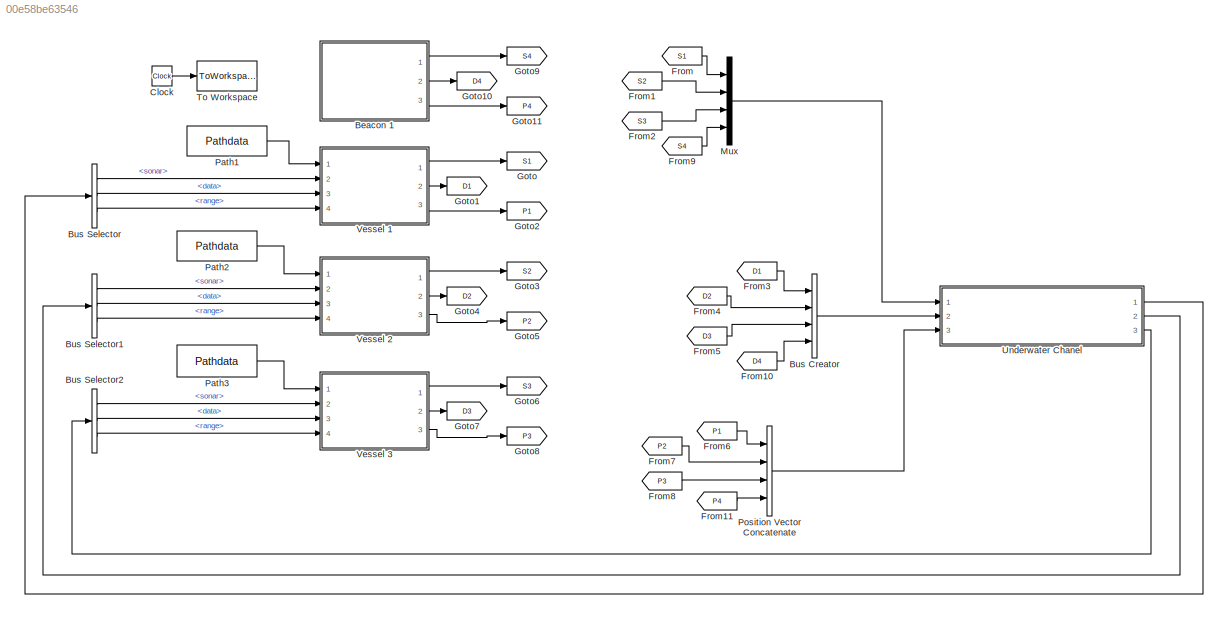
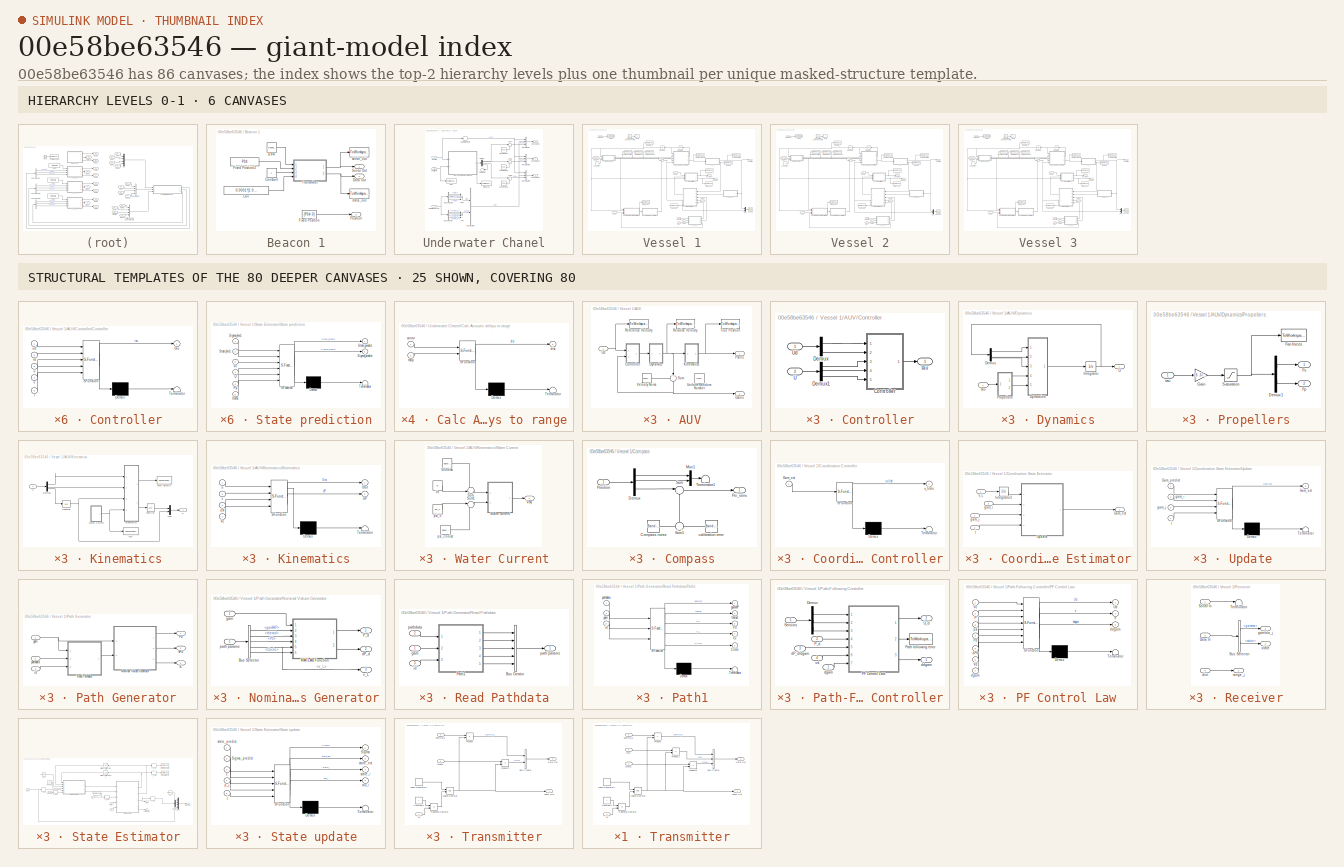
[diagram: thumbnail index - top-2 hierarchy levels (6 canvases) + 25 structural-template representatives of the remaining 80 canvases]
MODEL slx_00e58be63546
KIND model
BLOCK [SubSystem] Beacon 1
  FunctionWithSeparateData = off
  MaskHideContents = off
  MinAlgLoopOccurrences = off
  Opaque = off
  Ports = [0, 3]
  PropExecContextOutsideSubsystem = off
  RTWSystemCode = Auto
  RequestExecContextInheritance = off
BLOCK [Constant] Beacon 1/Constant
BLOCK [Constant] Beacon 1/Cov
  Value = 0.0001*[1 0 0 1]
BLOCK [Outport] Beacon 1/Data Out
  IconDisplay = Port number
  Port = 2
BLOCK [Constant] Beacon 1/Fixed Position
  Value = [P04 0]
BLOCK [Constant] Beacon 1/Fixed Position2
  Value = P04
BLOCK [Reference] Beacon 1/JLaw  REF=simulink/Sources/Repeating
Sequence
Stair
  ConRadixGroup = Best Precision: Vector-wise
  LockScale = off
  OutDataType = fixdt(0,8)
  OutDataTypeStr = double
  OutMax = []
  OutMin = []
  OutScaling = 2^-12
  OutValues = TrsmtLaw.'
  OutputDataTypeScalingMode = double
  Ports = [0, 1]
  SourceBlock = simulink/Sources/Repeating\nSequence\nStair
  SourceType = Repeating Sequence Stair
  tsamp = T_bc
BLOCK [Outport] Beacon 1/Position
  IconDisplay = Port number
  Port = 3
BLOCK [Outport] Beacon 1/Sonar Out
  IconDisplay = Port number
BLOCK [SubSystem] Beacon 1/Transmitter
  FunctionWithSeparateData = off
  MaskHideContents = off
  MinAlgLoopOccurrences = off
  Opaque = off
  Ports = [4, 2]
  PropExecContextOutsideSubsystem = off
  RTWSystemCode = Auto
  RequestExecContextInheritance = off
BLOCK [BusCreator] Beacon 1/Transmitter/Bus Creator
  DisplayOption = bar
  Inputs = 3
  Ports = [3, 1]
BLOCK [Constant] Beacon 1/Transmitter/Constant2
  Value = i
BLOCK [Outport] Beacon 1/Transmitter/Data Out
  IconDisplay = Port number
  Port = 2
BLOCK [Logic] Beacon 1/Transmitter/Logical Operator
  AllPortsSameDT = off
  OutDataTypeStr = boolean
  Ports = [2, 1]
BLOCK [Product] Beacon 1/Transmitter/Product
  InputSameDT = off
  OutDataTypeStr = Inherit: Inherit via internal rule
  Ports = [2, 1]
  RndMeth = Floor
  SaturateOnIntegerOverflow = off
BLOCK [Product] Beacon 1/Transmitter/Product1
  InputSameDT = off
  OutDataTypeStr = Inherit: Inherit via internal rule
  Ports = [2, 1]
  RndMeth = Floor
  SaturateOnIntegerOverflow = off
BLOCK [Product] Beacon 1/Transmitter/Product2
  InputSameDT = off
  OutDataTypeStr = Inherit: Inherit via internal rule
  Ports = [2, 1]
  RndMeth = Floor
  SaturateOnIntegerOverflow = off
BLOCK [DiscretePulseGenerator] Beacon 1/Transmitter/Pulse Generator1
  Period = T_bc
  Ports = [0, 1]
  PulseType = Time based
  PulseWidth = .001/( T_bc)*100
BLOCK [RelationalOperator] Beacon 1/Transmitter/Relational Operator
  InputSameDT = off
  Operator = ==
  OutDataTypeStr = boolean
  Ports = [2, 1]
BLOCK [Outport] Beacon 1/Transmitter/Sonar Out
  IconDisplay = Port number
BLOCK [Inport] Beacon 1/Transmitter/cov1
  IconDisplay = Port number
  Port = 4
BLOCK [Inport] Beacon 1/Transmitter/gamma_i1
  IconDisplay = Port number
  Port = 3
BLOCK [Inport] Beacon 1/Transmitter/j1
  IconDisplay = Port number
BLOCK [Inport] Beacon 1/Transmitter/state1
  IconDisplay = Port number
  Port = 2
BLOCK [ToWorkspace] Beacon 1/data_out
  MaxDataPoints = inf
  Ports = [1]
  SampleTime = -1
  VariableName = data_out4
BLOCK [ToWorkspace] Beacon 1/sonar_out
  MaxDataPoints = inf
  Ports = [1]
  SampleTime = -1
  VariableName = sonar_out4
BLOCK [BusCreator] Bus Creator
  DisplayOption = bar
  Ports = [4, 1]
BLOCK [BusSelector] Bus Selector
  OutputSignals = sonar,data,range
  Ports = [1, 3]
BLOCK [BusSelector] Bus Selector1
  OutputSignals = sonar,data,range
  Ports = [1, 3]
BLOCK [BusSelector] Bus Selector2
  OutputSignals = sonar,data,range
  Ports = [1, 3]
BLOCK [Clock] Clock
BLOCK [From] From
  GotoTag = S1
BLOCK [From] From1
  GotoTag = S2
BLOCK [From] From10
  GotoTag = D4
BLOCK [From] From11
  GotoTag = P4
BLOCK [From] From2
  GotoTag = S3
BLOCK [From] From3
  GotoTag = D1
BLOCK [From] From4
  GotoTag = D2
BLOCK [From] From5
  GotoTag = D3
BLOCK [From] From6
  GotoTag = P1
BLOCK [From] From7
  GotoTag = P2
BLOCK [From] From8
  GotoTag = P3
BLOCK [From] From9
  GotoTag = S4
BLOCK [Goto] Goto
  GotoTag = S1
BLOCK [Goto] Goto1
  GotoTag = D1
BLOCK [Goto] Goto10
  GotoTag = D4
BLOCK [Goto] Goto11
  GotoTag = P4
BLOCK [Goto] Goto2
  GotoTag = P1
BLOCK [Goto] Goto3
  GotoTag = S2
BLOCK [Goto] Goto4
  GotoTag = D2
BLOCK [Goto] Goto5
  GotoTag = P2
BLOCK [Goto] Goto6
  GotoTag = S3
BLOCK [Goto] Goto7
  GotoTag = D3
BLOCK [Goto] Goto8
  GotoTag = P3
BLOCK [Goto] Goto9
  GotoTag = S4
BLOCK [Mux] Mux
  DisplayOption = bar
  Ports = [4, 1]
BLOCK [Constant] Path1
  Value = Pathdata
BLOCK [Constant] Path2
  Value = Pathdata
BLOCK [Constant] Path3
  Value = Pathdata
BLOCK [Concatenate] Position Vector Concatenate
  ConcatenateDimension = 2
  Mode = Multidimensional array
  NumInputs = 4
  Ports = [4, 1]
BLOCK [ToWorkspace] To Workspace
  MaxDataPoints = inf
  Ports = [1]
  SampleTime = -1
  VariableName = simtime
BLOCK [SubSystem] Underwater Chanel
  FunctionWithSeparateData = off
  MaskHideContents = off
  MinAlgLoopOccurrences = off
  Opaque = off
  Ports = [3, 3]
  PropExecContextOutsideSubsystem = off
  RTWSystemCode = Auto
  RequestExecContextInheritance = off
BLOCK [Sum] Underwater Chanel/Add
  InputSameDT = off
  Inputs = ++++
  OutDataTypeStr = Inherit: Inherit via internal rule
  Ports = [4, 1]
  SaturateOnIntegerOverflow = off
BLOCK [Sum] Underwater Chanel/Add1
  InputSameDT = off
  Inputs = ++++
  OutDataTypeStr = Inherit: Inherit via internal rule
  Ports = [4, 1]
  SaturateOnIntegerOverflow = off
BLOCK [BusCreator] Underwater Chanel/Bus Creator
  DisplayOption = bar
  Inputs = 3
  Ports = [3, 1]
BLOCK [BusCreator] Underwater Chanel/Bus Creator1
  DisplayOption = bar
  Inputs = 3
  Ports = [3, 1]
BLOCK [BusCreator] Underwater Chanel/Bus Creator2
  DisplayOption = bar
  Inputs = 3
  Ports = [3, 1]
BLOCK [BusCreator] Underwater Chanel/Bus Creator3
  DisplayOption = bar
  Inputs = 2
  Ports = [2, 1]
BLOCK [BusSelector] Underwater Chanel/Bus Selector
  OutputSignals = signal1.gamma_i1,signal2.gamma_i1,signal3.gamma_i1,signal4.gamma_i4
  Ports = [1, 4]
BLOCK [BusSelector] Underwater Chanel/Bus Selector1
  OutputSignals = signal1.state1,signal2.state1,signal3.state1,signal4.state4
  Ports = [1, 4]
BLOCK [SubSystem] Underwater Chanel/Calc Acoustic delays to range
  ErrorFcn = Stateflow.Translate.translate
  FunctionWithSeparateData = off
  MaskHideContents = off
  MinAlgLoopOccurrences = off
  Opaque = off
  PermitHierarchicalResolution = ExplicitOnly
  Ports = [2, 1]
  PropExecContextOutsideSubsystem = off
  RTWSystemCode = Auto
  RequestExecContextInheritance = off
  SFBlockType = MATLAB Function
  TreatAsAtomicUnit = on
BLOCK [Demux] Underwater Chanel/Calc Acoustic delays to range/ Demux 
  Outputs = 1
  Ports = [1, 1]
BLOCK [S-Function] Underwater Chanel/Calc Acoustic delays to range/ SFunction 
  EnableBusSupport = on
  FunctionName = sf_sfun
  Parameters = n
  PortCounts = [2 2]
  Ports = [2, 2]
  Tag = Stateflow S-Function simulation 30
BLOCK [Terminator] Underwater Chanel/Calc Acoustic delays to range/ Terminator 
BLOCK [Outport] Underwater Chanel/Calc Acoustic delays to range/dist
  IconDisplay = Port number
BLOCK [Inport] Underwater Chanel/Calc Acoustic delays to range/map
  IconDisplay = Port number
  Port = 2
BLOCK [Inport] Underwater Chanel/Calc Acoustic delays to range/sonar
  IconDisplay = Port number
BLOCK [Inport] Underwater Chanel/Data Broadcast
  IconDisplay = Port number
  Port = 2
BLOCK [Demux] Underwater Chanel/Demux
  DisplayOption = bar
  Ports = [1, 4]
BLOCK [Inport] Underwater Chanel/Position In
  IconDisplay = Port number
  Port = 3
BLOCK [Inport] Underwater Chanel/Sonar In
  IconDisplay = Port number
BLOCK [Reference] Underwater Chanel/Sonar noise 2  REF=simulink/Sources/Band-Limited
White Noise
  Cov = noiseon*nsonar*0.1
  Ports = [0, 1]
  SourceBlock = simulink/Sources/Band-Limited\nWhite Noise
  SourceType = Band-Limited White Noise.
  Ts = 0.1
  VectorParams1D = on
  seed = 535
BLOCK [Reference] Underwater Chanel/Sonar noise 3  REF=simulink/Sources/Band-Limited
White Noise
  Cov = noiseon*nsonar*0.1
  Ports = [0, 1]
  SourceBlock = simulink/Sources/Band-Limited\nWhite Noise
  SourceType = Band-Limited White Noise.
  Ts = 0.1
  VectorParams1D = on
  seed = 24
BLOCK [Reference] Underwater Chanel/Sonar noise1  REF=simulink/Sources/Band-Limited
White Noise
  Cov = noiseon*nsonar*0.1
  Ports = [0, 1]
  SourceBlock = simulink/Sources/Band-Limited\nWhite Noise
  SourceType = Band-Limited White Noise.
  Ts = 0.1
  VectorParams1D = on
  seed = [253]
BLOCK [Sum] Underwater Chanel/Sum
  IconShape = round
  InputSameDT = off
  Inputs = |++
  OutDataTypeStr = Inherit: Inherit via internal rule
  Ports = [2, 1]
  SaturateOnIntegerOverflow = off
BLOCK [Sum] Underwater Chanel/Sum of Elements
  InputSameDT = off
  Inputs = +
  OutDataTypeStr = Inherit: Inherit via internal rule
  Ports = [1, 1]
  SaturateOnIntegerOverflow = off
BLOCK [Sum] Underwater Chanel/Sum1
  IconShape = round
  InputSameDT = off
  Inputs = |++
  OutDataTypeStr = Inherit: Inherit via internal rule
  Ports = [2, 1]
  SaturateOnIntegerOverflow = off
BLOCK [Sum] Underwater Chanel/Sum2
  IconShape = round
  InputSameDT = off
  Inputs = |++
  OutDataTypeStr = Inherit: Inherit via internal rule
  Ports = [2, 1]
  SaturateOnIntegerOverflow = off
BLOCK [Terminator] Underwater Chanel/Terminator
BLOCK [Outport] Underwater Chanel/Vessel 1 Out
  IconDisplay = Port number
BLOCK [Outport] Underwater Chanel/Vessel 2 Out
  IconDisplay = Port number
  Port = 2
BLOCK [Outport] Underwater Chanel/Vessel 3 Out
  IconDisplay = Port number
  Port = 3
BLOCK [ToWorkspace] Underwater Chanel/distances
  MaxDataPoints = inf
  Ports = [1]
  SampleTime = -1
  VariableName = dist
BLOCK [ToWorkspace] Underwater Chanel/map
  MaxDataPoints = inf
  Ports = [1]
  SampleTime = -1
  VariableName = map
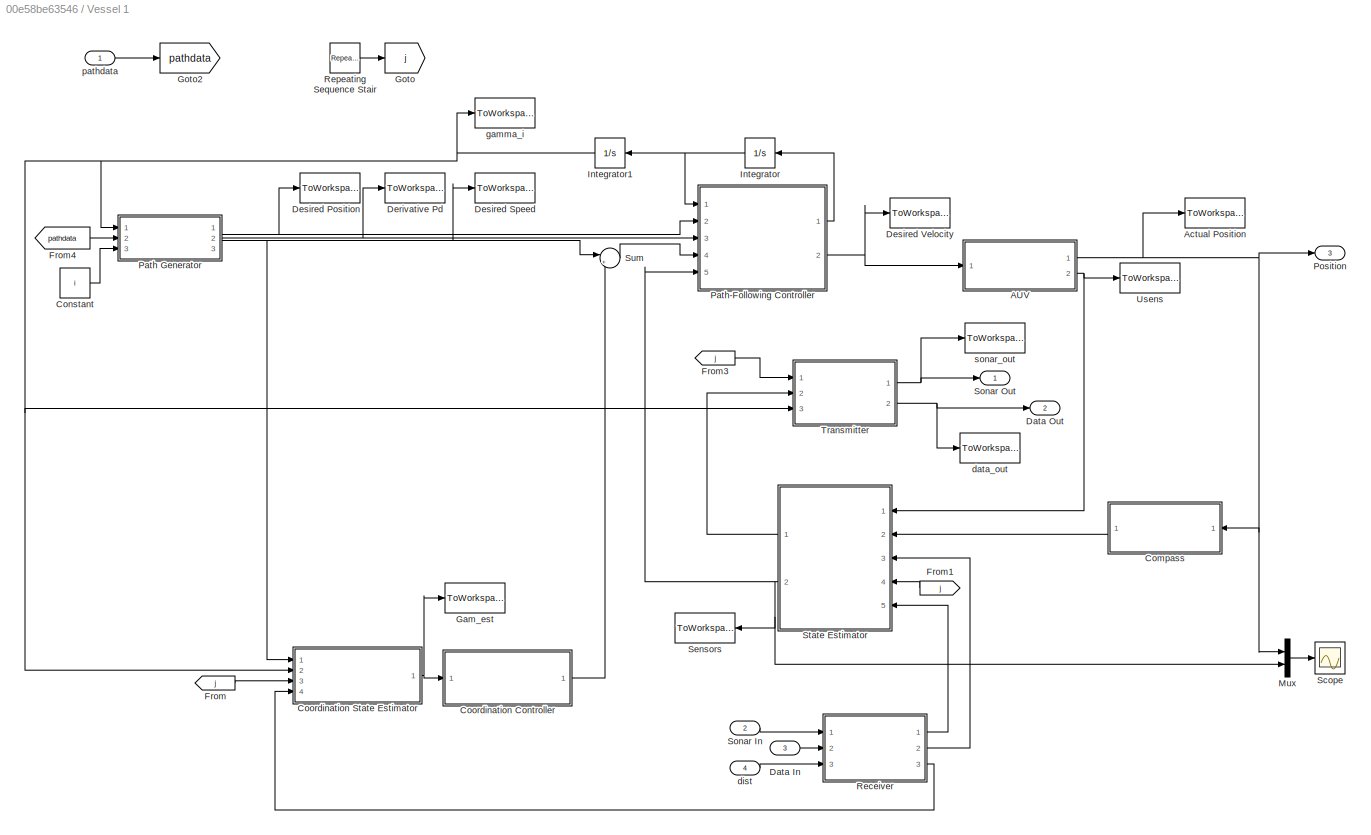
BLOCK [SubSystem] Vessel 1
  FunctionWithSeparateData = off
  MaskHideContents = off
  MinAlgLoopOccurrences = off
  Opaque = off
  Ports = [4, 3]
  PropExecContextOutsideSubsystem = off
  RTWSystemCode = Auto
  RequestExecContextInheritance = off
BLOCK [SubSystem] Vessel 1/AUV
  FunctionWithSeparateData = off
  MaskHideContents = off
  MinAlgLoopOccurrences = off
  Opaque = off
  Ports = [1, 2]
  PropExecContextOutsideSubsystem = off
  RTWSystemCode = Auto
  RequestExecContextInheritance = off
BLOCK [SubSystem] Vessel 1/AUV/Controller
  FunctionWithSeparateData = off
  MaskHideContents = off
  MinAlgLoopOccurrences = off
  Opaque = off
  Ports = [2, 1]
  PropExecContextOutsideSubsystem = off
  RTWSystemCode = Auto
  RequestExecContextInheritance = off
BLOCK [SubSystem] Vessel 1/AUV/Controller/Controller
  ErrorFcn = Stateflow.Translate.translate
  FunctionWithSeparateData = off
  MaskHideContents = off
  MinAlgLoopOccurrences = off
  Opaque = off
  PermitHierarchicalResolution = ExplicitOnly
  Ports = [5, 1]
  PropExecContextOutsideSubsystem = off
  RTWSystemCode = Auto
  RequestExecContextInheritance = off
  SFBlockType = MATLAB Function
  TreatAsAtomicUnit = on
BLOCK [Demux] Vessel 1/AUV/Controller/Controller/ Demux 
  Outputs = 1
  Ports = [1, 1]
BLOCK [S-Function] Vessel 1/AUV/Controller/Controller/ SFunction 
  EnableBusSupport = on
  FunctionName = sf_sfun
  Parameters = J,Nr,Nrr,Xu,Xuu,k_r,k_u,m_u,m_uv,m_v
  PortCounts = [5 2]
  Ports = [5, 2]
  Tag = Stateflow S-Function simulation 1
BLOCK [Terminator] Vessel 1/AUV/Controller/Controller/ Terminator 
BLOCK [Inport] Vessel 1/AUV/Controller/Controller/r
  IconDisplay = Port number
  Port = 5
BLOCK [Inport] Vessel 1/AUV/Controller/Controller/rd
  IconDisplay = Port number
  Port = 2
BLOCK [Outport] Vessel 1/AUV/Controller/Controller/tau
  IconDisplay = Port number
BLOCK [Inport] Vessel 1/AUV/Controller/Controller/u
  IconDisplay = Port number
  Port = 3
BLOCK [Inport] Vessel 1/AUV/Controller/Controller/ud
  IconDisplay = Port number
BLOCK [Inport] Vessel 1/AUV/Controller/Controller/v
  IconDisplay = Port number
  Port = 4
BLOCK [Demux] Vessel 1/AUV/Controller/Demux
  DisplayOption = bar
  Outputs = 2
  Ports = [1, 2]
BLOCK [Demux] Vessel 1/AUV/Controller/Demux1
  DisplayOption = bar
  Outputs = 3
  Ports = [1, 3]
BLOCK [Inport] Vessel 1/AUV/Controller/U
  IconDisplay = Port number
  Port = 2
BLOCK [Inport] Vessel 1/AUV/Controller/Ud
  IconDisplay = Port number
BLOCK [Outport] Vessel 1/AUV/Controller/tau
  IconDisplay = Port number
BLOCK [SubSystem] Vessel 1/AUV/Dynamics
  FunctionWithSeparateData = off
  MaskHideContents = off
  MinAlgLoopOccurrences = off
  Opaque = off
  Ports = [1, 1]
  PropExecContextOutsideSubsystem = off
  RTWSystemCode = Auto
  RequestExecContextInheritance = off
BLOCK [Demux] Vessel 1/AUV/Dynamics/Demux
  DisplayOption = bar
  Outputs = 3
  Ports = [1, 3]
BLOCK [SubSystem] Vessel 1/AUV/Dynamics/Dynamics
  ErrorFcn = Stateflow.Translate.translate
  FunctionWithSeparateData = off
  MaskHideContents = off
  MinAlgLoopOccurrences = off
  Opaque = off
  PermitHierarchicalResolution = ExplicitOnly
  Ports = [5, 1]
  PropExecContextOutsideSubsystem = off
  RTWSystemCode = Auto
  RequestExecContextInheritance = off
  SFBlockType = MATLAB Function
  TreatAsAtomicUnit = on
BLOCK [Demux] Vessel 1/AUV/Dynamics/Dynamics/ Demux 
  Outputs = 1
  Ports = [1, 1]
BLOCK [S-Function] Vessel 1/AUV/Dynamics/Dynamics/ SFunction 
  EnableBusSupport = on
  FunctionName = sf_sfun
  Parameters = J,Nr,Nrr,Xu,Xuu,Yv,Yvv,l,m_u,m_uv,m_v
  PortCounts = [5 2]
  Ports = [5, 2]
  Tag = Stateflow S-Function simulation 2
BLOCK [Terminator] Vessel 1/AUV/Dynamics/Dynamics/ Terminator 
BLOCK [Inport] Vessel 1/AUV/Dynamics/Dynamics/Fp
  IconDisplay = Port number
  Port = 5
BLOCK [Inport] Vessel 1/AUV/Dynamics/Dynamics/Fs
  IconDisplay = Port number
  Port = 4
BLOCK [Outport] Vessel 1/AUV/Dynamics/Dynamics/dU
  IconDisplay = Port number
BLOCK [Inport] Vessel 1/AUV/Dynamics/Dynamics/r
  IconDisplay = Port number
  Port = 3
BLOCK [Inport] Vessel 1/AUV/Dynamics/Dynamics/u
  IconDisplay = Port number
BLOCK [Inport] Vessel 1/AUV/Dynamics/Dynamics/v
  IconDisplay = Port number
  Port = 2
BLOCK [Integrator] Vessel 1/AUV/Dynamics/Integrator
  InitialCondition = [0 0 0]
  Ports = [1, 1]
BLOCK [SubSystem] Vessel 1/AUV/Dynamics/Propellers
  FunctionWithSeparateData = off
  MaskHideContents = off
  MinAlgLoopOccurrences = off
  Opaque = off
  Ports = [1, 2]
  PropExecContextOutsideSubsystem = off
  RTWSystemCode = Auto
  RequestExecContextInheritance = off
BLOCK [Demux] Vessel 1/AUV/Dynamics/Propellers/Demux1
  DisplayOption = bar
  Outputs = 2
  Ports = [1, 2]
BLOCK [ToWorkspace] Vessel 1/AUV/Dynamics/Propellers/Fan forces
  MaxDataPoints = inf
  Ports = [1]
  SampleTime = -1
  VariableName = F1
BLOCK [Outport] Vessel 1/AUV/Dynamics/Propellers/Fp
  IconDisplay = Port number
  Port = 2
BLOCK [Outport] Vessel 1/AUV/Dynamics/Propellers/Fs
  IconDisplay = Port number
BLOCK [Gain] Vessel 1/AUV/Dynamics/Propellers/Gain
  Gain = [.5 .5/l; .5 -.5/l]
  Multiplication = Matrix(K*u)
  OutDataTypeStr = Inherit: Inherit via internal rule
  ParamDataTypeStr = Inherit: Inherit via internal rule
  SaturateOnIntegerOverflow = off
BLOCK [Saturate] Vessel 1/AUV/Dynamics/Propellers/Saturation
  InputPortMap = u0
  LowerLimit = Fmin
  Ports = [1, 1]
  UpperLimit = Fmax
BLOCK [Inport] Vessel 1/AUV/Dynamics/Propellers/tau
  IconDisplay = Port number
BLOCK [Outport] Vessel 1/AUV/Dynamics/U
  IconDisplay = Port number
BLOCK [Inport] Vessel 1/AUV/Dynamics/tau
  IconDisplay = Port number
BLOCK [SubSystem] Vessel 1/AUV/Kinematics
  FunctionWithSeparateData = off
  MaskHideContents = off
  MinAlgLoopOccurrences = off
  Opaque = off
  Ports = [1, 1]
  PropExecContextOutsideSubsystem = off
  RTWSystemCode = Auto
  RequestExecContextInheritance = off
BLOCK [Demux] Vessel 1/AUV/Kinematics/Demux1
  DisplayOption = bar
  Outputs = 3
  Ports = [1, 3]
BLOCK [Integrator] Vessel 1/AUV/Kinematics/Heading
  InitialCondition = psi01
  Ports = [1, 1]
BLOCK [SubSystem] Vessel 1/AUV/Kinematics/Kinematics
  ErrorFcn = Stateflow.Translate.translate
  FunctionWithSeparateData = off
  MaskHideContents = off
  MinAlgLoopOccurrences = off
  Opaque = off
  PermitHierarchicalResolution = ExplicitOnly
  Ports = [4, 2]
  PropExecContextOutsideSubsystem = off
  RTWSystemCode = Auto
  RequestExecContextInheritance = off
  SFBlockType = MATLAB Function
  TreatAsAtomicUnit = on
BLOCK [Demux] Vessel 1/AUV/Kinematics/Kinematics/ Demux 
  Outputs = 1
  Ports = [1, 1]
BLOCK [S-Function] Vessel 1/AUV/Kinematics/Kinematics/ SFunction 
  EnableBusSupport = on
  FunctionName = sf_sfun
  PortCounts = [4 3]
  Ports = [4, 3]
  Tag = Stateflow S-Function simulation 3
BLOCK [Terminator] Vessel 1/AUV/Kinematics/Kinematics/ Terminator 
BLOCK [Outport] Vessel 1/AUV/Kinematics/Kinematics/Utot
  IconDisplay = Port number
BLOCK [Inport] Vessel 1/AUV/Kinematics/Kinematics/Vc
  IconDisplay = Port number
  Port = 4
BLOCK [Outport] Vessel 1/AUV/Kinematics/Kinematics/dP
  IconDisplay = Port number
  Port = 2
BLOCK [Inport] Vessel 1/AUV/Kinematics/Kinematics/psi
  IconDisplay = Port number
  Port = 3
BLOCK [Inport] Vessel 1/AUV/Kinematics/Kinematics/u
  IconDisplay = Port number
BLOCK [Inport] Vessel 1/AUV/Kinematics/Kinematics/v
  IconDisplay = Port number
  Port = 2
BLOCK [Mux] Vessel 1/AUV/Kinematics/Mux
  DisplayOption = bar
  Inputs = 2
  Ports = [2, 1]
BLOCK [Outport] Vessel 1/AUV/Kinematics/P
  IconDisplay = Port number
BLOCK [Integrator] Vessel 1/AUV/Kinematics/Position
  InitialCondition = P01
  Ports = [1, 1]
BLOCK [ToWorkspace] Vessel 1/AUV/Kinematics/Total Velocity
  MaxDataPoints = inf
  Ports = [1]
  SampleTime = -1
  VariableName = Utot1
BLOCK [Inport] Vessel 1/AUV/Kinematics/U
  IconDisplay = Port number
BLOCK [ToWorkspace] Vessel 1/AUV/Kinematics/Vcxy
  MaxDataPoints = inf
  Ports = [1]
  SampleTime = -1
  VariableName = Vcxy1
BLOCK [SubSystem] Vessel 1/AUV/Kinematics/Water Current
  FunctionWithSeparateData = off
  MaskHideContents = off
  MinAlgLoopOccurrences = off
  Opaque = off
  Ports = [0, 1]
  PropExecContextOutsideSubsystem = off
  RTWSystemCode = Auto
  RequestExecContextInheritance = off
BLOCK [Sum] Vessel 1/AUV/Kinematics/Water Current/Sum
  IconShape = round
  InputSameDT = off
  Inputs = ++|
  OutDataTypeStr = Inherit: Inherit via internal rule
  Ports = [2, 1]
  SaturateOnIntegerOverflow = off
BLOCK [Sum] Vessel 1/AUV/Kinematics/Water Current/Sum1
  IconShape = round
  InputSameDT = off
  Inputs = |++
  OutDataTypeStr = Inherit: Inherit via internal rule
  Ports = [2, 1]
  SaturateOnIntegerOverflow = off
BLOCK [Constant] Vessel 1/AUV/Kinematics/Water Current/Vc
  Value = Vc
BLOCK [Reference] Vessel 1/AUV/Kinematics/Water Current/Vc noise  REF=simulink/Sources/Band-Limited
White Noise
  Cov = nVc*5
  Ports = [0, 1]
  SourceBlock = simulink/Sources/Band-Limited\nWhite Noise
  SourceType = Band-Limited White Noise.
  Ts = 5
  VectorParams1D = on
  seed = [23341]
BLOCK [Outport] Vessel 1/AUV/Kinematics/Water Current/Vcxy
  IconDisplay = Port number
BLOCK [SubSystem] Vessel 1/AUV/Kinematics/Water Current/Water current
  ErrorFcn = Stateflow.Translate.translate
  FunctionWithSeparateData = off
  MaskHideContents = off
  MinAlgLoopOccurrences = off
  Opaque = off
  PermitHierarchicalResolution = ExplicitOnly
  Ports = [2, 1]
  PropExecContextOutsideSubsystem = off
  RTWSystemCode = Auto
  RequestExecContextInheritance = off
  SFBlockType = MATLAB Function
  TreatAsAtomicUnit = on
BLOCK [Demux] Vessel 1/AUV/Kinematics/Water Current/Water current/ Demux 
  Outputs = 1
  Ports = [1, 1]
BLOCK [S-Function] Vessel 1/AUV/Kinematics/Water Current/Water current/ SFunction 
  EnableBusSupport = on
  FunctionName = sf_sfun
  PortCounts = [2 2]
  Ports = [2, 2]
  Tag = Stateflow S-Function simulation 4
BLOCK [Terminator] Vessel 1/AUV/Kinematics/Water Current/Water current/ Terminator 
BLOCK [Inport] Vessel 1/AUV/Kinematics/Water Current/Water current/Vc
  IconDisplay = Port number
BLOCK [Outport] Vessel 1/AUV/Kinematics/Water Current/Water current/Vcxy
  IconDisplay = Port number
BLOCK [Inport] Vessel 1/AUV/Kinematics/Water Current/Water current/psi_c
  IconDisplay = Port number
  Port = 2
BLOCK [Constant] Vessel 1/AUV/Kinematics/Water Current/psi_c
  Value = psi_c
BLOCK [Reference] Vessel 1/AUV/Kinematics/Water Current/psi_c noise  REF=simulink/Sources/Band-Limited
White Noise
  Cov = npsi_c*5
  Ports = [0, 1]
  SourceBlock = simulink/Sources/Band-Limited\nWhite Noise
  SourceType = Band-Limited White Noise.
  Ts = 5
  VectorParams1D = on
  seed = [256]
BLOCK [Outport] Vessel 1/AUV/Psens
  IconDisplay = Port number
BLOCK [ToWorkspace] Vessel 1/AUV/Reference Velocity
  MaxDataPoints = inf
  Ports = [1]
  SampleTime = -1
  VariableName = Ud1
BLOCK [ToWorkspace] Vessel 1/AUV/Relative Velocity
  MaxDataPoints = inf
  Ports = [1]
  SampleTime = -1
  VariableName = U1
BLOCK [Sum] Vessel 1/AUV/Sum
  IconShape = round
  InputSameDT = off
  Inputs = +++
  OutDataTypeStr = Inherit: Inherit via internal rule
  Ports = [3, 1]
  SaturateOnIntegerOverflow = off
BLOCK [ToWorkspace] Vessel 1/AUV/True Position
  MaxDataPoints = inf
  Ports = [1]
  SampleTime = -1
  VariableName = P1
BLOCK [Inport] Vessel 1/AUV/Ud
  IconDisplay = Port number
BLOCK [UniformRandomNumber] Vessel 1/AUV/Uniform Random Number
  Maximum = 5*noiseon*[nu nv nr]
  Minimum = -5*noiseon*[nu nv nr]
  SampleTime = 20
  Seed = [1627 9317 3723]
BLOCK [Outport] Vessel 1/AUV/Usens
  IconDisplay = Port number
  Port = 2
BLOCK [Reference] Vessel 1/AUV/Velocity Noise  REF=simulink/Sources/Band-Limited
White Noise
  Cov = noiseon*[nu nv nr]*0.1
  Ports = [0, 1]
  SourceBlock = simulink/Sources/Band-Limited\nWhite Noise
  SourceType = Band-Limited White Noise.
  Ts = 0.1
  VectorParams1D = on
  seed = [2334 8715 567]
BLOCK [ToWorkspace] Vessel 1/Actual Position
  MaxDataPoints = inf
  Ports = [1]
  SampleTime = -1
  VariableName = Position1
BLOCK [SubSystem] Vessel 1/Compass
  FunctionWithSeparateData = off
  MaskHideContents = off
  MinAlgLoopOccurrences = off
  Opaque = off
  Ports = [1, 1]
  PropExecContextOutsideSubsystem = off
  RTWSystemCode = Auto
  RequestExecContextInheritance = off
BLOCK [Reference] Vessel 1/Compass/Compass noise  REF=simulink/Sources/Band-Limited
White Noise
  Cov = noiseon*npsi*0.1
  Ports = [0, 1]
  SourceBlock = simulink/Sources/Band-Limited\nWhite Noise
  SourceType = Band-Limited White Noise.
  Ts = 0.1
  VectorParams1D = on
  seed = 9167
BLOCK [Demux] Vessel 1/Compass/Demux
  DisplayOption = bar
  Outputs = 3
  Ports = [1, 3]
BLOCK [Mux] Vessel 1/Compass/Mux1
  DisplayOption = bar
  Inputs = 2
  Ports = [2, 1]
BLOCK [Inport] Vessel 1/Compass/Position
  IconDisplay = Port number
BLOCK [Outport] Vessel 1/Compass/Psi_sens
  IconDisplay = Port number
BLOCK [Sum] Vessel 1/Compass/Sum
  IconShape = round
  InputSameDT = off
  Inputs = |++
  OutDataTypeStr = Inherit: Inherit via internal rule
  Ports = [2, 1]
  SaturateOnIntegerOverflow = off
BLOCK [Sum] Vessel 1/Compass/Sum1
  IconShape = round
  InputSameDT = off
  Inputs = +|+
  OutDataTypeStr = Inherit: Inherit via internal rule
  Ports = [2, 1]
  SaturateOnIntegerOverflow = off
BLOCK [Terminator] Vessel 1/Compass/Terminator1
BLOCK [Reference] Vessel 1/Compass/calibration error  REF=simulink/Sources/Band-Limited
White Noise
  Cov = noiseon*npsi*200
  Ports = [0, 1]
  SourceBlock = simulink/Sources/Band-Limited\nWhite Noise
  SourceType = Band-Limited White Noise.
  Ts = 200
  VectorParams1D = on
  seed = 7691
BLOCK [Constant] Vessel 1/Constant
  Value = i
BLOCK [SubSystem] Vessel 1/Coordination Controller
  ErrorFcn = Stateflow.Translate.translate
  FunctionWithSeparateData = off
  MaskHideContents = off
  MinAlgLoopOccurrences = off
  Opaque = off
  PermitHierarchicalResolution = ExplicitOnly
  Ports = [1, 1]
  PropExecContextOutsideSubsystem = off
  RTWSystemCode = Auto
  RequestExecContextInheritance = off
  SFBlockType = MATLAB Function
  TreatAsAtomicUnit = on
BLOCK [Demux] Vessel 1/Coordination Controller/ Demux 
  Outputs = 1
  Ports = [1, 1]
BLOCK [S-Function] Vessel 1/Coordination Controller/ SFunction 
  EnableBusSupport = on
  FunctionName = sf_sfun
  Parameters = i,k_xi,n
  PortCounts = [1 2]
  Ports = [1, 2]
  Tag = Stateflow S-Function simulation 17
BLOCK [Terminator] Vessel 1/Coordination Controller/ Terminator 
BLOCK [Inport] Vessel 1/Coordination Controller/Gam_est
  IconDisplay = Port number
BLOCK [Outport] Vessel 1/Coordination Controller/v_tilde
  IconDisplay = Port number
BLOCK [SubSystem] Vessel 1/Coordination State Estimator
  FunctionWithSeparateData = off
  MaskHideContents = off
  MinAlgLoopOccurrences = off
  Opaque = off
  Ports = [4, 1]
  PropExecContextOutsideSubsystem = off
  RTWSystemCode = Auto
  RequestExecContextInheritance = off
BLOCK [Outport] Vessel 1/Coordination State Estimator/Gam_est
  IconDisplay = Port number
BLOCK [Integrator] Vessel 1/Coordination State Estimator/Integrator2
  InitialCondition = zeros(1,n)
  Ports = [1, 1]
BLOCK [SubSystem] Vessel 1/Coordination State Estimator/Update 
  ErrorFcn = Stateflow.Translate.translate
  FunctionWithSeparateData = off
  MaskHideContents = off
  MinAlgLoopOccurrences = off
  Opaque = off
  PermitHierarchicalResolution = ExplicitOnly
  Ports = [4, 1]
  PropExecContextOutsideSubsystem = off
  RTWSystemCode = Auto
  RequestExecContextInheritance = off
  SFBlockType = MATLAB Function
  TreatAsAtomicUnit = on
BLOCK [Demux] Vessel 1/Coordination State Estimator/Update / Demux 
  Outputs = 1
  Ports = [1, 1]
BLOCK [S-Function] Vessel 1/Coordination State Estimator/Update / SFunction 
  EnableBusSupport = on
  FunctionName = sf_sfun
  Parameters = i
  PortCounts = [4 2]
  Ports = [4, 2]
  Tag = Stateflow S-Function simulation 18
BLOCK [Terminator] Vessel 1/Coordination State Estimator/Update / Terminator 
BLOCK [Outport] Vessel 1/Coordination State Estimator/Update /Gam_est
  IconDisplay = Port number
BLOCK [Inport] Vessel 1/Coordination State Estimator/Update /Gam_predict
  IconDisplay = Port number
BLOCK [Inport] Vessel 1/Coordination State Estimator/Update /gam_i
  IconDisplay = Port number
  Port = 2
BLOCK [Inport] Vessel 1/Coordination State Estimator/Update /gam_j
  IconDisplay = Port number
  Port = 3
BLOCK [Inport] Vessel 1/Coordination State Estimator/Update /j
  IconDisplay = Port number
  Port = 4
BLOCK [Inport] Vessel 1/Coordination State Estimator/gam_i
  IconDisplay = Port number
  Port = 2
BLOCK [Inport] Vessel 1/Coordination State Estimator/gam_j
  IconDisplay = Port number
  Port = 4
BLOCK [Inport] Vessel 1/Coordination State Estimator/j
  IconDisplay = Port number
  Port = 3
BLOCK [Inport] Vessel 1/Coordination State Estimator/v_L
  IconDisplay = Port number
BLOCK [Inport] Vessel 1/Data In
  IconDisplay = Port number
  Port = 3
BLOCK [Outport] Vessel 1/Data Out
  IconDisplay = Port number
  Port = 2
BLOCK [ToWorkspace] Vessel 1/Derivative Pd
  MaxDataPoints = inf
  Ports = [1]
  SampleTime = -1
  VariableName = dPd1
BLOCK [ToWorkspace] Vessel 1/Desired Position
  MaxDataPoints = inf
  Ports = [1]
  SampleTime = -1
  VariableName = Pd1
BLOCK [ToWorkspace] Vessel 1/Desired Speed
  MaxDataPoints = inf
  Ports = [1]
  SampleTime = -1
  VariableName = v_d1
BLOCK [ToWorkspace] Vessel 1/Desired Velocity
  MaxDataPoints = inf
  Ports = [1]
  SampleTime = -1
  VariableName = U_d1
BLOCK [From] Vessel 1/From
  GotoTag = j
BLOCK [From] Vessel 1/From1
  GotoTag = j
BLOCK [From] Vessel 1/From3
  GotoTag = j
BLOCK [From] Vessel 1/From4
  GotoTag = pathdata
BLOCK [ToWorkspace] Vessel 1/Gam_est
  MaxDataPoints = inf
  Ports = [1]
  SampleTime = -1
  VariableName = Gam_est1
BLOCK [Goto] Vessel 1/Goto
  GotoTag = j
BLOCK [Goto] Vessel 1/Goto2
  GotoTag = pathdata
BLOCK [Integrator] Vessel 1/Integrator
  Ports = [1, 1]
BLOCK [Integrator] Vessel 1/Integrator1
  Ports = [1, 1]
BLOCK [Mux] Vessel 1/Mux
  DisplayOption = bar
  Inputs = 2
  Ports = [2, 1]
BLOCK [SubSystem] Vessel 1/Path Generator
  FunctionWithSeparateData = off
  MaskHideContents = off
  MinAlgLoopOccurrences = off
  Opaque = off
  Ports = [3, 3]
  PropExecContextOutsideSubsystem = off
  RTWSystemCode = Auto
  RequestExecContextInheritance = off
BLOCK [SubSystem] Vessel 1/Path Generator/Nominal Values Generator
  FunctionWithSeparateData = off
  MaskHideContents = off
  MinAlgLoopOccurrences = off
  Opaque = off
  Ports = [2, 3]
  PropExecContextOutsideSubsystem = off
  RTWSystemCode = Auto
  RequestExecContextInheritance = off
BLOCK [BusSelector] Vessel 1/Path Generator/Nominal Values Generator/Bus Selector
  OutputSignals = gamWP,thetad,P0,v_L,Circle
  Ports = [1, 5]
BLOCK [SubSystem] Vessel 1/Path Generator/Nominal Values Generator/MATLAB Function
  ErrorFcn = Stateflow.Translate.translate
  FunctionWithSeparateData = off
  MaskHideContents = off
  MinAlgLoopOccurrences = off
  Opaque = off
  PermitHierarchicalResolution = ExplicitOnly
  Ports = [6, 2]
  PropExecContextOutsideSubsystem = off
  RTWSystemCode = Auto
  RequestExecContextInheritance = off
  SFBlockType = MATLAB Function
  TreatAsAtomicUnit = on
BLOCK [Demux] Vessel 1/Path Generator/Nominal Values Generator/MATLAB Function/ Demux 
  Outputs = 1
  Ports = [1, 1]
BLOCK [S-Function] Vessel 1/Path Generator/Nominal Values Generator/MATLAB Function/ SFunction 
  EnableBusSupport = on
  FunctionName = sf_sfun
  PortCounts = [6 3]
  Ports = [6, 3]
  Tag = Stateflow S-Function simulation 21
BLOCK [Terminator] Vessel 1/Path Generator/Nominal Values Generator/MATLAB Function/ Terminator 
BLOCK [Inport] Vessel 1/Path Generator/Nominal Values Generator/MATLAB Function/P0
  IconDisplay = Port number
  Port = 4
BLOCK [Outport] Vessel 1/Path Generator/Nominal Values Generator/MATLAB Function/Pd
  IconDisplay = Port number
BLOCK [Inport] Vessel 1/Path Generator/Nominal Values Generator/MATLAB Function/Radius
  IconDisplay = Port number
  Port = 6
BLOCK [Outport] Vessel 1/Path Generator/Nominal Values Generator/MATLAB Function/dPd
  IconDisplay = Port number
  Port = 2
BLOCK [Inport] Vessel 1/Path Generator/Nominal Values Generator/MATLAB Function/gam
  IconDisplay = Port number
BLOCK [Inport] Vessel 1/Path Generator/Nominal Values Generator/MATLAB Function/gamWP
  IconDisplay = Port number
  Port = 2
BLOCK [Inport] Vessel 1/Path Generator/Nominal Values Generator/MATLAB Function/thetad
  IconDisplay = Port number
  Port = 3
BLOCK [Inport] Vessel 1/Path Generator/Nominal Values Generator/MATLAB Function/v_L
  IconDisplay = Port number
  Port = 5
BLOCK [Outport] Vessel 1/Path Generator/Nominal Values Generator/P_d
  IconDisplay = Port number
BLOCK [Outport] Vessel 1/Path Generator/Nominal Values Generator/dP_d
  IconDisplay = Port number
  Port = 2
BLOCK [Inport] Vessel 1/Path Generator/Nominal Values Generator/gam
  IconDisplay = Port number
BLOCK [Inport] Vessel 1/Path Generator/Nominal Values Generator/path params
  IconDisplay = Port number
  Port = 2
BLOCK [Outport] Vessel 1/Path Generator/Nominal Values Generator/v_L
  IconDisplay = Port number
  Port = 3
BLOCK [Outport] Vessel 1/Path Generator/Pd
  IconDisplay = Port number
BLOCK [SubSystem] Vessel 1/Path Generator/Read Pathdata
  FunctionWithSeparateData = off
  MaskHideContents = off
  MinAlgLoopOccurrences = off
  Opaque = off
  Ports = [3, 1]
  PropExecContextOutsideSubsystem = off
  RTWSystemCode = Auto
  RequestExecContextInheritance = off
BLOCK [BusCreator] Vessel 1/Path Generator/Read Pathdata/Bus Creator
  DisplayOption = bar
  Inputs = 5
  Ports = [5, 1]
BLOCK [SubSystem] Vessel 1/Path Generator/Read Pathdata/Path1
  ErrorFcn = Stateflow.Translate.translate
  FunctionWithSeparateData = off
  MaskHideContents = off
  MinAlgLoopOccurrences = off
  Opaque = off
  PermitHierarchicalResolution = ExplicitOnly
  Ports = [3, 5]
  PropExecContextOutsideSubsystem = off
  RTWSystemCode = Auto
  RequestExecContextInheritance = off
  SFBlockType = MATLAB Function
  TreatAsAtomicUnit = on
BLOCK [Demux] Vessel 1/Path Generator/Read Pathdata/Path1/ Demux 
  Outputs = 1
  Ports = [1, 1]
BLOCK [S-Function] Vessel 1/Path Generator/Read Pathdata/Path1/ SFunction 
  EnableBusSupport = on
  FunctionName = sf_sfun
  PortCounts = [3 6]
  Ports = [3, 6]
  Tag = Stateflow S-Function simulation 24
BLOCK [Terminator] Vessel 1/Path Generator/Read Pathdata/Path1/ Terminator 
BLOCK [Outport] Vessel 1/Path Generator/Read Pathdata/Path1/Circle
  IconDisplay = Port number
  Port = 5
BLOCK [Outport] Vessel 1/Path Generator/Read Pathdata/Path1/P0
  IconDisplay = Port number
  Port = 3
BLOCK [Inport] Vessel 1/Path Generator/Read Pathdata/Path1/gam
  IconDisplay = Port number
  Port = 2
BLOCK [Outport] Vessel 1/Path Generator/Read Pathdata/Path1/gamWP
  IconDisplay = Port number
BLOCK [Inport] Vessel 1/Path Generator/Read Pathdata/Path1/id
  IconDisplay = Port number
  Port = 3
BLOCK [Inport] Vessel 1/Path Generator/Read Pathdata/Path1/pathdata
  IconDisplay = Port number
BLOCK [Outport] Vessel 1/Path Generator/Read Pathdata/Path1/thetad
  IconDisplay = Port number
  Port = 2
BLOCK [Outport] Vessel 1/Path Generator/Read Pathdata/Path1/v_L
  IconDisplay = Port number
  Port = 4
BLOCK [Inport] Vessel 1/Path Generator/Read Pathdata/gam
  IconDisplay = Port number
BLOCK [Inport] Vessel 1/Path Generator/Read Pathdata/id
  IconDisplay = Port number
  Port = 3
BLOCK [Outport] Vessel 1/Path Generator/Read Pathdata/path params
  IconDisplay = Port number
BLOCK [Inport] Vessel 1/Path Generator/Read Pathdata/pathdata
  IconDisplay = Port number
  Port = 2
BLOCK [Outport] Vessel 1/Path Generator/dPd
  IconDisplay = Port number
  Port = 2
BLOCK [Inport] Vessel 1/Path Generator/gam
  IconDisplay = Port number
BLOCK [Inport] Vessel 1/Path Generator/id
  IconDisplay = Port number
  Port = 3
BLOCK [Inport] Vessel 1/Path Generator/pathdata
  IconDisplay = Port number
  Port = 2
BLOCK [Outport] Vessel 1/Path Generator/vL
  IconDisplay = Port number
  Port = 3
BLOCK [SubSystem] Vessel 1/Path-Following Controller
  FunctionWithSeparateData = off
  MaskHideContents = off
  MinAlgLoopOccurrences = off
  Opaque = off
  Ports = [5, 2]
  PropExecContextOutsideSubsystem = off
  RTWSystemCode = Auto
  RequestExecContextInheritance = off
BLOCK [Demux] Vessel 1/Path-Following Controller/Demux
  DisplayOption = bar
  Outputs = 3
  Ports = [1, 3]
BLOCK [SubSystem] Vessel 1/Path-Following Controller/PF Control Law
  ErrorFcn = Stateflow.Translate.translate
  FunctionWithSeparateData = off
  MaskHideContents = off
  MinAlgLoopOccurrences = off
  Opaque = off
  PermitHierarchicalResolution = ExplicitOnly
  Ports = [7, 3]
  PropExecContextOutsideSubsystem = off
  RTWSystemCode = Auto
  RequestExecContextInheritance = off
  SFBlockType = MATLAB Function
  TreatAsAtomicUnit = on
BLOCK [Demux] Vessel 1/Path-Following Controller/PF Control Law/ Demux 
  Outputs = 1
  Ports = [1, 1]
BLOCK [S-Function] Vessel 1/Path-Following Controller/PF Control Law/ SFunction 
  EnableBusSupport = on
  FunctionName = sf_sfun
  Parameters = delta,kx,ky,kz
  PortCounts = [7 4]
  Ports = [7, 4]
  Tag = Stateflow S-Function simulation 31
BLOCK [Terminator] Vessel 1/Path-Following Controller/PF Control Law/ Terminator 
BLOCK [Inport] Vessel 1/Path-Following Controller/PF Control Law/P
  IconDisplay = Port number
  Port = 2
BLOCK [Inport] Vessel 1/Path-Following Controller/PF Control Law/Pd
  IconDisplay = Port number
  Port = 4
BLOCK [Outport] Vessel 1/Path-Following Controller/PF Control Law/Ud
  IconDisplay = Port number
BLOCK [Inport] Vessel 1/Path-Following Controller/PF Control Law/Vc
  IconDisplay = Port number
BLOCK [Inport] Vessel 1/Path-Following Controller/PF Control Law/Vd
  IconDisplay = Port number
  Port = 6
BLOCK [Inport] Vessel 1/Path-Following Controller/PF Control Law/dPd
  IconDisplay = Port number
  Port = 5
BLOCK [Outport] Vessel 1/Path-Following Controller/PF Control Law/ddgam
  IconDisplay = Port number
  Port = 3
BLOCK [Inport] Vessel 1/Path-Following Controller/PF Control Law/dgam
  IconDisplay = Port number
  Port = 7
BLOCK [Outport] Vessel 1/Path-Following Controller/PF Control Law/e
  IconDisplay = Port number
  Port = 2
BLOCK [Inport] Vessel 1/Path-Following Controller/PF Control Law/psi
  IconDisplay = Port number
  Port = 3
BLOCK [Inport] Vessel 1/Path-Following Controller/P_d
  IconDisplay = Port number
  Port = 2
BLOCK [ToWorkspace] Vessel 1/Path-Following Controller/Path following error
  MaxDataPoints = inf
  Ports = [1]
  SampleTime = -1
  VariableName = PFerror1
BLOCK [Inport] Vessel 1/Path-Following Controller/Sensors
  IconDisplay = Port number
  Port = 5
BLOCK [Outport] Vessel 1/Path-Following Controller/U_d
  IconDisplay = Port number
  Port = 2
BLOCK [Inport] Vessel 1/Path-Following Controller/dP_d//dgam
  IconDisplay = Port number
  Port = 3
BLOCK [Outport] Vessel 1/Path-Following Controller/ddgam
  IconDisplay = Port number
BLOCK [Inport] Vessel 1/Path-Following Controller/dgam
  IconDisplay = Port number
BLOCK [Inport] Vessel 1/Path-Following Controller/vd
  IconDisplay = Port number
  Port = 4
BLOCK [Outport] Vessel 1/Position
  IconDisplay = Port number
  Port = 3
BLOCK [SubSystem] Vessel 1/Receiver
  FunctionWithSeparateData = off
  MaskHideContents = off
  MinAlgLoopOccurrences = off
  Opaque = off
  Ports = [3, 3]
  PropExecContextOutsideSubsystem = off
  RTWSystemCode = Auto
  RequestExecContextInheritance = off
BLOCK [BusSelector] Vessel 1/Receiver/Bus Selector
  OutputSignals = gamma,state
  Ports = [1, 2]
BLOCK [Inport] Vessel 1/Receiver/Data In
  IconDisplay = Port number
  Port = 2
BLOCK [Inport] Vessel 1/Receiver/Sonar In
  IconDisplay = Port number
BLOCK [Terminator] Vessel 1/Receiver/Terminator
BLOCK [Inport] Vessel 1/Receiver/dist
  IconDisplay = Port number
  Port = 3
BLOCK [Outport] Vessel 1/Receiver/gamma_j
  IconDisplay = Port number
  Port = 3
BLOCK [Outport] Vessel 1/Receiver/range_j
  IconDisplay = Port number
  Port = 2
BLOCK [Outport] Vessel 1/Receiver/state
  IconDisplay = Port number
BLOCK [Reference] Vessel 1/Repeating Sequence Stair  REF=simulink/Sources/Repeating
Sequence
Stair
  ConRadixGroup = Best Precision: Vector-wise
  LockScale = off
  OutDataType = fixdt(0,8)
  OutDataTypeStr = double
  OutMax = []
  OutMin = []
  OutScaling = 2^-12
  OutValues = TrsmtLaw.'
  OutputDataTypeScalingMode = double
  Ports = [0, 1]
  SourceBlock = simulink/Sources/Repeating\nSequence\nStair
  SourceType = Repeating Sequence Stair
  tsamp = T_bc
BLOCK [Scope] Vessel 1/Scope
  DataFormat = StructureWithTime
  Floating = off
  NumInputPorts = 1
  Ports = [1]
  SampleTime = 0
  ShowLegends = off
  YMax = 275
  YMin = -25
BLOCK [ToWorkspace] Vessel 1/Sensors
  MaxDataPoints = inf
  Ports = [1]
  SampleTime = -1
  VariableName = Sensors1
BLOCK [Inport] Vessel 1/Sonar In
  IconDisplay = Port number
  Port = 2
BLOCK [Outport] Vessel 1/Sonar Out
  IconDisplay = Port number
BLOCK [SubSystem] Vessel 1/State Estimator
  FunctionWithSeparateData = off
  MaskHideContents = off
  MinAlgLoopOccurrences = off
  Opaque = off
  Ports = [5, 2]
  PropExecContextOutsideSubsystem = off
  RTWSystemCode = Auto
  RequestExecContextInheritance = off
BLOCK [ToWorkspace] Vessel 1/State Estimator/Covariance
  MaxDataPoints = inf
  Ports = [1]
  SampleTime = -1
  VariableName = Sigma1
BLOCK [Demux] Vessel 1/State Estimator/Demux
  DisplayOption = bar
  Outputs = 2
  Ports = [1, 2]
BLOCK [ToWorkspace] Vessel 1/State Estimator/Estimated State
  MaxDataPoints = inf
  Ports = [1]
  SampleTime = -1
  VariableName = State_est1
BLOCK [UnitDelay] Vessel 1/State Estimator/InitialConditionSigma
  InitialCondition = Sigma01
  InputProcessing = Elements as channels (sample based)
  SampleTime = T_est
BLOCK [UnitDelay] Vessel 1/State Estimator/InitialConditionState
  InitialCondition = State_est01
  InputProcessing = Elements as channels (sample based)
  SampleTime = T_est
BLOCK [Mux] Vessel 1/State Estimator/Mux
  DisplayOption = bar
  Ports = [4, 1]
BLOCK [Constant] Vessel 1/State Estimator/Plant Cov
  Value = Q1
BLOCK [Inport] Vessel 1/State Estimator/Psi
  IconDisplay = Port number
  Port = 2
BLOCK [Outport] Vessel 1/State Estimator/Sensors
  IconDisplay = Port number
  Port = 2
BLOCK [Outport] Vessel 1/State Estimator/State 
  IconDisplay = Port number
BLOCK [SubSystem] Vessel 1/State Estimator/State prediction
  ErrorFcn = Stateflow.Translate.translate
  FunctionWithSeparateData = off
  MaskHideContents = off
  MinAlgLoopOccurrences = off
  Opaque = off
  PermitHierarchicalResolution = ExplicitOnly
  Ports = [6, 2]
  PropExecContextOutsideSubsystem = off
  RTWSystemCode = Auto
  RequestExecContextInheritance = off
  SFBlockType = MATLAB Function
  TreatAsAtomicUnit = on
BLOCK [Demux] Vessel 1/State Estimator/State prediction/ Demux 
  Outputs = 1
  Ports = [1, 1]
BLOCK [S-Function] Vessel 1/State Estimator/State prediction/ SFunction 
  EnableBusSupport = on
  FunctionName = sf_sfun
  Parameters = T_est
  PortCounts = [6 3]
  Ports = [6, 3]
  Tag = Stateflow S-Function simulation 34
BLOCK [Terminator] Vessel 1/State Estimator/State prediction/ Terminator 
BLOCK [Inport] Vessel 1/State Estimator/State prediction/Psi
  IconDisplay = Port number
  Port = 5
BLOCK [Inport] Vessel 1/State Estimator/State prediction/Q
  IconDisplay = Port number
  Port = 4
BLOCK [Inport] Vessel 1/State Estimator/State prediction/Sigma_km1
  IconDisplay = Port number
BLOCK [Outport] Vessel 1/State Estimator/State prediction/Sigma_predict
  IconDisplay = Port number
  Port = 2
BLOCK [Inport] Vessel 1/State Estimator/State prediction/State_km1
  IconDisplay = Port number
  Port = 2
BLOCK [Outport] Vessel 1/State Estimator/State prediction/State_predict
  IconDisplay = Port number
BLOCK [Inport] Vessel 1/State Estimator/State prediction/Usens
  IconDisplay = Port number
  Port = 6
BLOCK [Inport] Vessel 1/State Estimator/State prediction/Vc
  IconDisplay = Port number
  Port = 3
BLOCK [SubSystem] Vessel 1/State Estimator/State update
  ErrorFcn = Stateflow.Translate.translate
  FunctionWithSeparateData = off
  MaskHideContents = off
  MinAlgLoopOccurrences = off
  Opaque = off
  PermitHierarchicalResolution = ExplicitOnly
  Ports = [5, 4]
  PropExecContextOutsideSubsystem = off
  RTWSystemCode = Auto
  RequestExecContextInheritance = off
  SFBlockType = MATLAB Function
  TreatAsAtomicUnit = on
BLOCK [Demux] Vessel 1/State Estimator/State update/ Demux 
  Outputs = 1
  Ports = [1, 1]
BLOCK [S-Function] Vessel 1/State Estimator/State update/ SFunction 
  EnableBusSupport = on
  FunctionName = sf_sfun
  Parameters = i,nsonar
  PortCounts = [5 5]
  Ports = [5, 5]
  Tag = Stateflow S-Function simulation 35
BLOCK [Terminator] Vessel 1/State Estimator/State update/ Terminator 
BLOCK [Outport] Vessel 1/State Estimator/State update/Sigma
  IconDisplay = Port number
BLOCK [Inport] Vessel 1/State Estimator/State update/Sigma_predict
  IconDisplay = Port number
  Port = 2
BLOCK [Outport] Vessel 1/State Estimator/State update/cov_i
  IconDisplay = Port number
  Port = 4
BLOCK [Inport] Vessel 1/State Estimator/State update/j
  IconDisplay = Port number
  Port = 5
BLOCK [Inport] Vessel 1/State Estimator/State update/p_j
  IconDisplay = Port number
  Port = 4
BLOCK [Outport] Vessel 1/State Estimator/State update/state_est
  IconDisplay = Port number
  Port = 2
BLOCK [Outport] Vessel 1/State Estimator/State update/state_i
  IconDisplay = Port number
  Port = 3
BLOCK [Inport] Vessel 1/State Estimator/State update/state_predict
  IconDisplay = Port number
BLOCK [Inport] Vessel 1/State Estimator/State update/z
  IconDisplay = Port number
  Port = 3
BLOCK [ZeroOrderHold] Vessel 1/State Estimator/T_est 
  SampleTime = T_est
BLOCK [ZeroOrderHold] Vessel 1/State Estimator/T_est 1
  SampleTime = T_est
BLOCK [ZeroOrderHold] Vessel 1/State Estimator/T_est 2
  SampleTime = T_est
BLOCK [ZeroOrderHold] Vessel 1/State Estimator/T_est 3
  SampleTime = T_est
BLOCK [ZeroOrderHold] Vessel 1/State Estimator/T_est 4
  SampleTime = T_est
BLOCK [ZeroOrderHold] Vessel 1/State Estimator/T_est1 
  SampleTime = T_est
BLOCK [Terminator] Vessel 1/State Estimator/Terminator
BLOCK [Inport] Vessel 1/State Estimator/Usens
  IconDisplay = Port number
BLOCK [Constant] Vessel 1/State Estimator/Vc
  Value = [cos(psi_c)*Vc;sin(psi_c)*Vc]
BLOCK [Constant] Vessel 1/State Estimator/Vc1
  Value = [cos(psi_c)*Vc;sin(psi_c)*Vc]
BLOCK [Inport] Vessel 1/State Estimator/j
  IconDisplay = Port number
  Port = 4
BLOCK [Inport] Vessel 1/State Estimator/statel
  IconDisplay = Port number
  Port = 5
BLOCK [ToWorkspace] Vessel 1/State Estimator/z_j
  MaxDataPoints = inf
  Ports = [1]
  SampleTime = -1
  VariableName = z_j1
BLOCK [Inport] Vessel 1/State Estimator/zj
  IconDisplay = Port number
  Port = 3
BLOCK [Sum] Vessel 1/Sum
  IconShape = round
  InputSameDT = off
  Inputs = |++
  OutDataTypeStr = Inherit: Inherit via internal rule
  Ports = [2, 1]
  SaturateOnIntegerOverflow = off
BLOCK [SubSystem] Vessel 1/Transmitter
  FunctionWithSeparateData = off
  MaskHideContents = off
  MinAlgLoopOccurrences = off
  Opaque = off
  Ports = [3, 2]
  PropExecContextOutsideSubsystem = off
  RTWSystemCode = Auto
  RequestExecContextInheritance = off
BLOCK [BusCreator] Vessel 1/Transmitter/Bus Creator
  DisplayOption = bar
  Inputs = 2
  Ports = [2, 1]
BLOCK [Constant] Vessel 1/Transmitter/Constant2
  Value = i
BLOCK [Outport] Vessel 1/Transmitter/Data Out
  IconDisplay = Port number
  Port = 2
BLOCK [Logic] Vessel 1/Transmitter/Logical Operator
  AllPortsSameDT = off
  OutDataTypeStr = boolean
  Ports = [2, 1]
BLOCK [Product] Vessel 1/Transmitter/Product
  InputSameDT = off
  OutDataTypeStr = Inherit: Inherit via internal rule
  Ports = [2, 1]
  RndMeth = Floor
  SaturateOnIntegerOverflow = off
BLOCK [Product] Vessel 1/Transmitter/Product2
  InputSameDT = off
  OutDataTypeStr = Inherit: Inherit via internal rule
  Ports = [2, 1]
  RndMeth = Floor
  SaturateOnIntegerOverflow = off
BLOCK [DiscretePulseGenerator] Vessel 1/Transmitter/Pulse Generator1
  Period = T_bc
  Ports = [0, 1]
  PulseType = Time based
  PulseWidth = .001/( T_bc)*100
BLOCK [RelationalOperator] Vessel 1/Transmitter/Relational Operator
  InputSameDT = off
  Operator = ==
  OutDataTypeStr = boolean
  Ports = [2, 1]
BLOCK [Outport] Vessel 1/Transmitter/Sonar Out
  IconDisplay = Port number
BLOCK [Inport] Vessel 1/Transmitter/gamma_i1
  IconDisplay = Port number
  Port = 3
BLOCK [Inport] Vessel 1/Transmitter/j1
  IconDisplay = Port number
BLOCK [Inport] Vessel 1/Transmitter/state1
  IconDisplay = Port number
  Port = 2
BLOCK [ToWorkspace] Vessel 1/Usens
  MaxDataPoints = inf
  Ports = [1]
  SampleTime = -1
  VariableName = Usens1
BLOCK [ToWorkspace] Vessel 1/data_out
  MaxDataPoints = inf
  Ports = [1]
  SampleTime = -1
  VariableName = data_out1
BLOCK [Inport] Vessel 1/dist
  IconDisplay = Port number
  Port = 4
BLOCK [ToWorkspace] Vessel 1/gamma_i
  MaxDataPoints = inf
  Ports = [1]
  SampleTime = -1
  VariableName = gam_i1
BLOCK [Inport] Vessel 1/pathdata
  IconDisplay = Port number
BLOCK [ToWorkspace] Vessel 1/sonar_out
  MaxDataPoints = inf
  Ports = [1]
  SampleTime = -1
  VariableName = sonar_out1
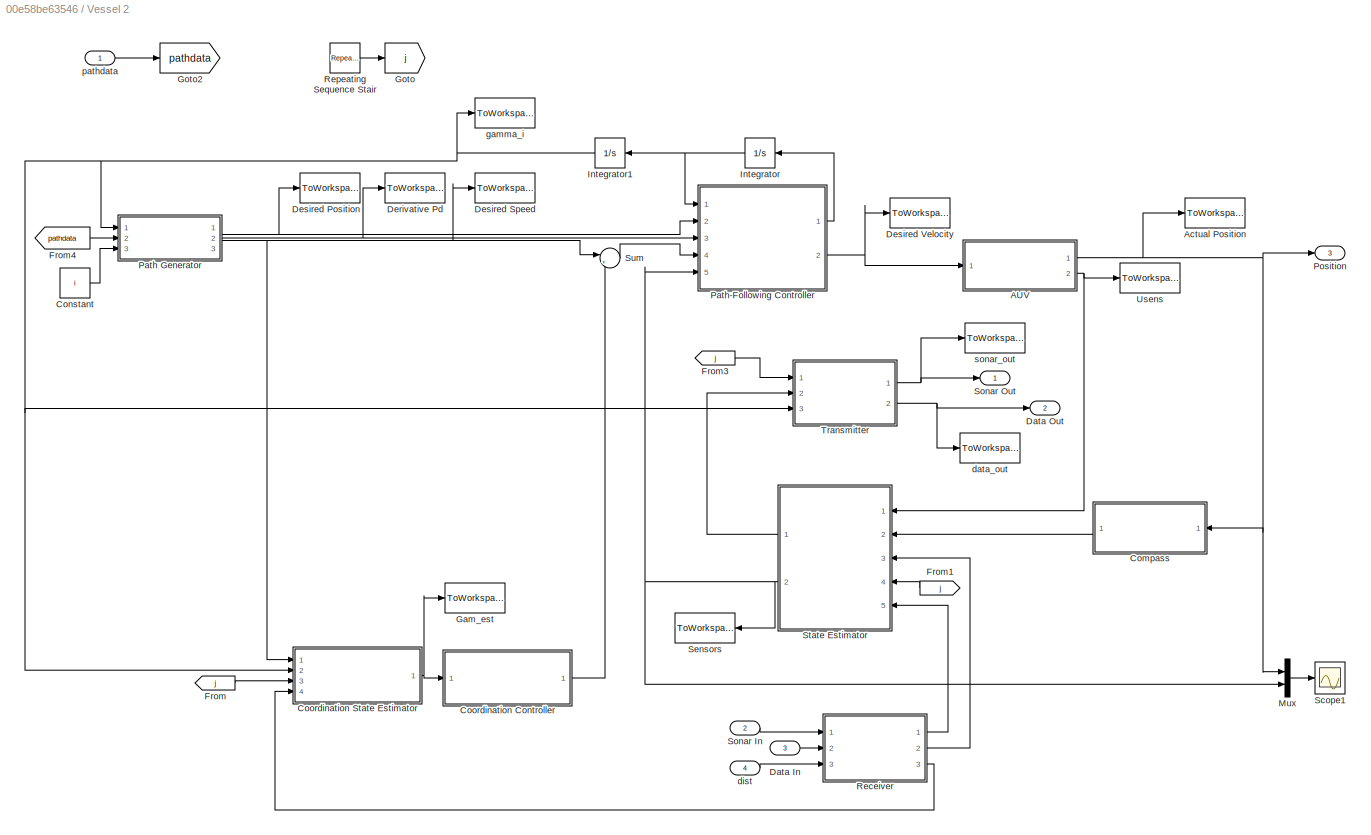
BLOCK [SubSystem] Vessel 2
  FunctionWithSeparateData = off
  MaskHideContents = off
  MinAlgLoopOccurrences = off
  Opaque = off
  Ports = [4, 3]
  PropExecContextOutsideSubsystem = off
  RTWSystemCode = Auto
  RequestExecContextInheritance = off
BLOCK [SubSystem] Vessel 2/AUV
  FunctionWithSeparateData = off
  MaskHideContents = off
  MinAlgLoopOccurrences = off
  Opaque = off
  Ports = [1, 2]
  PropExecContextOutsideSubsystem = off
  RTWSystemCode = Auto
  RequestExecContextInheritance = off
BLOCK [SubSystem] Vessel 2/AUV/Controller
  FunctionWithSeparateData = off
  MaskHideContents = off
  MinAlgLoopOccurrences = off
  Opaque = off
  Ports = [2, 1]
  PropExecContextOutsideSubsystem = off
  RTWSystemCode = Auto
  RequestExecContextInheritance = off
BLOCK [SubSystem] Vessel 2/AUV/Controller/Controller
  ErrorFcn = Stateflow.Translate.translate
  FunctionWithSeparateData = off
  MaskHideContents = off
  MinAlgLoopOccurrences = off
  Opaque = off
  PermitHierarchicalResolution = ExplicitOnly
  Ports = [5, 1]
  PropExecContextOutsideSubsystem = off
  RTWSystemCode = Auto
  RequestExecContextInheritance = off
  SFBlockType = MATLAB Function
  TreatAsAtomicUnit = on
BLOCK [Demux] Vessel 2/AUV/Controller/Controller/ Demux 
  Outputs = 1
  Ports = [1, 1]
BLOCK [S-Function] Vessel 2/AUV/Controller/Controller/ SFunction 
  EnableBusSupport = on
  FunctionName = sf_sfun
  Parameters = J,Nr,Nrr,Xu,Xuu,k_r,k_u,m_u,m_uv,m_v
  PortCounts = [5 2]
  Ports = [5, 2]
  Tag = Stateflow S-Function simulation 5
BLOCK [Terminator] Vessel 2/AUV/Controller/Controller/ Terminator 
BLOCK [Inport] Vessel 2/AUV/Controller/Controller/r
  IconDisplay = Port number
  Port = 5
BLOCK [Inport] Vessel 2/AUV/Controller/Controller/rd
  IconDisplay = Port number
  Port = 2
BLOCK [Outport] Vessel 2/AUV/Controller/Controller/tau
  IconDisplay = Port number
BLOCK [Inport] Vessel 2/AUV/Controller/Controller/u
  IconDisplay = Port number
  Port = 3
BLOCK [Inport] Vessel 2/AUV/Controller/Controller/ud
  IconDisplay = Port number
BLOCK [Inport] Vessel 2/AUV/Controller/Controller/v
  IconDisplay = Port number
  Port = 4
BLOCK [Demux] Vessel 2/AUV/Controller/Demux
  DisplayOption = bar
  Outputs = 2
  Ports = [1, 2]
BLOCK [Demux] Vessel 2/AUV/Controller/Demux1
  DisplayOption = bar
  Outputs = 3
  Ports = [1, 3]
BLOCK [Inport] Vessel 2/AUV/Controller/U
  IconDisplay = Port number
  Port = 2
BLOCK [Inport] Vessel 2/AUV/Controller/Ud
  IconDisplay = Port number
BLOCK [Outport] Vessel 2/AUV/Controller/tau
  IconDisplay = Port number
BLOCK [SubSystem] Vessel 2/AUV/Dynamics
  FunctionWithSeparateData = off
  MaskHideContents = off
  MinAlgLoopOccurrences = off
  Opaque = off
  Ports = [1, 1]
  PropExecContextOutsideSubsystem = off
  RTWSystemCode = Auto
  RequestExecContextInheritance = off
BLOCK [Demux] Vessel 2/AUV/Dynamics/Demux
  DisplayOption = bar
  Outputs = 3
  Ports = [1, 3]
BLOCK [SubSystem] Vessel 2/AUV/Dynamics/Dynamics
  ErrorFcn = Stateflow.Translate.translate
  FunctionWithSeparateData = off
  MaskHideContents = off
  MinAlgLoopOccurrences = off
  Opaque = off
  PermitHierarchicalResolution = ExplicitOnly
  Ports = [5, 1]
  PropExecContextOutsideSubsystem = off
  RTWSystemCode = Auto
  RequestExecContextInheritance = off
  SFBlockType = MATLAB Function
  TreatAsAtomicUnit = on
BLOCK [Demux] Vessel 2/AUV/Dynamics/Dynamics/ Demux 
  Outputs = 1
  Ports = [1, 1]
BLOCK [S-Function] Vessel 2/AUV/Dynamics/Dynamics/ SFunction 
  EnableBusSupport = on
  FunctionName = sf_sfun
  Parameters = J,Nr,Nrr,Xu,Xuu,Yv,Yvv,l,m_u,m_uv,m_v
  PortCounts = [5 2]
  Ports = [5, 2]
  Tag = Stateflow S-Function simulation 6
BLOCK [Terminator] Vessel 2/AUV/Dynamics/Dynamics/ Terminator 
BLOCK [Inport] Vessel 2/AUV/Dynamics/Dynamics/Fp
  IconDisplay = Port number
  Port = 5
BLOCK [Inport] Vessel 2/AUV/Dynamics/Dynamics/Fs
  IconDisplay = Port number
  Port = 4
BLOCK [Outport] Vessel 2/AUV/Dynamics/Dynamics/dU
  IconDisplay = Port number
BLOCK [Inport] Vessel 2/AUV/Dynamics/Dynamics/r
  IconDisplay = Port number
  Port = 3
BLOCK [Inport] Vessel 2/AUV/Dynamics/Dynamics/u
  IconDisplay = Port number
BLOCK [Inport] Vessel 2/AUV/Dynamics/Dynamics/v
  IconDisplay = Port number
  Port = 2
BLOCK [Integrator] Vessel 2/AUV/Dynamics/Integrator
  InitialCondition = [0 0 0]
  Ports = [1, 1]
BLOCK [SubSystem] Vessel 2/AUV/Dynamics/Propellers
  FunctionWithSeparateData = off
  MaskHideContents = off
  MinAlgLoopOccurrences = off
  Opaque = off
  Ports = [1, 2]
  PropExecContextOutsideSubsystem = off
  RTWSystemCode = Auto
  RequestExecContextInheritance = off
BLOCK [Demux] Vessel 2/AUV/Dynamics/Propellers/Demux1
  DisplayOption = bar
  Outputs = 2
  Ports = [1, 2]
BLOCK [ToWorkspace] Vessel 2/AUV/Dynamics/Propellers/Fan forces
  MaxDataPoints = inf
  Ports = [1]
  SampleTime = -1
  VariableName = F2
BLOCK [Outport] Vessel 2/AUV/Dynamics/Propellers/Fp
  IconDisplay = Port number
  Port = 2
BLOCK [Outport] Vessel 2/AUV/Dynamics/Propellers/Fs
  IconDisplay = Port number
BLOCK [Gain] Vessel 2/AUV/Dynamics/Propellers/Gain
  Gain = [.5 .5/l; .5 -.5/l]
  Multiplication = Matrix(K*u)
  OutDataTypeStr = Inherit: Inherit via internal rule
  ParamDataTypeStr = Inherit: Inherit via internal rule
  SaturateOnIntegerOverflow = off
BLOCK [Saturate] Vessel 2/AUV/Dynamics/Propellers/Saturation
  InputPortMap = u0
  LowerLimit = Fmin
  Ports = [1, 1]
  UpperLimit = Fmax
BLOCK [Inport] Vessel 2/AUV/Dynamics/Propellers/tau
  IconDisplay = Port number
BLOCK [Outport] Vessel 2/AUV/Dynamics/U
  IconDisplay = Port number
BLOCK [Inport] Vessel 2/AUV/Dynamics/tau
  IconDisplay = Port number
BLOCK [SubSystem] Vessel 2/AUV/Kinematics
  FunctionWithSeparateData = off
  MaskHideContents = off
  MinAlgLoopOccurrences = off
  Opaque = off
  Ports = [1, 1]
  PropExecContextOutsideSubsystem = off
  RTWSystemCode = Auto
  RequestExecContextInheritance = off
BLOCK [Demux] Vessel 2/AUV/Kinematics/Demux1
  DisplayOption = bar
  Outputs = 3
  Ports = [1, 3]
BLOCK [Integrator] Vessel 2/AUV/Kinematics/Heading
  InitialCondition = psi02
  Ports = [1, 1]
BLOCK [SubSystem] Vessel 2/AUV/Kinematics/Kinematics
  ErrorFcn = Stateflow.Translate.translate
  FunctionWithSeparateData = off
  MaskHideContents = off
  MinAlgLoopOccurrences = off
  Opaque = off
  PermitHierarchicalResolution = ExplicitOnly
  Ports = [4, 2]
  PropExecContextOutsideSubsystem = off
  RTWSystemCode = Auto
  RequestExecContextInheritance = off
  SFBlockType = MATLAB Function
  TreatAsAtomicUnit = on
BLOCK [Demux] Vessel 2/AUV/Kinematics/Kinematics/ Demux 
  Outputs = 1
  Ports = [1, 1]
BLOCK [S-Function] Vessel 2/AUV/Kinematics/Kinematics/ SFunction 
  EnableBusSupport = on
  FunctionName = sf_sfun
  PortCounts = [4 3]
  Ports = [4, 3]
  Tag = Stateflow S-Function simulation 7
BLOCK [Terminator] Vessel 2/AUV/Kinematics/Kinematics/ Terminator 
BLOCK [Outport] Vessel 2/AUV/Kinematics/Kinematics/Utot
  IconDisplay = Port number
BLOCK [Inport] Vessel 2/AUV/Kinematics/Kinematics/Vc
  IconDisplay = Port number
  Port = 4
BLOCK [Outport] Vessel 2/AUV/Kinematics/Kinematics/dP
  IconDisplay = Port number
  Port = 2
BLOCK [Inport] Vessel 2/AUV/Kinematics/Kinematics/psi
  IconDisplay = Port number
  Port = 3
BLOCK [Inport] Vessel 2/AUV/Kinematics/Kinematics/u
  IconDisplay = Port number
BLOCK [Inport] Vessel 2/AUV/Kinematics/Kinematics/v
  IconDisplay = Port number
  Port = 2
BLOCK [Mux] Vessel 2/AUV/Kinematics/Mux
  DisplayOption = bar
  Inputs = 2
  Ports = [2, 1]
BLOCK [Outport] Vessel 2/AUV/Kinematics/P
  IconDisplay = Port number
BLOCK [Integrator] Vessel 2/AUV/Kinematics/Position
  InitialCondition = P02
  Ports = [1, 1]
BLOCK [ToWorkspace] Vessel 2/AUV/Kinematics/Total Velocity
  MaxDataPoints = inf
  Ports = [1]
  SampleTime = -1
  VariableName = Utot2
BLOCK [Inport] Vessel 2/AUV/Kinematics/U
  IconDisplay = Port number
BLOCK [ToWorkspace] Vessel 2/AUV/Kinematics/Vcxy
  MaxDataPoints = inf
  Ports = [1]
  SampleTime = -1
  VariableName = Vcxy2
BLOCK [SubSystem] Vessel 2/AUV/Kinematics/Water Current
  FunctionWithSeparateData = off
  MaskHideContents = off
  MinAlgLoopOccurrences = off
  Opaque = off
  Ports = [0, 1]
  PropExecContextOutsideSubsystem = off
  RTWSystemCode = Auto
  RequestExecContextInheritance = off
BLOCK [Sum] Vessel 2/AUV/Kinematics/Water Current/Sum
  IconShape = round
  InputSameDT = off
  Inputs = ++|
  OutDataTypeStr = Inherit: Inherit via internal rule
  Ports = [2, 1]
  SaturateOnIntegerOverflow = off
BLOCK [Sum] Vessel 2/AUV/Kinematics/Water Current/Sum1
  IconShape = round
  InputSameDT = off
  Inputs = |++
  OutDataTypeStr = Inherit: Inherit via internal rule
  Ports = [2, 1]
  SaturateOnIntegerOverflow = off
BLOCK [Constant] Vessel 2/AUV/Kinematics/Water Current/Vc
  Value = Vc
BLOCK [Reference] Vessel 2/AUV/Kinematics/Water Current/Vc noise  REF=simulink/Sources/Band-Limited
White Noise
  Cov = nVc*5
  Ports = [0, 1]
  SourceBlock = simulink/Sources/Band-Limited\nWhite Noise
  SourceType = Band-Limited White Noise.
  Ts = 5
  VectorParams1D = on
  seed = 9568
BLOCK [Outport] Vessel 2/AUV/Kinematics/Water Current/Vcxy
  IconDisplay = Port number
BLOCK [SubSystem] Vessel 2/AUV/Kinematics/Water Current/Water current
  ErrorFcn = Stateflow.Translate.translate
  FunctionWithSeparateData = off
  MaskHideContents = off
  MinAlgLoopOccurrences = off
  Opaque = off
  PermitHierarchicalResolution = ExplicitOnly
  Ports = [2, 1]
  PropExecContextOutsideSubsystem = off
  RTWSystemCode = Auto
  RequestExecContextInheritance = off
  SFBlockType = MATLAB Function
  TreatAsAtomicUnit = on
BLOCK [Demux] Vessel 2/AUV/Kinematics/Water Current/Water current/ Demux 
  Outputs = 1
  Ports = [1, 1]
BLOCK [S-Function] Vessel 2/AUV/Kinematics/Water Current/Water current/ SFunction 
  EnableBusSupport = on
  FunctionName = sf_sfun
  PortCounts = [2 2]
  Ports = [2, 2]
  Tag = Stateflow S-Function simulation 8
BLOCK [Terminator] Vessel 2/AUV/Kinematics/Water Current/Water current/ Terminator 
BLOCK [Inport] Vessel 2/AUV/Kinematics/Water Current/Water current/Vc
  IconDisplay = Port number
BLOCK [Outport] Vessel 2/AUV/Kinematics/Water Current/Water current/Vcxy
  IconDisplay = Port number
BLOCK [Inport] Vessel 2/AUV/Kinematics/Water Current/Water current/psi_c
  IconDisplay = Port number
  Port = 2
BLOCK [Constant] Vessel 2/AUV/Kinematics/Water Current/psi_c
  Value = psi_c
BLOCK [Reference] Vessel 2/AUV/Kinematics/Water Current/psi_c noise  REF=simulink/Sources/Band-Limited
White Noise
  Cov = npsi_c*5
  Ports = [0, 1]
  SourceBlock = simulink/Sources/Band-Limited\nWhite Noise
  SourceType = Band-Limited White Noise.
  Ts = 5
  VectorParams1D = on
  seed = 446
BLOCK [Outport] Vessel 2/AUV/Psens
  IconDisplay = Port number
BLOCK [ToWorkspace] Vessel 2/AUV/Reference Velocity
  MaxDataPoints = inf
  Ports = [1]
  SampleTime = -1
  VariableName = Ud2
BLOCK [ToWorkspace] Vessel 2/AUV/Relative Velocity
  MaxDataPoints = inf
  Ports = [1]
  SampleTime = -1
  VariableName = U2
BLOCK [Sum] Vessel 2/AUV/Sum
  IconShape = round
  InputSameDT = off
  Inputs = +++
  OutDataTypeStr = Inherit: Inherit via internal rule
  Ports = [3, 1]
  SaturateOnIntegerOverflow = off
BLOCK [ToWorkspace] Vessel 2/AUV/True Position
  MaxDataPoints = inf
  Ports = [1]
  SampleTime = -1
  VariableName = P2
BLOCK [Inport] Vessel 2/AUV/Ud
  IconDisplay = Port number
BLOCK [UniformRandomNumber] Vessel 2/AUV/Uniform Random Number
  Maximum = 5*noiseon*[nu nv nr]
  Minimum = -5*noiseon*[nu nv nr]
  SampleTime = 20
  Seed = [9274 0212 1235]
BLOCK [Outport] Vessel 2/AUV/Usens
  IconDisplay = Port number
  Port = 2
BLOCK [Reference] Vessel 2/AUV/Velocity Noise  REF=simulink/Sources/Band-Limited
White Noise
  Cov = noiseon*[nu nv nr]*0.1
  Ports = [0, 1]
  SourceBlock = simulink/Sources/Band-Limited\nWhite Noise
  SourceType = Band-Limited White Noise.
  Ts = 0.1
  VectorParams1D = on
  seed = [4729 2120 5321]
BLOCK [ToWorkspace] Vessel 2/Actual Position
  MaxDataPoints = inf
  Ports = [1]
  SampleTime = -1
  VariableName = Position2
BLOCK [SubSystem] Vessel 2/Compass
  FunctionWithSeparateData = off
  MaskHideContents = off
  MinAlgLoopOccurrences = off
  Opaque = off
  Ports = [1, 1]
  PropExecContextOutsideSubsystem = off
  RTWSystemCode = Auto
  RequestExecContextInheritance = off
BLOCK [Reference] Vessel 2/Compass/Compass noise  REF=simulink/Sources/Band-Limited
White Noise
  Cov = noiseon*npsi*0.1
  Ports = [0, 1]
  SourceBlock = simulink/Sources/Band-Limited\nWhite Noise
  SourceType = Band-Limited White Noise.
  Ts = 0.1
  VectorParams1D = on
  seed = 5246
BLOCK [Demux] Vessel 2/Compass/Demux
  DisplayOption = bar
  Outputs = 3
  Ports = [1, 3]
BLOCK [Mux] Vessel 2/Compass/Mux1
  DisplayOption = bar
  Inputs = 2
  Ports = [2, 1]
BLOCK [Inport] Vessel 2/Compass/Position
  IconDisplay = Port number
BLOCK [Outport] Vessel 2/Compass/Psi_sens
  IconDisplay = Port number
BLOCK [Sum] Vessel 2/Compass/Sum
  IconShape = round
  InputSameDT = off
  Inputs = |++
  OutDataTypeStr = Inherit: Inherit via internal rule
  Ports = [2, 1]
  SaturateOnIntegerOverflow = off
BLOCK [Sum] Vessel 2/Compass/Sum1
  IconShape = round
  InputSameDT = off
  Inputs = +|+
  OutDataTypeStr = Inherit: Inherit via internal rule
  Ports = [2, 1]
  SaturateOnIntegerOverflow = off
BLOCK [Terminator] Vessel 2/Compass/Terminator1
BLOCK [Reference] Vessel 2/Compass/calibration error  REF=simulink/Sources/Band-Limited
White Noise
  Cov = noiseon*npsi*200
  Ports = [0, 1]
  SourceBlock = simulink/Sources/Band-Limited\nWhite Noise
  SourceType = Band-Limited White Noise.
  Ts = 200
  VectorParams1D = on
  seed = 7425
BLOCK [Constant] Vessel 2/Constant
  Value = i
BLOCK [SubSystem] Vessel 2/Coordination Controller
  ErrorFcn = Stateflow.Translate.translate
  FunctionWithSeparateData = off
  MaskHideContents = off
  MinAlgLoopOccurrences = off
  Opaque = off
  PermitHierarchicalResolution = ExplicitOnly
  Ports = [1, 1]
  PropExecContextOutsideSubsystem = off
  RTWSystemCode = Auto
  RequestExecContextInheritance = off
  SFBlockType = MATLAB Function
  TreatAsAtomicUnit = on
BLOCK [Demux] Vessel 2/Coordination Controller/ Demux 
  Outputs = 1
  Ports = [1, 1]
BLOCK [S-Function] Vessel 2/Coordination Controller/ SFunction 
  EnableBusSupport = on
  FunctionName = sf_sfun
  Parameters = i,k_xi,n
  PortCounts = [1 2]
  Ports = [1, 2]
  Tag = Stateflow S-Function simulation 9
BLOCK [Terminator] Vessel 2/Coordination Controller/ Terminator 
BLOCK [Inport] Vessel 2/Coordination Controller/Gam_est
  IconDisplay = Port number
BLOCK [Outport] Vessel 2/Coordination Controller/v_tilde
  IconDisplay = Port number
BLOCK [SubSystem] Vessel 2/Coordination State Estimator
  FunctionWithSeparateData = off
  MaskHideContents = off
  MinAlgLoopOccurrences = off
  Opaque = off
  Ports = [4, 1]
  PropExecContextOutsideSubsystem = off
  RTWSystemCode = Auto
  RequestExecContextInheritance = off
BLOCK [Outport] Vessel 2/Coordination State Estimator/Gam_est
  IconDisplay = Port number
BLOCK [Integrator] Vessel 2/Coordination State Estimator/Integrator2
  InitialCondition = zeros(1,n)
  Ports = [1, 1]
BLOCK [SubSystem] Vessel 2/Coordination State Estimator/Update 
  ErrorFcn = Stateflow.Translate.translate
  FunctionWithSeparateData = off
  MaskHideContents = off
  MinAlgLoopOccurrences = off
  Opaque = off
  PermitHierarchicalResolution = ExplicitOnly
  Ports = [4, 1]
  PropExecContextOutsideSubsystem = off
  RTWSystemCode = Auto
  RequestExecContextInheritance = off
  SFBlockType = MATLAB Function
  TreatAsAtomicUnit = on
BLOCK [Demux] Vessel 2/Coordination State Estimator/Update / Demux 
  Outputs = 1
  Ports = [1, 1]
BLOCK [S-Function] Vessel 2/Coordination State Estimator/Update / SFunction 
  EnableBusSupport = on
  FunctionName = sf_sfun
  Parameters = i
  PortCounts = [4 2]
  Ports = [4, 2]
  Tag = Stateflow S-Function simulation 10
BLOCK [Terminator] Vessel 2/Coordination State Estimator/Update / Terminator 
BLOCK [Outport] Vessel 2/Coordination State Estimator/Update /Gam_est
  IconDisplay = Port number
BLOCK [Inport] Vessel 2/Coordination State Estimator/Update /Gam_predict
  IconDisplay = Port number
BLOCK [Inport] Vessel 2/Coordination State Estimator/Update /gam_i
  IconDisplay = Port number
  Port = 2
BLOCK [Inport] Vessel 2/Coordination State Estimator/Update /gam_j
  IconDisplay = Port number
  Port = 3
BLOCK [Inport] Vessel 2/Coordination State Estimator/Update /j
  IconDisplay = Port number
  Port = 4
BLOCK [Inport] Vessel 2/Coordination State Estimator/gam_i
  IconDisplay = Port number
  Port = 2
BLOCK [Inport] Vessel 2/Coordination State Estimator/gam_j
  IconDisplay = Port number
  Port = 4
BLOCK [Inport] Vessel 2/Coordination State Estimator/j
  IconDisplay = Port number
  Port = 3
BLOCK [Inport] Vessel 2/Coordination State Estimator/v_L
  IconDisplay = Port number
BLOCK [Inport] Vessel 2/Data In
  IconDisplay = Port number
  Port = 3
BLOCK [Outport] Vessel 2/Data Out
  IconDisplay = Port number
  Port = 2
BLOCK [ToWorkspace] Vessel 2/Derivative Pd
  MaxDataPoints = inf
  Ports = [1]
  SampleTime = -1
  VariableName = dPd2
BLOCK [ToWorkspace] Vessel 2/Desired Position
  MaxDataPoints = inf
  Ports = [1]
  SampleTime = -1
  VariableName = Pd2
BLOCK [ToWorkspace] Vessel 2/Desired Speed
  MaxDataPoints = inf
  Ports = [1]
  SampleTime = -1
  VariableName = v_d2
BLOCK [ToWorkspace] Vessel 2/Desired Velocity
  MaxDataPoints = inf
  Ports = [1]
  SampleTime = -1
  VariableName = U_d2
BLOCK [From] Vessel 2/From
  GotoTag = j
BLOCK [From] Vessel 2/From1
  GotoTag = j
BLOCK [From] Vessel 2/From3
  GotoTag = j
BLOCK [From] Vessel 2/From4
  GotoTag = pathdata
BLOCK [ToWorkspace] Vessel 2/Gam_est
  MaxDataPoints = inf
  Ports = [1]
  SampleTime = -1
  VariableName = Gam_est2
BLOCK [Goto] Vessel 2/Goto
  GotoTag = j
BLOCK [Goto] Vessel 2/Goto2
  GotoTag = pathdata
BLOCK [Integrator] Vessel 2/Integrator
  Ports = [1, 1]
BLOCK [Integrator] Vessel 2/Integrator1
  Ports = [1, 1]
BLOCK [Mux] Vessel 2/Mux
  DisplayOption = bar
  Inputs = 2
  Ports = [2, 1]
BLOCK [SubSystem] Vessel 2/Path Generator
  FunctionWithSeparateData = off
  MaskHideContents = off
  MinAlgLoopOccurrences = off
  Opaque = off
  Ports = [3, 3]
  PropExecContextOutsideSubsystem = off
  RTWSystemCode = Auto
  RequestExecContextInheritance = off
BLOCK [SubSystem] Vessel 2/Path Generator/Nominal Values Generator
  FunctionWithSeparateData = off
  MaskHideContents = off
  MinAlgLoopOccurrences = off
  Opaque = off
  Ports = [2, 3]
  PropExecContextOutsideSubsystem = off
  RTWSystemCode = Auto
  RequestExecContextInheritance = off
BLOCK [BusSelector] Vessel 2/Path Generator/Nominal Values Generator/Bus Selector
  OutputSignals = gamWP,thetad,P0,v_L,Circle
  Ports = [1, 5]
BLOCK [SubSystem] Vessel 2/Path Generator/Nominal Values Generator/MATLAB Function
  ErrorFcn = Stateflow.Translate.translate
  FunctionWithSeparateData = off
  MaskHideContents = off
  MinAlgLoopOccurrences = off
  Opaque = off
  PermitHierarchicalResolution = ExplicitOnly
  Ports = [6, 2]
  PropExecContextOutsideSubsystem = off
  RTWSystemCode = Auto
  RequestExecContextInheritance = off
  SFBlockType = MATLAB Function
  TreatAsAtomicUnit = on
BLOCK [Demux] Vessel 2/Path Generator/Nominal Values Generator/MATLAB Function/ Demux 
  Outputs = 1
  Ports = [1, 1]
BLOCK [S-Function] Vessel 2/Path Generator/Nominal Values Generator/MATLAB Function/ SFunction 
  EnableBusSupport = on
  FunctionName = sf_sfun
  PortCounts = [6 3]
  Ports = [6, 3]
  Tag = Stateflow S-Function simulation 11
BLOCK [Terminator] Vessel 2/Path Generator/Nominal Values Generator/MATLAB Function/ Terminator 
BLOCK [Inport] Vessel 2/Path Generator/Nominal Values Generator/MATLAB Function/P0
  IconDisplay = Port number
  Port = 4
BLOCK [Outport] Vessel 2/Path Generator/Nominal Values Generator/MATLAB Function/Pd
  IconDisplay = Port number
BLOCK [Inport] Vessel 2/Path Generator/Nominal Values Generator/MATLAB Function/Radius
  IconDisplay = Port number
  Port = 6
BLOCK [Outport] Vessel 2/Path Generator/Nominal Values Generator/MATLAB Function/dPd
  IconDisplay = Port number
  Port = 2
BLOCK [Inport] Vessel 2/Path Generator/Nominal Values Generator/MATLAB Function/gam
  IconDisplay = Port number
BLOCK [Inport] Vessel 2/Path Generator/Nominal Values Generator/MATLAB Function/gamWP
  IconDisplay = Port number
  Port = 2
BLOCK [Inport] Vessel 2/Path Generator/Nominal Values Generator/MATLAB Function/thetad
  IconDisplay = Port number
  Port = 3
BLOCK [Inport] Vessel 2/Path Generator/Nominal Values Generator/MATLAB Function/v_L
  IconDisplay = Port number
  Port = 5
BLOCK [Outport] Vessel 2/Path Generator/Nominal Values Generator/P_d
  IconDisplay = Port number
BLOCK [Outport] Vessel 2/Path Generator/Nominal Values Generator/dP_d
  IconDisplay = Port number
  Port = 2
BLOCK [Inport] Vessel 2/Path Generator/Nominal Values Generator/gam
  IconDisplay = Port number
BLOCK [Inport] Vessel 2/Path Generator/Nominal Values Generator/path params
  IconDisplay = Port number
  Port = 2
BLOCK [Outport] Vessel 2/Path Generator/Nominal Values Generator/v_L
  IconDisplay = Port number
  Port = 3
BLOCK [Outport] Vessel 2/Path Generator/Pd
  IconDisplay = Port number
BLOCK [SubSystem] Vessel 2/Path Generator/Read Pathdata
  FunctionWithSeparateData = off
  MaskHideContents = off
  MinAlgLoopOccurrences = off
  Opaque = off
  Ports = [3, 1]
  PropExecContextOutsideSubsystem = off
  RTWSystemCode = Auto
  RequestExecContextInheritance = off
BLOCK [BusCreator] Vessel 2/Path Generator/Read Pathdata/Bus Creator
  DisplayOption = bar
  Inputs = 5
  Ports = [5, 1]
BLOCK [SubSystem] Vessel 2/Path Generator/Read Pathdata/Path1
  ErrorFcn = Stateflow.Translate.translate
  FunctionWithSeparateData = off
  MaskHideContents = off
  MinAlgLoopOccurrences = off
  Opaque = off
  PermitHierarchicalResolution = ExplicitOnly
  Ports = [3, 5]
  PropExecContextOutsideSubsystem = off
  RTWSystemCode = Auto
  RequestExecContextInheritance = off
  SFBlockType = MATLAB Function
  TreatAsAtomicUnit = on
BLOCK [Demux] Vessel 2/Path Generator/Read Pathdata/Path1/ Demux 
  Outputs = 1
  Ports = [1, 1]
BLOCK [S-Function] Vessel 2/Path Generator/Read Pathdata/Path1/ SFunction 
  EnableBusSupport = on
  FunctionName = sf_sfun
  PortCounts = [3 6]
  Ports = [3, 6]
  Tag = Stateflow S-Function simulation 12
BLOCK [Terminator] Vessel 2/Path Generator/Read Pathdata/Path1/ Terminator 
BLOCK [Outport] Vessel 2/Path Generator/Read Pathdata/Path1/Circle
  IconDisplay = Port number
  Port = 5
BLOCK [Outport] Vessel 2/Path Generator/Read Pathdata/Path1/P0
  IconDisplay = Port number
  Port = 3
BLOCK [Inport] Vessel 2/Path Generator/Read Pathdata/Path1/gam
  IconDisplay = Port number
  Port = 2
BLOCK [Outport] Vessel 2/Path Generator/Read Pathdata/Path1/gamWP
  IconDisplay = Port number
BLOCK [Inport] Vessel 2/Path Generator/Read Pathdata/Path1/id
  IconDisplay = Port number
  Port = 3
BLOCK [Inport] Vessel 2/Path Generator/Read Pathdata/Path1/pathdata
  IconDisplay = Port number
BLOCK [Outport] Vessel 2/Path Generator/Read Pathdata/Path1/thetad
  IconDisplay = Port number
  Port = 2
BLOCK [Outport] Vessel 2/Path Generator/Read Pathdata/Path1/v_L
  IconDisplay = Port number
  Port = 4
BLOCK [Inport] Vessel 2/Path Generator/Read Pathdata/gam
  IconDisplay = Port number
BLOCK [Inport] Vessel 2/Path Generator/Read Pathdata/id
  IconDisplay = Port number
  Port = 3
BLOCK [Outport] Vessel 2/Path Generator/Read Pathdata/path params
  IconDisplay = Port number
BLOCK [Inport] Vessel 2/Path Generator/Read Pathdata/pathdata
  IconDisplay = Port number
  Port = 2
BLOCK [Outport] Vessel 2/Path Generator/dPd
  IconDisplay = Port number
  Port = 2
BLOCK [Inport] Vessel 2/Path Generator/gam
  IconDisplay = Port number
BLOCK [Inport] Vessel 2/Path Generator/id
  IconDisplay = Port number
  Port = 3
BLOCK [Inport] Vessel 2/Path Generator/pathdata
  IconDisplay = Port number
  Port = 2
BLOCK [Outport] Vessel 2/Path Generator/vL
  IconDisplay = Port number
  Port = 3
BLOCK [SubSystem] Vessel 2/Path-Following Controller
  FunctionWithSeparateData = off
  MaskHideContents = off
  MinAlgLoopOccurrences = off
  Opaque = off
  Ports = [5, 2]
  PropExecContextOutsideSubsystem = off
  RTWSystemCode = Auto
  RequestExecContextInheritance = off
BLOCK [Demux] Vessel 2/Path-Following Controller/Demux
  DisplayOption = bar
  Outputs = 3
  Ports = [1, 3]
BLOCK [SubSystem] Vessel 2/Path-Following Controller/PF Control Law
  ErrorFcn = Stateflow.Translate.translate
  FunctionWithSeparateData = off
  MaskHideContents = off
  MinAlgLoopOccurrences = off
  Opaque = off
  PermitHierarchicalResolution = ExplicitOnly
  Ports = [7, 3]
  PropExecContextOutsideSubsystem = off
  RTWSystemCode = Auto
  RequestExecContextInheritance = off
  SFBlockType = MATLAB Function
  TreatAsAtomicUnit = on
BLOCK [Demux] Vessel 2/Path-Following Controller/PF Control Law/ Demux 
  Outputs = 1
  Ports = [1, 1]
BLOCK [S-Function] Vessel 2/Path-Following Controller/PF Control Law/ SFunction 
  EnableBusSupport = on
  FunctionName = sf_sfun
  Parameters = delta,kx,ky,kz
  PortCounts = [7 4]
  Ports = [7, 4]
  Tag = Stateflow S-Function simulation 13
BLOCK [Terminator] Vessel 2/Path-Following Controller/PF Control Law/ Terminator 
BLOCK [Inport] Vessel 2/Path-Following Controller/PF Control Law/P
  IconDisplay = Port number
  Port = 2
BLOCK [Inport] Vessel 2/Path-Following Controller/PF Control Law/Pd
  IconDisplay = Port number
  Port = 4
BLOCK [Outport] Vessel 2/Path-Following Controller/PF Control Law/Ud
  IconDisplay = Port number
BLOCK [Inport] Vessel 2/Path-Following Controller/PF Control Law/Vc
  IconDisplay = Port number
BLOCK [Inport] Vessel 2/Path-Following Controller/PF Control Law/Vd
  IconDisplay = Port number
  Port = 6
BLOCK [Inport] Vessel 2/Path-Following Controller/PF Control Law/dPd
  IconDisplay = Port number
  Port = 5
BLOCK [Outport] Vessel 2/Path-Following Controller/PF Control Law/ddgam
  IconDisplay = Port number
  Port = 3
BLOCK [Inport] Vessel 2/Path-Following Controller/PF Control Law/dgam
  IconDisplay = Port number
  Port = 7
BLOCK [Outport] Vessel 2/Path-Following Controller/PF Control Law/e
  IconDisplay = Port number
  Port = 2
BLOCK [Inport] Vessel 2/Path-Following Controller/PF Control Law/psi
  IconDisplay = Port number
  Port = 3
BLOCK [Inport] Vessel 2/Path-Following Controller/P_d
  IconDisplay = Port number
  Port = 2
BLOCK [ToWorkspace] Vessel 2/Path-Following Controller/Path following error
  MaxDataPoints = inf
  Ports = [1]
  SampleTime = -1
  VariableName = PFerror2
BLOCK [Inport] Vessel 2/Path-Following Controller/Sensors
  IconDisplay = Port number
  Port = 5
BLOCK [Outport] Vessel 2/Path-Following Controller/U_d
  IconDisplay = Port number
  Port = 2
BLOCK [Inport] Vessel 2/Path-Following Controller/dP_d//dgam
  IconDisplay = Port number
  Port = 3
BLOCK [Outport] Vessel 2/Path-Following Controller/ddgam
  IconDisplay = Port number
BLOCK [Inport] Vessel 2/Path-Following Controller/dgam
  IconDisplay = Port number
BLOCK [Inport] Vessel 2/Path-Following Controller/vd
  IconDisplay = Port number
  Port = 4
BLOCK [Outport] Vessel 2/Position
  IconDisplay = Port number
  Port = 3
BLOCK [SubSystem] Vessel 2/Receiver
  FunctionWithSeparateData = off
  MaskHideContents = off
  MinAlgLoopOccurrences = off
  Opaque = off
  Ports = [3, 3]
  PropExecContextOutsideSubsystem = off
  RTWSystemCode = Auto
  RequestExecContextInheritance = off
BLOCK [BusSelector] Vessel 2/Receiver/Bus Selector
  OutputSignals = gamma,state
  Ports = [1, 2]
BLOCK [Inport] Vessel 2/Receiver/Data In
  IconDisplay = Port number
  Port = 2
BLOCK [Inport] Vessel 2/Receiver/Sonar In
  IconDisplay = Port number
BLOCK [Terminator] Vessel 2/Receiver/Terminator
BLOCK [Inport] Vessel 2/Receiver/dist
  IconDisplay = Port number
  Port = 3
BLOCK [Outport] Vessel 2/Receiver/gamma_j
  IconDisplay = Port number
  Port = 3
BLOCK [Outport] Vessel 2/Receiver/range_j
  IconDisplay = Port number
  Port = 2
BLOCK [Outport] Vessel 2/Receiver/state
  IconDisplay = Port number
BLOCK [Reference] Vessel 2/Repeating Sequence Stair  REF=simulink/Sources/Repeating
Sequence
Stair
  ConRadixGroup = Best Precision: Vector-wise
  LockScale = off
  OutDataType = fixdt(0,8)
  OutDataTypeStr = double
  OutMax = []
  OutMin = []
  OutScaling = 2^-12
  OutValues = TrsmtLaw.'
  OutputDataTypeScalingMode = double
  Ports = [0, 1]
  SourceBlock = simulink/Sources/Repeating\nSequence\nStair
  SourceType = Repeating Sequence Stair
  tsamp = T_bc
BLOCK [Scope] Vessel 2/Scope1
  DataFormat = StructureWithTime
  Floating = off
  NumInputPorts = 1
  Ports = [1]
  SampleTime = 0
  SaveName = ScopeData1
  ShowLegends = off
  YMax = 275
  YMin = -25
BLOCK [ToWorkspace] Vessel 2/Sensors
  MaxDataPoints = inf
  Ports = [1]
  SampleTime = -1
  VariableName = Sensors2
BLOCK [Inport] Vessel 2/Sonar In
  IconDisplay = Port number
  Port = 2
BLOCK [Outport] Vessel 2/Sonar Out
  IconDisplay = Port number
BLOCK [SubSystem] Vessel 2/State Estimator
  FunctionWithSeparateData = off
  MaskHideContents = off
  MinAlgLoopOccurrences = off
  Opaque = off
  Ports = [5, 2]
  PropExecContextOutsideSubsystem = off
  RTWSystemCode = Auto
  RequestExecContextInheritance = off
BLOCK [ToWorkspace] Vessel 2/State Estimator/Covariance
  MaxDataPoints = inf
  Ports = [1]
  SampleTime = -1
  VariableName = Sigma2
BLOCK [Demux] Vessel 2/State Estimator/Demux
  DisplayOption = bar
  Outputs = 2
  Ports = [1, 2]
BLOCK [ToWorkspace] Vessel 2/State Estimator/Estimated State
  MaxDataPoints = inf
  Ports = [1]
  SampleTime = -1
  VariableName = State_est2
BLOCK [UnitDelay] Vessel 2/State Estimator/InitialConditionSigma
  InitialCondition = Sigma02
  InputProcessing = Elements as channels (sample based)
  SampleTime = T_est
BLOCK [UnitDelay] Vessel 2/State Estimator/InitialConditionState
  InitialCondition = State_est02
  InputProcessing = Elements as channels (sample based)
  SampleTime = T_est
BLOCK [Mux] Vessel 2/State Estimator/Mux
  DisplayOption = bar
  Ports = [4, 1]
BLOCK [Constant] Vessel 2/State Estimator/Plant Cov
  Value = Q2
BLOCK [Inport] Vessel 2/State Estimator/Psi
  IconDisplay = Port number
  Port = 2
BLOCK [Outport] Vessel 2/State Estimator/Sensors
  IconDisplay = Port number
  Port = 2
BLOCK [Outport] Vessel 2/State Estimator/State 
  IconDisplay = Port number
BLOCK [SubSystem] Vessel 2/State Estimator/State prediction
  ErrorFcn = Stateflow.Translate.translate
  FunctionWithSeparateData = off
  MaskHideContents = off
  MinAlgLoopOccurrences = off
  Opaque = off
  PermitHierarchicalResolution = ExplicitOnly
  Ports = [6, 2]
  PropExecContextOutsideSubsystem = off
  RTWSystemCode = Auto
  RequestExecContextInheritance = off
  SFBlockType = MATLAB Function
  TreatAsAtomicUnit = on
BLOCK [Demux] Vessel 2/State Estimator/State prediction/ Demux 
  Outputs = 1
  Ports = [1, 1]
BLOCK [S-Function] Vessel 2/State Estimator/State prediction/ SFunction 
  EnableBusSupport = on
  FunctionName = sf_sfun
  Parameters = T_est
  PortCounts = [6 3]
  Ports = [6, 3]
  Tag = Stateflow S-Function simulation 14
BLOCK [Terminator] Vessel 2/State Estimator/State prediction/ Terminator 
BLOCK [Inport] Vessel 2/State Estimator/State prediction/Psi
  IconDisplay = Port number
  Port = 5
BLOCK [Inport] Vessel 2/State Estimator/State prediction/Q
  IconDisplay = Port number
  Port = 4
BLOCK [Inport] Vessel 2/State Estimator/State prediction/Sigma_km1
  IconDisplay = Port number
BLOCK [Outport] Vessel 2/State Estimator/State prediction/Sigma_predict
  IconDisplay = Port number
  Port = 2
BLOCK [Inport] Vessel 2/State Estimator/State prediction/State_km1
  IconDisplay = Port number
  Port = 2
BLOCK [Outport] Vessel 2/State Estimator/State prediction/State_predict
  IconDisplay = Port number
BLOCK [Inport] Vessel 2/State Estimator/State prediction/Usens
  IconDisplay = Port number
  Port = 6
BLOCK [Inport] Vessel 2/State Estimator/State prediction/Vc
  IconDisplay = Port number
  Port = 3
BLOCK [SubSystem] Vessel 2/State Estimator/State update
  ErrorFcn = Stateflow.Translate.translate
  FunctionWithSeparateData = off
  MaskHideContents = off
  MinAlgLoopOccurrences = off
  Opaque = off
  PermitHierarchicalResolution = ExplicitOnly
  Ports = [5, 4]
  PropExecContextOutsideSubsystem = off
  RTWSystemCode = Auto
  RequestExecContextInheritance = off
  SFBlockType = MATLAB Function
  TreatAsAtomicUnit = on
BLOCK [Demux] Vessel 2/State Estimator/State update/ Demux 
  Outputs = 1
  Ports = [1, 1]
BLOCK [S-Function] Vessel 2/State Estimator/State update/ SFunction 
  EnableBusSupport = on
  FunctionName = sf_sfun
  Parameters = i,nsonar
  PortCounts = [5 5]
  Ports = [5, 5]
  Tag = Stateflow S-Function simulation 15
BLOCK [Terminator] Vessel 2/State Estimator/State update/ Terminator 
BLOCK [Outport] Vessel 2/State Estimator/State update/Sigma
  IconDisplay = Port number
BLOCK [Inport] Vessel 2/State Estimator/State update/Sigma_predict
  IconDisplay = Port number
  Port = 2
BLOCK [Outport] Vessel 2/State Estimator/State update/cov_i
  IconDisplay = Port number
  Port = 4
BLOCK [Inport] Vessel 2/State Estimator/State update/j
  IconDisplay = Port number
  Port = 5
BLOCK [Inport] Vessel 2/State Estimator/State update/p_j
  IconDisplay = Port number
  Port = 4
BLOCK [Outport] Vessel 2/State Estimator/State update/state_est
  IconDisplay = Port number
  Port = 2
BLOCK [Outport] Vessel 2/State Estimator/State update/state_i
  IconDisplay = Port number
  Port = 3
BLOCK [Inport] Vessel 2/State Estimator/State update/state_predict
  IconDisplay = Port number
BLOCK [Inport] Vessel 2/State Estimator/State update/z
  IconDisplay = Port number
  Port = 3
BLOCK [ZeroOrderHold] Vessel 2/State Estimator/T_est 
  SampleTime = T_est
BLOCK [ZeroOrderHold] Vessel 2/State Estimator/T_est 1
  SampleTime = T_est
BLOCK [ZeroOrderHold] Vessel 2/State Estimator/T_est 2
  SampleTime = T_est
BLOCK [ZeroOrderHold] Vessel 2/State Estimator/T_est 3
  SampleTime = T_est
BLOCK [ZeroOrderHold] Vessel 2/State Estimator/T_est 4
  SampleTime = T_est
BLOCK [ZeroOrderHold] Vessel 2/State Estimator/T_est1 
  SampleTime = T_est
BLOCK [Terminator] Vessel 2/State Estimator/Terminator
BLOCK [Inport] Vessel 2/State Estimator/Usens
  IconDisplay = Port number
BLOCK [Constant] Vessel 2/State Estimator/Vc
  Value = [cos(psi_c)*Vc;sin(psi_c)*Vc]
BLOCK [Constant] Vessel 2/State Estimator/Vc1
  Value = [cos(psi_c)*Vc;sin(psi_c)*Vc]
BLOCK [Inport] Vessel 2/State Estimator/j
  IconDisplay = Port number
  Port = 4
BLOCK [Inport] Vessel 2/State Estimator/statel
  IconDisplay = Port number
  Port = 5
BLOCK [ToWorkspace] Vessel 2/State Estimator/z_j
  MaxDataPoints = inf
  Ports = [1]
  SampleTime = -1
  VariableName = z_j2
BLOCK [Inport] Vessel 2/State Estimator/zj
  IconDisplay = Port number
  Port = 3
BLOCK [Sum] Vessel 2/Sum
  IconShape = round
  InputSameDT = off
  Inputs = |++
  OutDataTypeStr = Inherit: Inherit via internal rule
  Ports = [2, 1]
  SaturateOnIntegerOverflow = off
BLOCK [SubSystem] Vessel 2/Transmitter
  FunctionWithSeparateData = off
  MaskHideContents = off
  MinAlgLoopOccurrences = off
  Opaque = off
  Ports = [3, 2]
  PropExecContextOutsideSubsystem = off
  RTWSystemCode = Auto
  RequestExecContextInheritance = off
BLOCK [BusCreator] Vessel 2/Transmitter/Bus Creator
  DisplayOption = bar
  Inputs = 2
  Ports = [2, 1]
BLOCK [Constant] Vessel 2/Transmitter/Constant2
  Value = i
BLOCK [Outport] Vessel 2/Transmitter/Data Out
  IconDisplay = Port number
  Port = 2
BLOCK [Logic] Vessel 2/Transmitter/Logical Operator
  AllPortsSameDT = off
  OutDataTypeStr = boolean
  Ports = [2, 1]
BLOCK [Product] Vessel 2/Transmitter/Product
  InputSameDT = off
  OutDataTypeStr = Inherit: Inherit via internal rule
  Ports = [2, 1]
  RndMeth = Floor
  SaturateOnIntegerOverflow = off
BLOCK [Product] Vessel 2/Transmitter/Product2
  InputSameDT = off
  OutDataTypeStr = Inherit: Inherit via internal rule
  Ports = [2, 1]
  RndMeth = Floor
  SaturateOnIntegerOverflow = off
BLOCK [DiscretePulseGenerator] Vessel 2/Transmitter/Pulse Generator1
  Period = T_bc
  Ports = [0, 1]
  PulseType = Time based
  PulseWidth = .001/( T_bc)*100
BLOCK [RelationalOperator] Vessel 2/Transmitter/Relational Operator
  InputSameDT = off
  Operator = ==
  OutDataTypeStr = boolean
  Ports = [2, 1]
BLOCK [Outport] Vessel 2/Transmitter/Sonar Out
  IconDisplay = Port number
BLOCK [Inport] Vessel 2/Transmitter/gamma_i1
  IconDisplay = Port number
  Port = 3
BLOCK [Inport] Vessel 2/Transmitter/j1
  IconDisplay = Port number
BLOCK [Inport] Vessel 2/Transmitter/state1
  IconDisplay = Port number
  Port = 2
BLOCK [ToWorkspace] Vessel 2/Usens
  MaxDataPoints = inf
  Ports = [1]
  SampleTime = -1
  VariableName = Usens2
BLOCK [ToWorkspace] Vessel 2/data_out
  MaxDataPoints = inf
  Ports = [1]
  SampleTime = -1
  VariableName = data_out2
BLOCK [Inport] Vessel 2/dist
  IconDisplay = Port number
  Port = 4
BLOCK [ToWorkspace] Vessel 2/gamma_i
  MaxDataPoints = inf
  Ports = [1]
  SampleTime = -1
  VariableName = gam_i2
BLOCK [Inport] Vessel 2/pathdata
  IconDisplay = Port number
BLOCK [ToWorkspace] Vessel 2/sonar_out
  MaxDataPoints = inf
  Ports = [1]
  SampleTime = -1
  VariableName = sonar_out2
BLOCK [SubSystem] Vessel 3
  FunctionWithSeparateData = off
  MaskHideContents = off
  MinAlgLoopOccurrences = off
  Opaque = off
  Ports = [4, 3]
  PropExecContextOutsideSubsystem = off
  RTWSystemCode = Auto
  RequestExecContextInheritance = off
BLOCK [SubSystem] Vessel 3/AUV
  FunctionWithSeparateData = off
  MaskHideContents = off
  MinAlgLoopOccurrences = off
  Opaque = off
  Ports = [1, 2]
  PropExecContextOutsideSubsystem = off
  RTWSystemCode = Auto
  RequestExecContextInheritance = off
BLOCK [SubSystem] Vessel 3/AUV/Controller
  FunctionWithSeparateData = off
  MaskHideContents = off
  MinAlgLoopOccurrences = off
  Opaque = off
  Ports = [2, 1]
  PropExecContextOutsideSubsystem = off
  RTWSystemCode = Auto
  RequestExecContextInheritance = off
BLOCK [SubSystem] Vessel 3/AUV/Controller/Controller
  ErrorFcn = Stateflow.Translate.translate
  FunctionWithSeparateData = off
  MaskHideContents = off
  MinAlgLoopOccurrences = off
  Opaque = off
  PermitHierarchicalResolution = ExplicitOnly
  Ports = [5, 1]
  PropExecContextOutsideSubsystem = off
  RTWSystemCode = Auto
  RequestExecContextInheritance = off
  SFBlockType = MATLAB Function
  TreatAsAtomicUnit = on
BLOCK [Demux] Vessel 3/AUV/Controller/Controller/ Demux 
  Outputs = 1
  Ports = [1, 1]
BLOCK [S-Function] Vessel 3/AUV/Controller/Controller/ SFunction 
  EnableBusSupport = on
  FunctionName = sf_sfun
  Parameters = J,Nr,Nrr,Xu,Xuu,k_r,k_u,m_u,m_uv,m_v
  PortCounts = [5 2]
  Ports = [5, 2]
  Tag = Stateflow S-Function simulation 16
BLOCK [Terminator] Vessel 3/AUV/Controller/Controller/ Terminator 
BLOCK [Inport] Vessel 3/AUV/Controller/Controller/r
  IconDisplay = Port number
  Port = 5
BLOCK [Inport] Vessel 3/AUV/Controller/Controller/rd
  IconDisplay = Port number
  Port = 2
BLOCK [Outport] Vessel 3/AUV/Controller/Controller/tau
  IconDisplay = Port number
BLOCK [Inport] Vessel 3/AUV/Controller/Controller/u
  IconDisplay = Port number
  Port = 3
BLOCK [Inport] Vessel 3/AUV/Controller/Controller/ud
  IconDisplay = Port number
BLOCK [Inport] Vessel 3/AUV/Controller/Controller/v
  IconDisplay = Port number
  Port = 4
BLOCK [Demux] Vessel 3/AUV/Controller/Demux
  DisplayOption = bar
  Outputs = 2
  Ports = [1, 2]
BLOCK [Demux] Vessel 3/AUV/Controller/Demux1
  DisplayOption = bar
  Outputs = 3
  Ports = [1, 3]
BLOCK [Inport] Vessel 3/AUV/Controller/U
  IconDisplay = Port number
  Port = 2
BLOCK [Inport] Vessel 3/AUV/Controller/Ud
  IconDisplay = Port number
BLOCK [Outport] Vessel 3/AUV/Controller/tau
  IconDisplay = Port number
BLOCK [SubSystem] Vessel 3/AUV/Dynamics
  FunctionWithSeparateData = off
  MaskHideContents = off
  MinAlgLoopOccurrences = off
  Opaque = off
  Ports = [1, 1]
  PropExecContextOutsideSubsystem = off
  RTWSystemCode = Auto
  RequestExecContextInheritance = off
BLOCK [Demux] Vessel 3/AUV/Dynamics/Demux
  DisplayOption = bar
  Outputs = 3
  Ports = [1, 3]
BLOCK [SubSystem] Vessel 3/AUV/Dynamics/Dynamics
  ErrorFcn = Stateflow.Translate.translate
  FunctionWithSeparateData = off
  MaskHideContents = off
  MinAlgLoopOccurrences = off
  Opaque = off
  PermitHierarchicalResolution = ExplicitOnly
  Ports = [5, 1]
  PropExecContextOutsideSubsystem = off
  RTWSystemCode = Auto
  RequestExecContextInheritance = off
  SFBlockType = MATLAB Function
  TreatAsAtomicUnit = on
BLOCK [Demux] Vessel 3/AUV/Dynamics/Dynamics/ Demux 
  Outputs = 1
  Ports = [1, 1]
BLOCK [S-Function] Vessel 3/AUV/Dynamics/Dynamics/ SFunction 
  EnableBusSupport = on
  FunctionName = sf_sfun
  Parameters = J,Nr,Nrr,Xu,Xuu,Yv,Yvv,l,m_u,m_uv,m_v
  PortCounts = [5 2]
  Ports = [5, 2]
  Tag = Stateflow S-Function simulation 19
BLOCK [Terminator] Vessel 3/AUV/Dynamics/Dynamics/ Terminator 
BLOCK [Inport] Vessel 3/AUV/Dynamics/Dynamics/Fp
  IconDisplay = Port number
  Port = 5
BLOCK [Inport] Vessel 3/AUV/Dynamics/Dynamics/Fs
  IconDisplay = Port number
  Port = 4
BLOCK [Outport] Vessel 3/AUV/Dynamics/Dynamics/dU
  IconDisplay = Port number
BLOCK [Inport] Vessel 3/AUV/Dynamics/Dynamics/r
  IconDisplay = Port number
  Port = 3
BLOCK [Inport] Vessel 3/AUV/Dynamics/Dynamics/u
  IconDisplay = Port number
BLOCK [Inport] Vessel 3/AUV/Dynamics/Dynamics/v
  IconDisplay = Port number
  Port = 2
BLOCK [Integrator] Vessel 3/AUV/Dynamics/Integrator
  InitialCondition = [0 0 0]
  Ports = [1, 1]
BLOCK [SubSystem] Vessel 3/AUV/Dynamics/Propellers
  FunctionWithSeparateData = off
  MaskHideContents = off
  MinAlgLoopOccurrences = off
  Opaque = off
  Ports = [1, 2]
  PropExecContextOutsideSubsystem = off
  RTWSystemCode = Auto
  RequestExecContextInheritance = off
BLOCK [Demux] Vessel 3/AUV/Dynamics/Propellers/Demux1
  DisplayOption = bar
  Outputs = 2
  Ports = [1, 2]
BLOCK [ToWorkspace] Vessel 3/AUV/Dynamics/Propellers/Fan forces
  MaxDataPoints = inf
  Ports = [1]
  SampleTime = -1
  VariableName = F3
BLOCK [Outport] Vessel 3/AUV/Dynamics/Propellers/Fp
  IconDisplay = Port number
  Port = 2
BLOCK [Outport] Vessel 3/AUV/Dynamics/Propellers/Fs
  IconDisplay = Port number
BLOCK [Gain] Vessel 3/AUV/Dynamics/Propellers/Gain
  Gain = [.5 .5/l; .5 -.5/l]
  Multiplication = Matrix(K*u)
  OutDataTypeStr = Inherit: Inherit via internal rule
  ParamDataTypeStr = Inherit: Inherit via internal rule
  SaturateOnIntegerOverflow = off
BLOCK [Saturate] Vessel 3/AUV/Dynamics/Propellers/Saturation
  InputPortMap = u0
  LowerLimit = Fmin
  Ports = [1, 1]
  UpperLimit = Fmax
BLOCK [Inport] Vessel 3/AUV/Dynamics/Propellers/tau
  IconDisplay = Port number
BLOCK [Outport] Vessel 3/AUV/Dynamics/U
  IconDisplay = Port number
BLOCK [Inport] Vessel 3/AUV/Dynamics/tau
  IconDisplay = Port number
BLOCK [SubSystem] Vessel 3/AUV/Kinematics
  FunctionWithSeparateData = off
  MaskHideContents = off
  MinAlgLoopOccurrences = off
  Opaque = off
  Ports = [1, 1]
  PropExecContextOutsideSubsystem = off
  RTWSystemCode = Auto
  RequestExecContextInheritance = off
BLOCK [Demux] Vessel 3/AUV/Kinematics/Demux1
  DisplayOption = bar
  Outputs = 3
  Ports = [1, 3]
BLOCK [Integrator] Vessel 3/AUV/Kinematics/Heading
  InitialCondition = psi03
  Ports = [1, 1]
BLOCK [SubSystem] Vessel 3/AUV/Kinematics/Kinematics
  ErrorFcn = Stateflow.Translate.translate
  FunctionWithSeparateData = off
  MaskHideContents = off
  MinAlgLoopOccurrences = off
  Opaque = off
  PermitHierarchicalResolution = ExplicitOnly
  Ports = [4, 2]
  PropExecContextOutsideSubsystem = off
  RTWSystemCode = Auto
  RequestExecContextInheritance = off
  SFBlockType = MATLAB Function
  TreatAsAtomicUnit = on
BLOCK [Demux] Vessel 3/AUV/Kinematics/Kinematics/ Demux 
  Outputs = 1
  Ports = [1, 1]
BLOCK [S-Function] Vessel 3/AUV/Kinematics/Kinematics/ SFunction 
  EnableBusSupport = on
  FunctionName = sf_sfun
  PortCounts = [4 3]
  Ports = [4, 3]
  Tag = Stateflow S-Function simulation 20
BLOCK [Terminator] Vessel 3/AUV/Kinematics/Kinematics/ Terminator 
BLOCK [Outport] Vessel 3/AUV/Kinematics/Kinematics/Utot
  IconDisplay = Port number
BLOCK [Inport] Vessel 3/AUV/Kinematics/Kinematics/Vc
  IconDisplay = Port number
  Port = 4
BLOCK [Outport] Vessel 3/AUV/Kinematics/Kinematics/dP
  IconDisplay = Port number
  Port = 2
BLOCK [Inport] Vessel 3/AUV/Kinematics/Kinematics/psi
  IconDisplay = Port number
  Port = 3
BLOCK [Inport] Vessel 3/AUV/Kinematics/Kinematics/u
  IconDisplay = Port number
BLOCK [Inport] Vessel 3/AUV/Kinematics/Kinematics/v
  IconDisplay = Port number
  Port = 2
BLOCK [Mux] Vessel 3/AUV/Kinematics/Mux
  DisplayOption = bar
  Inputs = 2
  Ports = [2, 1]
BLOCK [Outport] Vessel 3/AUV/Kinematics/P
  IconDisplay = Port number
BLOCK [Integrator] Vessel 3/AUV/Kinematics/Position
  InitialCondition = P03
  Ports = [1, 1]
BLOCK [ToWorkspace] Vessel 3/AUV/Kinematics/Total Velocity
  MaxDataPoints = inf
  Ports = [1]
  SampleTime = -1
  VariableName = Utot3
BLOCK [Inport] Vessel 3/AUV/Kinematics/U
  IconDisplay = Port number
BLOCK [ToWorkspace] Vessel 3/AUV/Kinematics/Vcxy
  MaxDataPoints = inf
  Ports = [1]
  SampleTime = -1
  VariableName = Vcxy3
BLOCK [SubSystem] Vessel 3/AUV/Kinematics/Water Current
  FunctionWithSeparateData = off
  MaskHideContents = off
  MinAlgLoopOccurrences = off
  Opaque = off
  Ports = [0, 1]
  PropExecContextOutsideSubsystem = off
  RTWSystemCode = Auto
  RequestExecContextInheritance = off
BLOCK [Sum] Vessel 3/AUV/Kinematics/Water Current/Sum
  IconShape = round
  InputSameDT = off
  Inputs = ++|
  OutDataTypeStr = Inherit: Inherit via internal rule
  Ports = [2, 1]
  SaturateOnIntegerOverflow = off
BLOCK [Sum] Vessel 3/AUV/Kinematics/Water Current/Sum1
  IconShape = round
  InputSameDT = off
  Inputs = |++
  OutDataTypeStr = Inherit: Inherit via internal rule
  Ports = [2, 1]
  SaturateOnIntegerOverflow = off
BLOCK [Constant] Vessel 3/AUV/Kinematics/Water Current/Vc
  Value = Vc
BLOCK [Reference] Vessel 3/AUV/Kinematics/Water Current/Vc noise  REF=simulink/Sources/Band-Limited
White Noise
  Cov = nVc*5
  Ports = [0, 1]
  SourceBlock = simulink/Sources/Band-Limited\nWhite Noise
  SourceType = Band-Limited White Noise.
  Ts = 5
  VectorParams1D = on
  seed = 9864
BLOCK [Outport] Vessel 3/AUV/Kinematics/Water Current/Vcxy
  IconDisplay = Port number
BLOCK [SubSystem] Vessel 3/AUV/Kinematics/Water Current/Water current
  ErrorFcn = Stateflow.Translate.translate
  FunctionWithSeparateData = off
  MaskHideContents = off
  MinAlgLoopOccurrences = off
  Opaque = off
  PermitHierarchicalResolution = ExplicitOnly
  Ports = [2, 1]
  PropExecContextOutsideSubsystem = off
  RTWSystemCode = Auto
  RequestExecContextInheritance = off
  SFBlockType = MATLAB Function
  TreatAsAtomicUnit = on
BLOCK [Demux] Vessel 3/AUV/Kinematics/Water Current/Water current/ Demux 
  Outputs = 1
  Ports = [1, 1]
BLOCK [S-Function] Vessel 3/AUV/Kinematics/Water Current/Water current/ SFunction 
  EnableBusSupport = on
  FunctionName = sf_sfun
  PortCounts = [2 2]
  Ports = [2, 2]
  Tag = Stateflow S-Function simulation 22
BLOCK [Terminator] Vessel 3/AUV/Kinematics/Water Current/Water current/ Terminator 
BLOCK [Inport] Vessel 3/AUV/Kinematics/Water Current/Water current/Vc
  IconDisplay = Port number
BLOCK [Outport] Vessel 3/AUV/Kinematics/Water Current/Water current/Vcxy
  IconDisplay = Port number
BLOCK [Inport] Vessel 3/AUV/Kinematics/Water Current/Water current/psi_c
  IconDisplay = Port number
  Port = 2
BLOCK [Constant] Vessel 3/AUV/Kinematics/Water Current/psi_c
  Value = psi_c
BLOCK [Reference] Vessel 3/AUV/Kinematics/Water Current/psi_c noise  REF=simulink/Sources/Band-Limited
White Noise
  Cov = npsi_c*5
  Ports = [0, 1]
  SourceBlock = simulink/Sources/Band-Limited\nWhite Noise
  SourceType = Band-Limited White Noise.
  Ts = 5
  VectorParams1D = on
  seed = 2348
BLOCK [Outport] Vessel 3/AUV/Psens
  IconDisplay = Port number
BLOCK [ToWorkspace] Vessel 3/AUV/Reference Velocity
  MaxDataPoints = inf
  Ports = [1]
  SampleTime = -1
  VariableName = Ud3
BLOCK [ToWorkspace] Vessel 3/AUV/Relative Velocity
  MaxDataPoints = inf
  Ports = [1]
  SampleTime = -1
  VariableName = U3
BLOCK [Sum] Vessel 3/AUV/Sum
  IconShape = round
  InputSameDT = off
  Inputs = +++
  OutDataTypeStr = Inherit: Inherit via internal rule
  Ports = [3, 1]
  SaturateOnIntegerOverflow = off
BLOCK [ToWorkspace] Vessel 3/AUV/True Position
  MaxDataPoints = inf
  Ports = [1]
  SampleTime = -1
  VariableName = P3
BLOCK [Inport] Vessel 3/AUV/Ud
  IconDisplay = Port number
BLOCK [UniformRandomNumber] Vessel 3/AUV/Uniform Random Number
  Maximum = 5*noiseon*[nu nv nr]
  Minimum = -5*noiseon*[nu nv nr]
  SampleTime = 20
  Seed = [1231 1425 5334]
BLOCK [Outport] Vessel 3/AUV/Usens
  IconDisplay = Port number
  Port = 2
BLOCK [Reference] Vessel 3/AUV/Velocity Noise  REF=simulink/Sources/Band-Limited
White Noise
  Cov = noiseon*[nu nv nr]*0.1
  Ports = [0, 1]
  SourceBlock = simulink/Sources/Band-Limited\nWhite Noise
  SourceType = Band-Limited White Noise.
  Ts = 0.1
  VectorParams1D = on
  seed = [1321 5241 4335]
BLOCK [ToWorkspace] Vessel 3/Actual Position
  MaxDataPoints = inf
  Ports = [1]
  SampleTime = -1
  VariableName = Position3
BLOCK [SubSystem] Vessel 3/Compass
  FunctionWithSeparateData = off
  MaskHideContents = off
  MinAlgLoopOccurrences = off
  Opaque = off
  Ports = [1, 1]
  PropExecContextOutsideSubsystem = off
  RTWSystemCode = Auto
  RequestExecContextInheritance = off
BLOCK [Reference] Vessel 3/Compass/Compass noise  REF=simulink/Sources/Band-Limited
White Noise
  Cov = noiseon*npsi*0.1
  Ports = [0, 1]
  SourceBlock = simulink/Sources/Band-Limited\nWhite Noise
  SourceType = Band-Limited White Noise.
  Ts = 0.1
  VectorParams1D = on
  seed = 3254
BLOCK [Demux] Vessel 3/Compass/Demux
  DisplayOption = bar
  Outputs = 3
  Ports = [1, 3]
BLOCK [Mux] Vessel 3/Compass/Mux1
  DisplayOption = bar
  Inputs = 2
  Ports = [2, 1]
BLOCK [Inport] Vessel 3/Compass/Position
  IconDisplay = Port number
BLOCK [Outport] Vessel 3/Compass/Psi_sens
  IconDisplay = Port number
BLOCK [Sum] Vessel 3/Compass/Sum
  IconShape = round
  InputSameDT = off
  Inputs = |++
  OutDataTypeStr = Inherit: Inherit via internal rule
  Ports = [2, 1]
  SaturateOnIntegerOverflow = off
BLOCK [Sum] Vessel 3/Compass/Sum1
  IconShape = round
  InputSameDT = off
  Inputs = +|+
  OutDataTypeStr = Inherit: Inherit via internal rule
  Ports = [2, 1]
  SaturateOnIntegerOverflow = off
BLOCK [Terminator] Vessel 3/Compass/Terminator1
BLOCK [Reference] Vessel 3/Compass/calibration error  REF=simulink/Sources/Band-Limited
White Noise
  Cov = noiseon*npsi*200
  Ports = [0, 1]
  SourceBlock = simulink/Sources/Band-Limited\nWhite Noise
  SourceType = Band-Limited White Noise.
  Ts = 200
  VectorParams1D = on
  seed = 55326
BLOCK [Constant] Vessel 3/Constant
  Value = i
BLOCK [SubSystem] Vessel 3/Coordination Controller
  ErrorFcn = Stateflow.Translate.translate
  FunctionWithSeparateData = off
  MaskHideContents = off
  MinAlgLoopOccurrences = off
  Opaque = off
  PermitHierarchicalResolution = ExplicitOnly
  Ports = [1, 1]
  PropExecContextOutsideSubsystem = off
  RTWSystemCode = Auto
  RequestExecContextInheritance = off
  SFBlockType = MATLAB Function
  TreatAsAtomicUnit = on
BLOCK [Demux] Vessel 3/Coordination Controller/ Demux 
  Outputs = 1
  Ports = [1, 1]
BLOCK [S-Function] Vessel 3/Coordination Controller/ SFunction 
  EnableBusSupport = on
  FunctionName = sf_sfun
  Parameters = i,k_xi,n
  PortCounts = [1 2]
  Ports = [1, 2]
  Tag = Stateflow S-Function simulation 23
BLOCK [Terminator] Vessel 3/Coordination Controller/ Terminator 
BLOCK [Inport] Vessel 3/Coordination Controller/Gam_est
  IconDisplay = Port number
BLOCK [Outport] Vessel 3/Coordination Controller/v_tilde
  IconDisplay = Port number
BLOCK [SubSystem] Vessel 3/Coordination State Estimator
  FunctionWithSeparateData = off
  MaskHideContents = off
  MinAlgLoopOccurrences = off
  Opaque = off
  Ports = [4, 1]
  PropExecContextOutsideSubsystem = off
  RTWSystemCode = Auto
  RequestExecContextInheritance = off
BLOCK [Outport] Vessel 3/Coordination State Estimator/Gam_est
  IconDisplay = Port number
BLOCK [Integrator] Vessel 3/Coordination State Estimator/Integrator2
  InitialCondition = zeros(1,n)
  Ports = [1, 1]
BLOCK [SubSystem] Vessel 3/Coordination State Estimator/Update 
  ErrorFcn = Stateflow.Translate.translate
  FunctionWithSeparateData = off
  MaskHideContents = off
  MinAlgLoopOccurrences = off
  Opaque = off
  PermitHierarchicalResolution = ExplicitOnly
  Ports = [4, 1]
  PropExecContextOutsideSubsystem = off
  RTWSystemCode = Auto
  RequestExecContextInheritance = off
  SFBlockType = MATLAB Function
  TreatAsAtomicUnit = on
BLOCK [Demux] Vessel 3/Coordination State Estimator/Update / Demux 
  Outputs = 1
  Ports = [1, 1]
BLOCK [S-Function] Vessel 3/Coordination State Estimator/Update / SFunction 
  EnableBusSupport = on
  FunctionName = sf_sfun
  Parameters = i
  PortCounts = [4 2]
  Ports = [4, 2]
  Tag = Stateflow S-Function simulation 25
BLOCK [Terminator] Vessel 3/Coordination State Estimator/Update / Terminator 
BLOCK [Outport] Vessel 3/Coordination State Estimator/Update /Gam_est
  IconDisplay = Port number
BLOCK [Inport] Vessel 3/Coordination State Estimator/Update /Gam_predict
  IconDisplay = Port number
BLOCK [Inport] Vessel 3/Coordination State Estimator/Update /gam_i
  IconDisplay = Port number
  Port = 2
BLOCK [Inport] Vessel 3/Coordination State Estimator/Update /gam_j
  IconDisplay = Port number
  Port = 3
BLOCK [Inport] Vessel 3/Coordination State Estimator/Update /j
  IconDisplay = Port number
  Port = 4
BLOCK [Inport] Vessel 3/Coordination State Estimator/gam_i
  IconDisplay = Port number
  Port = 2
BLOCK [Inport] Vessel 3/Coordination State Estimator/gam_j
  IconDisplay = Port number
  Port = 4
BLOCK [Inport] Vessel 3/Coordination State Estimator/j
  IconDisplay = Port number
  Port = 3
BLOCK [Inport] Vessel 3/Coordination State Estimator/v_L
  IconDisplay = Port number
BLOCK [Inport] Vessel 3/Data In
  IconDisplay = Port number
  Port = 3
BLOCK [Outport] Vessel 3/Data Out
  IconDisplay = Port number
  Port = 2
BLOCK [ToWorkspace] Vessel 3/Derivative Pd
  MaxDataPoints = inf
  Ports = [1]
  SampleTime = -1
  VariableName = dPd3
BLOCK [ToWorkspace] Vessel 3/Desired Position
  MaxDataPoints = inf
  Ports = [1]
  SampleTime = -1
  VariableName = Pd3
BLOCK [ToWorkspace] Vessel 3/Desired Speed
  MaxDataPoints = inf
  Ports = [1]
  SampleTime = -1
  VariableName = v_d3
BLOCK [ToWorkspace] Vessel 3/Desired Velocity
  MaxDataPoints = inf
  Ports = [1]
  SampleTime = -1
  VariableName = U_d3
BLOCK [From] Vessel 3/From
  GotoTag = j
BLOCK [From] Vessel 3/From1
  GotoTag = j
BLOCK [From] Vessel 3/From3
  GotoTag = j
BLOCK [From] Vessel 3/From4
  GotoTag = pathdata
BLOCK [ToWorkspace] Vessel 3/Gam_est
  MaxDataPoints = inf
  Ports = [1]
  SampleTime = -1
  VariableName = Gam_est3
BLOCK [Goto] Vessel 3/Goto
  GotoTag = j
BLOCK [Goto] Vessel 3/Goto2
  GotoTag = pathdata
BLOCK [Integrator] Vessel 3/Integrator
  Ports = [1, 1]
BLOCK [Integrator] Vessel 3/Integrator1
  Ports = [1, 1]
BLOCK [Mux] Vessel 3/Mux
  DisplayOption = bar
  Inputs = 2
  Ports = [2, 1]
BLOCK [SubSystem] Vessel 3/Path Generator
  FunctionWithSeparateData = off
  MaskHideContents = off
  MinAlgLoopOccurrences = off
  Opaque = off
  Ports = [3, 3]
  PropExecContextOutsideSubsystem = off
  RTWSystemCode = Auto
  RequestExecContextInheritance = off
BLOCK [SubSystem] Vessel 3/Path Generator/Nominal Values Generator
  FunctionWithSeparateData = off
  MaskHideContents = off
  MinAlgLoopOccurrences = off
  Opaque = off
  Ports = [2, 3]
  PropExecContextOutsideSubsystem = off
  RTWSystemCode = Auto
  RequestExecContextInheritance = off
BLOCK [BusSelector] Vessel 3/Path Generator/Nominal Values Generator/Bus Selector
  OutputSignals = gamWP,thetad,P0,v_L,Circle
  Ports = [1, 5]
BLOCK [SubSystem] Vessel 3/Path Generator/Nominal Values Generator/MATLAB Function
  ErrorFcn = Stateflow.Translate.translate
  FunctionWithSeparateData = off
  MaskHideContents = off
  MinAlgLoopOccurrences = off
  Opaque = off
  PermitHierarchicalResolution = ExplicitOnly
  Ports = [6, 2]
  PropExecContextOutsideSubsystem = off
  RTWSystemCode = Auto
  RequestExecContextInheritance = off
  SFBlockType = MATLAB Function
  TreatAsAtomicUnit = on
BLOCK [Demux] Vessel 3/Path Generator/Nominal Values Generator/MATLAB Function/ Demux 
  Outputs = 1
  Ports = [1, 1]
BLOCK [S-Function] Vessel 3/Path Generator/Nominal Values Generator/MATLAB Function/ SFunction 
  EnableBusSupport = on
  FunctionName = sf_sfun
  PortCounts = [6 3]
  Ports = [6, 3]
  Tag = Stateflow S-Function simulation 26
BLOCK [Terminator] Vessel 3/Path Generator/Nominal Values Generator/MATLAB Function/ Terminator 
BLOCK [Inport] Vessel 3/Path Generator/Nominal Values Generator/MATLAB Function/P0
  IconDisplay = Port number
  Port = 4
BLOCK [Outport] Vessel 3/Path Generator/Nominal Values Generator/MATLAB Function/Pd
  IconDisplay = Port number
BLOCK [Inport] Vessel 3/Path Generator/Nominal Values Generator/MATLAB Function/Radius
  IconDisplay = Port number
  Port = 6
BLOCK [Outport] Vessel 3/Path Generator/Nominal Values Generator/MATLAB Function/dPd
  IconDisplay = Port number
  Port = 2
BLOCK [Inport] Vessel 3/Path Generator/Nominal Values Generator/MATLAB Function/gam
  IconDisplay = Port number
BLOCK [Inport] Vessel 3/Path Generator/Nominal Values Generator/MATLAB Function/gamWP
  IconDisplay = Port number
  Port = 2
BLOCK [Inport] Vessel 3/Path Generator/Nominal Values Generator/MATLAB Function/thetad
  IconDisplay = Port number
  Port = 3
BLOCK [Inport] Vessel 3/Path Generator/Nominal Values Generator/MATLAB Function/v_L
  IconDisplay = Port number
  Port = 5
BLOCK [Outport] Vessel 3/Path Generator/Nominal Values Generator/P_d
  IconDisplay = Port number
BLOCK [Outport] Vessel 3/Path Generator/Nominal Values Generator/dP_d
  IconDisplay = Port number
  Port = 2
BLOCK [Inport] Vessel 3/Path Generator/Nominal Values Generator/gam
  IconDisplay = Port number
BLOCK [Inport] Vessel 3/Path Generator/Nominal Values Generator/path params
  IconDisplay = Port number
  Port = 2
BLOCK [Outport] Vessel 3/Path Generator/Nominal Values Generator/v_L
  IconDisplay = Port number
  Port = 3
BLOCK [Outport] Vessel 3/Path Generator/Pd
  IconDisplay = Port number
BLOCK [SubSystem] Vessel 3/Path Generator/Read Pathdata
  FunctionWithSeparateData = off
  MaskHideContents = off
  MinAlgLoopOccurrences = off
  Opaque = off
  Ports = [3, 1]
  PropExecContextOutsideSubsystem = off
  RTWSystemCode = Auto
  RequestExecContextInheritance = off
BLOCK [BusCreator] Vessel 3/Path Generator/Read Pathdata/Bus Creator
  DisplayOption = bar
  Inputs = 5
  Ports = [5, 1]
BLOCK [SubSystem] Vessel 3/Path Generator/Read Pathdata/Path1
  ErrorFcn = Stateflow.Translate.translate
  FunctionWithSeparateData = off
  MaskHideContents = off
  MinAlgLoopOccurrences = off
  Opaque = off
  PermitHierarchicalResolution = ExplicitOnly
  Ports = [3, 5]
  PropExecContextOutsideSubsystem = off
  RTWSystemCode = Auto
  RequestExecContextInheritance = off
  SFBlockType = MATLAB Function
  TreatAsAtomicUnit = on
BLOCK [Demux] Vessel 3/Path Generator/Read Pathdata/Path1/ Demux 
  Outputs = 1
  Ports = [1, 1]
BLOCK [S-Function] Vessel 3/Path Generator/Read Pathdata/Path1/ SFunction 
  EnableBusSupport = on
  FunctionName = sf_sfun
  PortCounts = [3 6]
  Ports = [3, 6]
  Tag = Stateflow S-Function simulation 27
BLOCK [Terminator] Vessel 3/Path Generator/Read Pathdata/Path1/ Terminator 
BLOCK [Outport] Vessel 3/Path Generator/Read Pathdata/Path1/Circle
  IconDisplay = Port number
  Port = 5
BLOCK [Outport] Vessel 3/Path Generator/Read Pathdata/Path1/P0
  IconDisplay = Port number
  Port = 3
BLOCK [Inport] Vessel 3/Path Generator/Read Pathdata/Path1/gam
  IconDisplay = Port number
  Port = 2
BLOCK [Outport] Vessel 3/Path Generator/Read Pathdata/Path1/gamWP
  IconDisplay = Port number
BLOCK [Inport] Vessel 3/Path Generator/Read Pathdata/Path1/id
  IconDisplay = Port number
  Port = 3
BLOCK [Inport] Vessel 3/Path Generator/Read Pathdata/Path1/pathdata
  IconDisplay = Port number
BLOCK [Outport] Vessel 3/Path Generator/Read Pathdata/Path1/thetad
  IconDisplay = Port number
  Port = 2
BLOCK [Outport] Vessel 3/Path Generator/Read Pathdata/Path1/v_L
  IconDisplay = Port number
  Port = 4
BLOCK [Inport] Vessel 3/Path Generator/Read Pathdata/gam
  IconDisplay = Port number
BLOCK [Inport] Vessel 3/Path Generator/Read Pathdata/id
  IconDisplay = Port number
  Port = 3
BLOCK [Outport] Vessel 3/Path Generator/Read Pathdata/path params
  IconDisplay = Port number
BLOCK [Inport] Vessel 3/Path Generator/Read Pathdata/pathdata
  IconDisplay = Port number
  Port = 2
BLOCK [Outport] Vessel 3/Path Generator/dPd
  IconDisplay = Port number
  Port = 2
BLOCK [Inport] Vessel 3/Path Generator/gam
  IconDisplay = Port number
BLOCK [Inport] Vessel 3/Path Generator/id
  IconDisplay = Port number
  Port = 3
BLOCK [Inport] Vessel 3/Path Generator/pathdata
  IconDisplay = Port number
  Port = 2
BLOCK [Outport] Vessel 3/Path Generator/vL
  IconDisplay = Port number
  Port = 3
BLOCK [SubSystem] Vessel 3/Path-Following Controller
  FunctionWithSeparateData = off
  MaskHideContents = off
  MinAlgLoopOccurrences = off
  Opaque = off
  Ports = [5, 2]
  PropExecContextOutsideSubsystem = off
  RTWSystemCode = Auto
  RequestExecContextInheritance = off
BLOCK [Demux] Vessel 3/Path-Following Controller/Demux
  DisplayOption = bar
  Outputs = 3
  Ports = [1, 3]
BLOCK [SubSystem] Vessel 3/Path-Following Controller/PF Control Law
  ErrorFcn = Stateflow.Translate.translate
  FunctionWithSeparateData = off
  MaskHideContents = off
  MinAlgLoopOccurrences = off
  Opaque = off
  PermitHierarchicalResolution = ExplicitOnly
  Ports = [7, 3]
  PropExecContextOutsideSubsystem = off
  RTWSystemCode = Auto
  RequestExecContextInheritance = off
  SFBlockType = MATLAB Function
  TreatAsAtomicUnit = on
BLOCK [Demux] Vessel 3/Path-Following Controller/PF Control Law/ Demux 
  Outputs = 1
  Ports = [1, 1]
BLOCK [S-Function] Vessel 3/Path-Following Controller/PF Control Law/ SFunction 
  EnableBusSupport = on
  FunctionName = sf_sfun
  Parameters = delta,kx,ky,kz
  PortCounts = [7 4]
  Ports = [7, 4]
  Tag = Stateflow S-Function simulation 28
BLOCK [Terminator] Vessel 3/Path-Following Controller/PF Control Law/ Terminator 
BLOCK [Inport] Vessel 3/Path-Following Controller/PF Control Law/P
  IconDisplay = Port number
  Port = 2
BLOCK [Inport] Vessel 3/Path-Following Controller/PF Control Law/Pd
  IconDisplay = Port number
  Port = 4
BLOCK [Outport] Vessel 3/Path-Following Controller/PF Control Law/Ud
  IconDisplay = Port number
BLOCK [Inport] Vessel 3/Path-Following Controller/PF Control Law/Vc
  IconDisplay = Port number
BLOCK [Inport] Vessel 3/Path-Following Controller/PF Control Law/Vd
  IconDisplay = Port number
  Port = 6
BLOCK [Inport] Vessel 3/Path-Following Controller/PF Control Law/dPd
  IconDisplay = Port number
  Port = 5
BLOCK [Outport] Vessel 3/Path-Following Controller/PF Control Law/ddgam
  IconDisplay = Port number
  Port = 3
BLOCK [Inport] Vessel 3/Path-Following Controller/PF Control Law/dgam
  IconDisplay = Port number
  Port = 7
BLOCK [Outport] Vessel 3/Path-Following Controller/PF Control Law/e
  IconDisplay = Port number
  Port = 2
BLOCK [Inport] Vessel 3/Path-Following Controller/PF Control Law/psi
  IconDisplay = Port number
  Port = 3
BLOCK [Inport] Vessel 3/Path-Following Controller/P_d
  IconDisplay = Port number
  Port = 2
BLOCK [ToWorkspace] Vessel 3/Path-Following Controller/Path following error
  MaxDataPoints = inf
  Ports = [1]
  SampleTime = -1
  VariableName = PFerror3
BLOCK [Inport] Vessel 3/Path-Following Controller/Sensors
  IconDisplay = Port number
  Port = 5
BLOCK [Outport] Vessel 3/Path-Following Controller/U_d
  IconDisplay = Port number
  Port = 2
BLOCK [Inport] Vessel 3/Path-Following Controller/dP_d//dgam
  IconDisplay = Port number
  Port = 3
BLOCK [Outport] Vessel 3/Path-Following Controller/ddgam
  IconDisplay = Port number
BLOCK [Inport] Vessel 3/Path-Following Controller/dgam
  IconDisplay = Port number
BLOCK [Inport] Vessel 3/Path-Following Controller/vd
  IconDisplay = Port number
  Port = 4
BLOCK [Outport] Vessel 3/Position
  IconDisplay = Port number
  Port = 3
BLOCK [SubSystem] Vessel 3/Receiver
  FunctionWithSeparateData = off
  MaskHideContents = off
  MinAlgLoopOccurrences = off
  Opaque = off
  Ports = [3, 3]
  PropExecContextOutsideSubsystem = off
  RTWSystemCode = Auto
  RequestExecContextInheritance = off
BLOCK [BusSelector] Vessel 3/Receiver/Bus Selector
  OutputSignals = gamma,state
  Ports = [1, 2]
BLOCK [Inport] Vessel 3/Receiver/Data In
  IconDisplay = Port number
  Port = 2
BLOCK [Inport] Vessel 3/Receiver/Sonar In
  IconDisplay = Port number
BLOCK [Terminator] Vessel 3/Receiver/Terminator
BLOCK [Inport] Vessel 3/Receiver/dist
  IconDisplay = Port number
  Port = 3
BLOCK [Outport] Vessel 3/Receiver/gamma_j
  IconDisplay = Port number
  Port = 3
BLOCK [Outport] Vessel 3/Receiver/range_j
  IconDisplay = Port number
  Port = 2
BLOCK [Outport] Vessel 3/Receiver/state
  IconDisplay = Port number
BLOCK [Reference] Vessel 3/Repeating Sequence Stair  REF=simulink/Sources/Repeating
Sequence
Stair
  ConRadixGroup = Best Precision: Vector-wise
  LockScale = off
  OutDataType = fixdt(0,8)
  OutDataTypeStr = double
  OutMax = []
  OutMin = []
  OutScaling = 2^-12
  OutValues = TrsmtLaw.'
  OutputDataTypeScalingMode = double
  Ports = [0, 1]
  SourceBlock = simulink/Sources/Repeating\nSequence\nStair
  SourceType = Repeating Sequence Stair
  tsamp = T_bc
BLOCK [Scope] Vessel 3/Scope1
  DataFormat = StructureWithTime
  Floating = off
  NumInputPorts = 1
  Ports = [1]
  SampleTime = 0
  SaveName = ScopeData2
  ShowLegends = off
  YMax = 130
  YMin = -10
BLOCK [ToWorkspace] Vessel 3/Sensors
  MaxDataPoints = inf
  Ports = [1]
  SampleTime = -1
  VariableName = Sensors3
BLOCK [Inport] Vessel 3/Sonar In
  IconDisplay = Port number
  Port = 2
BLOCK [Outport] Vessel 3/Sonar Out
  IconDisplay = Port number
BLOCK [SubSystem] Vessel 3/State Estimator
  FunctionWithSeparateData = off
  MaskHideContents = off
  MinAlgLoopOccurrences = off
  Opaque = off
  Ports = [5, 2]
  PropExecContextOutsideSubsystem = off
  RTWSystemCode = Auto
  RequestExecContextInheritance = off
BLOCK [ToWorkspace] Vessel 3/State Estimator/Covariance
  MaxDataPoints = inf
  Ports = [1]
  SampleTime = -1
  VariableName = Sigma3
BLOCK [Demux] Vessel 3/State Estimator/Demux
  DisplayOption = bar
  Outputs = 2
  Ports = [1, 2]
BLOCK [ToWorkspace] Vessel 3/State Estimator/Estimated State
  MaxDataPoints = inf
  Ports = [1]
  SampleTime = -1
  VariableName = State_est3
BLOCK [UnitDelay] Vessel 3/State Estimator/InitialConditionSigma
  InitialCondition = Sigma03
  InputProcessing = Elements as channels (sample based)
  SampleTime = T_est
BLOCK [UnitDelay] Vessel 3/State Estimator/InitialConditionState
  InitialCondition = State_est03
  InputProcessing = Elements as channels (sample based)
  SampleTime = T_est
BLOCK [Mux] Vessel 3/State Estimator/Mux
  DisplayOption = bar
  Ports = [4, 1]
BLOCK [Constant] Vessel 3/State Estimator/Plant Cov
  Value = Q3
BLOCK [Inport] Vessel 3/State Estimator/Psi
  IconDisplay = Port number
  Port = 2
BLOCK [Outport] Vessel 3/State Estimator/Sensors
  IconDisplay = Port number
  Port = 2
BLOCK [Outport] Vessel 3/State Estimator/State 
  IconDisplay = Port number
BLOCK [SubSystem] Vessel 3/State Estimator/State prediction
  ErrorFcn = Stateflow.Translate.translate
  FunctionWithSeparateData = off
  MaskHideContents = off
  MinAlgLoopOccurrences = off
  Opaque = off
  PermitHierarchicalResolution = ExplicitOnly
  Ports = [6, 2]
  PropExecContextOutsideSubsystem = off
  RTWSystemCode = Auto
  RequestExecContextInheritance = off
  SFBlockType = MATLAB Function
  TreatAsAtomicUnit = on
BLOCK [Demux] Vessel 3/State Estimator/State prediction/ Demux 
  Outputs = 1
  Ports = [1, 1]
BLOCK [S-Function] Vessel 3/State Estimator/State prediction/ SFunction 
  EnableBusSupport = on
  FunctionName = sf_sfun
  Parameters = T_est
  PortCounts = [6 3]
  Ports = [6, 3]
  Tag = Stateflow S-Function simulation 29
BLOCK [Terminator] Vessel 3/State Estimator/State prediction/ Terminator 
BLOCK [Inport] Vessel 3/State Estimator/State prediction/Psi
  IconDisplay = Port number
  Port = 5
BLOCK [Inport] Vessel 3/State Estimator/State prediction/Q
  IconDisplay = Port number
  Port = 4
BLOCK [Inport] Vessel 3/State Estimator/State prediction/Sigma_km1
  IconDisplay = Port number
BLOCK [Outport] Vessel 3/State Estimator/State prediction/Sigma_predict
  IconDisplay = Port number
  Port = 2
BLOCK [Inport] Vessel 3/State Estimator/State prediction/State_km1
  IconDisplay = Port number
  Port = 2
BLOCK [Outport] Vessel 3/State Estimator/State prediction/State_predict
  IconDisplay = Port number
BLOCK [Inport] Vessel 3/State Estimator/State prediction/Usens
  IconDisplay = Port number
  Port = 6
BLOCK [Inport] Vessel 3/State Estimator/State prediction/Vc
  IconDisplay = Port number
  Port = 3
BLOCK [SubSystem] Vessel 3/State Estimator/State update
  ErrorFcn = Stateflow.Translate.translate
  FunctionWithSeparateData = off
  MaskHideContents = off
  MinAlgLoopOccurrences = off
  Opaque = off
  PermitHierarchicalResolution = ExplicitOnly
  Ports = [5, 4]
  PropExecContextOutsideSubsystem = off
  RTWSystemCode = Auto
  RequestExecContextInheritance = off
  SFBlockType = MATLAB Function
  TreatAsAtomicUnit = on
BLOCK [Demux] Vessel 3/State Estimator/State update/ Demux 
  Outputs = 1
  Ports = [1, 1]
BLOCK [S-Function] Vessel 3/State Estimator/State update/ SFunction 
  EnableBusSupport = on
  FunctionName = sf_sfun
  Parameters = i,nsonar
  PortCounts = [5 5]
  Ports = [5, 5]
  Tag = Stateflow S-Function simulation 32
BLOCK [Terminator] Vessel 3/State Estimator/State update/ Terminator 
BLOCK [Outport] Vessel 3/State Estimator/State update/Sigma
  IconDisplay = Port number
BLOCK [Inport] Vessel 3/State Estimator/State update/Sigma_predict
  IconDisplay = Port number
  Port = 2
BLOCK [Outport] Vessel 3/State Estimator/State update/cov_i
  IconDisplay = Port number
  Port = 4
BLOCK [Inport] Vessel 3/State Estimator/State update/j
  IconDisplay = Port number
  Port = 5
BLOCK [Inport] Vessel 3/State Estimator/State update/p_j
  IconDisplay = Port number
  Port = 4
BLOCK [Outport] Vessel 3/State Estimator/State update/state_est
  IconDisplay = Port number
  Port = 2
BLOCK [Outport] Vessel 3/State Estimator/State update/state_i
  IconDisplay = Port number
  Port = 3
BLOCK [Inport] Vessel 3/State Estimator/State update/state_predict
  IconDisplay = Port number
BLOCK [Inport] Vessel 3/State Estimator/State update/z
  IconDisplay = Port number
  Port = 3
BLOCK [ZeroOrderHold] Vessel 3/State Estimator/T_est 
  SampleTime = T_est
BLOCK [ZeroOrderHold] Vessel 3/State Estimator/T_est 1
  SampleTime = T_est
BLOCK [ZeroOrderHold] Vessel 3/State Estimator/T_est 2
  SampleTime = T_est
BLOCK [ZeroOrderHold] Vessel 3/State Estimator/T_est 3
  SampleTime = T_est
BLOCK [ZeroOrderHold] Vessel 3/State Estimator/T_est 4
  SampleTime = T_est
BLOCK [ZeroOrderHold] Vessel 3/State Estimator/T_est1 
  SampleTime = T_est
BLOCK [Terminator] Vessel 3/State Estimator/Terminator
BLOCK [Inport] Vessel 3/State Estimator/Usens
  IconDisplay = Port number
BLOCK [Constant] Vessel 3/State Estimator/Vc
  Value = [cos(psi_c)*Vc;sin(psi_c)*Vc]
BLOCK [Constant] Vessel 3/State Estimator/Vc1
  Value = [cos(psi_c)*Vc;sin(psi_c)*Vc]
BLOCK [Inport] Vessel 3/State Estimator/j
  IconDisplay = Port number
  Port = 4
BLOCK [Inport] Vessel 3/State Estimator/statel
  IconDisplay = Port number
  Port = 5
BLOCK [ToWorkspace] Vessel 3/State Estimator/z_j
  MaxDataPoints = inf
  Ports = [1]
  SampleTime = -1
  VariableName = z_j3
BLOCK [Inport] Vessel 3/State Estimator/zj
  IconDisplay = Port number
  Port = 3
BLOCK [Sum] Vessel 3/Sum
  IconShape = round
  InputSameDT = off
  Inputs = |++
  OutDataTypeStr = Inherit: Inherit via internal rule
  Ports = [2, 1]
  SaturateOnIntegerOverflow = off
BLOCK [SubSystem] Vessel 3/Transmitter
  FunctionWithSeparateData = off
  MaskHideContents = off
  MinAlgLoopOccurrences = off
  Opaque = off
  Ports = [3, 2]
  PropExecContextOutsideSubsystem = off
  RTWSystemCode = Auto
  RequestExecContextInheritance = off
BLOCK [BusCreator] Vessel 3/Transmitter/Bus Creator
  DisplayOption = bar
  Inputs = 2
  Ports = [2, 1]
BLOCK [Constant] Vessel 3/Transmitter/Constant2
  Value = i
BLOCK [Outport] Vessel 3/Transmitter/Data Out
  IconDisplay = Port number
  Port = 2
BLOCK [Logic] Vessel 3/Transmitter/Logical Operator
  AllPortsSameDT = off
  OutDataTypeStr = boolean
  Ports = [2, 1]
BLOCK [Product] Vessel 3/Transmitter/Product
  InputSameDT = off
  OutDataTypeStr = Inherit: Inherit via internal rule
  Ports = [2, 1]
  RndMeth = Floor
  SaturateOnIntegerOverflow = off
BLOCK [Product] Vessel 3/Transmitter/Product2
  InputSameDT = off
  OutDataTypeStr = Inherit: Inherit via internal rule
  Ports = [2, 1]
  RndMeth = Floor
  SaturateOnIntegerOverflow = off
BLOCK [DiscretePulseGenerator] Vessel 3/Transmitter/Pulse Generator1
  Period = T_bc
  Ports = [0, 1]
  PulseType = Time based
  PulseWidth = .001/( T_bc)*100
BLOCK [RelationalOperator] Vessel 3/Transmitter/Relational Operator
  InputSameDT = off
  Operator = ==
  OutDataTypeStr = boolean
  Ports = [2, 1]
BLOCK [Outport] Vessel 3/Transmitter/Sonar Out
  IconDisplay = Port number
BLOCK [Inport] Vessel 3/Transmitter/gamma_i1
  IconDisplay = Port number
  Port = 3
BLOCK [Inport] Vessel 3/Transmitter/j1
  IconDisplay = Port number
BLOCK [Inport] Vessel 3/Transmitter/state1
  IconDisplay = Port number
  Port = 2
BLOCK [ToWorkspace] Vessel 3/Usens
  MaxDataPoints = inf
  Ports = [1]
  SampleTime = -1
  VariableName = Usens3
BLOCK [ToWorkspace] Vessel 3/data_out
  MaxDataPoints = inf
  Ports = [1]
  SampleTime = -1
  VariableName = data_out3
BLOCK [Inport] Vessel 3/dist
  IconDisplay = Port number
  Port = 4
BLOCK [ToWorkspace] Vessel 3/gamma_i
  MaxDataPoints = inf
  Ports = [1]
  SampleTime = -1
  VariableName = gam_i3
BLOCK [Inport] Vessel 3/pathdata
  IconDisplay = Port number
BLOCK [ToWorkspace] Vessel 3/sonar_out
  MaxDataPoints = inf
  Ports = [1]
  SampleTime = -1
  VariableName = sonar_out3
LINE Beacon 1/Constant:1 -> Beacon 1/Transmitter:3
LINE Beacon 1/Cov:1 -> Beacon 1/Transmitter:4
LINE Beacon 1/Fixed Position2:1 -> Beacon 1/Transmitter:2
LINE Beacon 1/Fixed Position:1 -> Beacon 1/Position:1
LINE Beacon 1/JLaw:1 -> Beacon 1/Transmitter:1
LINE Beacon 1/Transmitter/Bus Creator:1 -> Beacon 1/Transmitter/Data Out:1
LINE Beacon 1/Transmitter/Constant2:1 -> Beacon 1/Transmitter/Relational Operator:1
NET Beacon 1/Transmitter/Logical Operator:1 -> Beacon 1/Transmitter/Product1:2, Beacon 1/Transmitter/Product2:2, Beacon 1/Transmitter/Product:2, Beacon 1/Transmitter/Sonar Out:1
LINE Beacon 1/Transmitter/Product1:1 -> Beacon 1/Transmitter/Bus Creator:2
LINE Beacon 1/Transmitter/Product2:1 -> Beacon 1/Transmitter/Bus Creator:3
LINE Beacon 1/Transmitter/Product:1 -> Beacon 1/Transmitter/Bus Creator:1
LINE Beacon 1/Transmitter/Pulse Generator1:1 -> Beacon 1/Transmitter/Logical Operator:1
LINE Beacon 1/Transmitter/Relational Operator:1 -> Beacon 1/Transmitter/Logical Operator:2
LINE Beacon 1/Transmitter/cov1:1 -> Beacon 1/Transmitter/Product1:1
LINE Beacon 1/Transmitter/gamma_i1:1 -> Beacon 1/Transmitter/Product:1
LINE Beacon 1/Transmitter/j1:1 -> Beacon 1/Transmitter/Relational Operator:2
LINE Beacon 1/Transmitter/state1:1 -> Beacon 1/Transmitter/Product2:1
NET Beacon 1/Transmitter:1 -> Beacon 1/Sonar Out:1, Beacon 1/sonar_out:1
NET Beacon 1/Transmitter:2 -> Beacon 1/Data Out:1, Beacon 1/data_out:1
LINE Beacon 1:1 -> Goto9:1
LINE Beacon 1:2 -> Goto10:1
LINE Beacon 1:3 -> Goto11:1
LINE Bus Creator:1 -> Underwater Chanel:2
LINE Bus Selector1:1 -> Vessel 2:2
LINE Bus Selector1:2 -> Vessel 2:3
LINE Bus Selector1:3 -> Vessel 2:4
LINE Bus Selector2:1 -> Vessel 3:2
LINE Bus Selector2:2 -> Vessel 3:3
LINE Bus Selector2:3 -> Vessel 3:4
LINE Bus Selector:1 -> Vessel 1:2
LINE Bus Selector:2 -> Vessel 1:3
LINE Bus Selector:3 -> Vessel 1:4
LINE Clock:1 -> To Workspace:1
LINE From10:1 -> Bus Creator:4
LINE From11:1 -> Position Vector Concatenate:4
LINE From1:1 -> Mux:2
LINE From2:1 -> Mux:3
LINE From3:1 -> Bus Creator:1
LINE From4:1 -> Bus Creator:2
LINE From5:1 -> Bus Creator:3
LINE From6:1 -> Position Vector Concatenate:1
LINE From7:1 -> Position Vector Concatenate:2
LINE From8:1 -> Position Vector Concatenate:3
LINE From9:1 -> Mux:4
LINE From:1 -> Mux:1
LINE Mux:1 -> Underwater Chanel:1
LINE Path1:1 -> Vessel 1:1
LINE Path2:1 -> Vessel 2:1
LINE Path3:1 -> Vessel 3:1
LINE Position Vector Concatenate:1 -> Underwater Chanel:3
LINE Underwater Chanel/Add1:1 -> Underwater Chanel/Bus Creator3:1
LINE Underwater Chanel/Add:1 -> Underwater Chanel/Bus Creator3:2
LINE Underwater Chanel/Bus Creator1:1 -> Underwater Chanel/Vessel 2 Out:1
LINE Underwater Chanel/Bus Creator2:1 -> Underwater Chanel/Vessel 3 Out:1
NET Underwater Chanel/Bus Creator3:1 -> Underwater Chanel/Bus Creator1:2, Underwater Chanel/Bus Creator2:2, Underwater Chanel/Bus Creator:2
LINE Underwater Chanel/Bus Creator:1 -> Underwater Chanel/Vessel 1 Out:1
LINE Underwater Chanel/Bus Selector1:1 -> Underwater Chanel/Add1:1
LINE Underwater Chanel/Bus Selector1:2 -> Underwater Chanel/Add1:2
LINE Underwater Chanel/Bus Selector1:3 -> Underwater Chanel/Add1:3
LINE Underwater Chanel/Bus Selector1:4 -> Underwater Chanel/Add1:4
LINE Underwater Chanel/Bus Selector:1 -> Underwater Chanel/Add:1
LINE Underwater Chanel/Bus Selector:2 -> Underwater Chanel/Add:2
LINE Underwater Chanel/Bus Selector:3 -> Underwater Chanel/Add:3
LINE Underwater Chanel/Bus Selector:4 -> Underwater Chanel/Add:4
NET Underwater Chanel/Calc Acoustic delays to range:1 -> Underwater Chanel/Demux:1, Underwater Chanel/distances:1
NET Underwater Chanel/Data Broadcast:1 -> Underwater Chanel/Bus Selector1:1, Underwater Chanel/Bus Selector:1
LINE Underwater Chanel/Demux:1 -> Underwater Chanel/Sum:1
LINE Underwater Chanel/Demux:2 -> Underwater Chanel/Sum1:1
LINE Underwater Chanel/Demux:3 -> Underwater Chanel/Sum2:1
LINE Underwater Chanel/Demux:4 -> Underwater Chanel/Terminator:1
NET Underwater Chanel/Position In:1 -> Underwater Chanel/Calc Acoustic delays to range:2, Underwater Chanel/map:1
NET Underwater Chanel/Sonar In:1 -> Underwater Chanel/Calc Acoustic delays to range:1, Underwater Chanel/Sum of Elements:1
LINE Underwater Chanel/Sonar noise 2:1 -> Underwater Chanel/Sum1:2
LINE Underwater Chanel/Sonar noise 3:1 -> Underwater Chanel/Sum2:2
LINE Underwater Chanel/Sonar noise1:1 -> Underwater Chanel/Sum:2
NET Underwater Chanel/Sum of Elements:1 -> Underwater Chanel/Bus Creator1:1, Underwater Chanel/Bus Creator2:1, Underwater Chanel/Bus Creator:1
LINE Underwater Chanel/Sum1:1 -> Underwater Chanel/Bus Creator1:3
LINE Underwater Chanel/Sum2:1 -> Underwater Chanel/Bus Creator2:3
LINE Underwater Chanel/Sum:1 -> Underwater Chanel/Bus Creator:3
LINE Underwater Chanel:1 -> Bus Selector:1
LINE Underwater Chanel:2 -> Bus Selector1:1
LINE Underwater Chanel:3 -> Bus Selector2:1
LINE Vessel 1/AUV/Controller/Controller:1 -> Vessel 1/AUV/Controller/tau:1
LINE Vessel 1/AUV/Controller/Demux1:1 -> Vessel 1/AUV/Controller/Controller:3
LINE Vessel 1/AUV/Controller/Demux1:2 -> Vessel 1/AUV/Controller/Controller:4
LINE Vessel 1/AUV/Controller/Demux1:3 -> Vessel 1/AUV/Controller/Controller:5
LINE Vessel 1/AUV/Controller/Demux:1 -> Vessel 1/AUV/Controller/Controller:1
LINE Vessel 1/AUV/Controller/Demux:2 -> Vessel 1/AUV/Controller/Controller:2
LINE Vessel 1/AUV/Controller/U:1 -> Vessel 1/AUV/Controller/Demux1:1
LINE Vessel 1/AUV/Controller/Ud:1 -> Vessel 1/AUV/Controller/Demux:1
LINE Vessel 1/AUV/Controller:1 -> Vessel 1/AUV/Dynamics:1
LINE Vessel 1/AUV/Dynamics/Demux:1 -> Vessel 1/AUV/Dynamics/Dynamics:1
LINE Vessel 1/AUV/Dynamics/Demux:2 -> Vessel 1/AUV/Dynamics/Dynamics:2
LINE Vessel 1/AUV/Dynamics/Demux:3 -> Vessel 1/AUV/Dynamics/Dynamics:3
LINE Vessel 1/AUV/Dynamics/Dynamics:1 -> Vessel 1/AUV/Dynamics/Integrator:1
NET Vessel 1/AUV/Dynamics/Integrator:1 -> Vessel 1/AUV/Dynamics/Demux:1, Vessel 1/AUV/Dynamics/U:1
LINE Vessel 1/AUV/Dynamics/Propellers/Demux1:1 -> Vessel 1/AUV/Dynamics/Propellers/Fs:1
LINE Vessel 1/AUV/Dynamics/Propellers/Demux1:2 -> Vessel 1/AUV/Dynamics/Propellers/Fp:1
LINE Vessel 1/AUV/Dynamics/Propellers/Gain:1 -> Vessel 1/AUV/Dynamics/Propellers/Saturation:1
NET Vessel 1/AUV/Dynamics/Propellers/Saturation:1 -> Vessel 1/AUV/Dynamics/Propellers/Demux1:1, Vessel 1/AUV/Dynamics/Propellers/Fan forces:1
LINE Vessel 1/AUV/Dynamics/Propellers/tau:1 -> Vessel 1/AUV/Dynamics/Propellers/Gain:1
LINE Vessel 1/AUV/Dynamics/Propellers:1 -> Vessel 1/AUV/Dynamics/Dynamics:4
LINE Vessel 1/AUV/Dynamics/Propellers:2 -> Vessel 1/AUV/Dynamics/Dynamics:5
LINE Vessel 1/AUV/Dynamics/tau:1 -> Vessel 1/AUV/Dynamics/Propellers:1
NET Vessel 1/AUV/Dynamics:1 -> Vessel 1/AUV/Kinematics:1, Vessel 1/AUV/Relative Velocity:1, Vessel 1/AUV/Sum:2
LINE Vessel 1/AUV/Kinematics/Demux1:1 -> Vessel 1/AUV/Kinematics/Kinematics:1
LINE Vessel 1/AUV/Kinematics/Demux1:2 -> Vessel 1/AUV/Kinematics/Kinematics:2
LINE Vessel 1/AUV/Kinematics/Demux1:3 -> Vessel 1/AUV/Kinematics/Heading:1
NET Vessel 1/AUV/Kinematics/Heading:1 -> Vessel 1/AUV/Kinematics/Kinematics:3, Vessel 1/AUV/Kinematics/Mux:2
LINE Vessel 1/AUV/Kinematics/Kinematics:1 -> Vessel 1/AUV/Kinematics/Total Velocity:1
LINE Vessel 1/AUV/Kinematics/Kinematics:2 -> Vessel 1/AUV/Kinematics/Position:1
LINE Vessel 1/AUV/Kinematics/Mux:1 -> Vessel 1/AUV/Kinematics/P:1
LINE Vessel 1/AUV/Kinematics/Position:1 -> Vessel 1/AUV/Kinematics/Mux:1
LINE Vessel 1/AUV/Kinematics/U:1 -> Vessel 1/AUV/Kinematics/Demux1:1
LINE Vessel 1/AUV/Kinematics/Water Current/Sum1:1 -> Vessel 1/AUV/Kinematics/Water Current/Water current:2
LINE Vessel 1/AUV/Kinematics/Water Current/Sum:1 -> Vessel 1/AUV/Kinematics/Water Current/Water current:1
LINE Vessel 1/AUV/Kinematics/Water Current/Vc noise:1 -> Vessel 1/AUV/Kinematics/Water Current/Sum:1
LINE Vessel 1/AUV/Kinematics/Water Current/Vc:1 -> Vessel 1/AUV/Kinematics/Water Current/Sum:2
LINE Vessel 1/AUV/Kinematics/Water Current/Water current:1 -> Vessel 1/AUV/Kinematics/Water Current/Vcxy:1
LINE Vessel 1/AUV/Kinematics/Water Current/psi_c noise:1 -> Vessel 1/AUV/Kinematics/Water Current/Sum1:2
LINE Vessel 1/AUV/Kinematics/Water Current/psi_c:1 -> Vessel 1/AUV/Kinematics/Water Current/Sum1:1
NET Vessel 1/AUV/Kinematics/Water Current:1 -> Vessel 1/AUV/Kinematics/Kinematics:4, Vessel 1/AUV/Kinematics/Vcxy:1
NET Vessel 1/AUV/Kinematics:1 -> Vessel 1/AUV/Psens:1, Vessel 1/AUV/True Position:1
NET Vessel 1/AUV/Sum:1 -> Vessel 1/AUV/Controller:2, Vessel 1/AUV/Usens:1
NET Vessel 1/AUV/Ud:1 -> Vessel 1/AUV/Controller:1, Vessel 1/AUV/Reference Velocity:1
LINE Vessel 1/AUV/Velocity Noise:1 -> Vessel 1/AUV/Sum:1
NET Vessel 1/AUV:1 -> Vessel 1/Actual Position:1, Vessel 1/Compass:1, Vessel 1/Mux:1, Vessel 1/Position:1
NET Vessel 1/AUV:2 -> Vessel 1/State Estimator:1, Vessel 1/Usens:1
LINE Vessel 1/Compass/Compass noise:1 -> Vessel 1/Compass/Sum1:1
LINE Vessel 1/Compass/Demux:1 -> Vessel 1/Compass/Mux1:1
LINE Vessel 1/Compass/Demux:2 -> Vessel 1/Compass/Mux1:2
LINE Vessel 1/Compass/Demux:3 -> Vessel 1/Compass/Sum:1
LINE Vessel 1/Compass/Mux1:1 -> Vessel 1/Compass/Terminator1:1
LINE Vessel 1/Compass/Position:1 -> Vessel 1/Compass/Demux:1
LINE Vessel 1/Compass/Sum1:1 -> Vessel 1/Compass/Sum:2
LINE Vessel 1/Compass/Sum:1 -> Vessel 1/Compass/Psi_sens:1
LINE Vessel 1/Compass/calibration error:1 -> Vessel 1/Compass/Sum1:2
LINE Vessel 1/Compass:1 -> Vessel 1/State Estimator:2
LINE Vessel 1/Constant:1 -> Vessel 1/Path Generator:3
LINE Vessel 1/Coordination Controller:1 -> Vessel 1/Sum:2
LINE Vessel 1/Coordination State Estimator/Integrator2:1 -> Vessel 1/Coordination State Estimator/Update :1
LINE Vessel 1/Coordination State Estimator/Update :1 -> Vessel 1/Coordination State Estimator/Gam_est:1
LINE Vessel 1/Coordination State Estimator/gam_i:1 -> Vessel 1/Coordination State Estimator/Update :2
LINE Vessel 1/Coordination State Estimator/gam_j:1 -> Vessel 1/Coordination State Estimator/Update :3
LINE Vessel 1/Coordination State Estimator/j:1 -> Vessel 1/Coordination State Estimator/Update :4
LINE Vessel 1/Coordination State Estimator/v_L:1 -> Vessel 1/Coordination State Estimator/Integrator2:1
NET Vessel 1/Coordination State Estimator:1 -> Vessel 1/Coordination Controller:1, Vessel 1/Gam_est:1
LINE Vessel 1/Data In:1 -> Vessel 1/Receiver:2
LINE Vessel 1/From1:1 -> Vessel 1/State Estimator:4
LINE Vessel 1/From3:1 -> Vessel 1/Transmitter:1
LINE Vessel 1/From4:1 -> Vessel 1/Path Generator:2
LINE Vessel 1/From:1 -> Vessel 1/Coordination State Estimator:3
NET Vessel 1/Integrator1:1 -> Vessel 1/Coordination State Estimator:2, Vessel 1/Path Generator:1, Vessel 1/Transmitter:3, Vessel 1/gamma_i:1
NET Vessel 1/Integrator:1 -> Vessel 1/Integrator1:1, Vessel 1/Path-Following Controller:1
LINE Vessel 1/Mux:1 -> Vessel 1/Scope:1
LINE Vessel 1/Path Generator/Nominal Values Generator/Bus Selector:1 -> Vessel 1/Path Generator/Nominal Values Generator/MATLAB Function:2
LINE Vessel 1/Path Generator/Nominal Values Generator/Bus Selector:2 -> Vessel 1/Path Generator/Nominal Values Generator/MATLAB Function:3
LINE Vessel 1/Path Generator/Nominal Values Generator/Bus Selector:3 -> Vessel 1/Path Generator/Nominal Values Generator/MATLAB Function:4
NET Vessel 1/Path Generator/Nominal Values Generator/Bus Selector:4 -> Vessel 1/Path Generator/Nominal Values Generator/MATLAB Function:5, Vessel 1/Path Generator/Nominal Values Generator/v_L:1
LINE Vessel 1/Path Generator/Nominal Values Generator/Bus Selector:5 -> Vessel 1/Path Generator/Nominal Values Generator/MATLAB Function:6
LINE Vessel 1/Path Generator/Nominal Values Generator/MATLAB Function:1 -> Vessel 1/Path Generator/Nominal Values Generator/P_d:1
LINE Vessel 1/Path Generator/Nominal Values Generator/MATLAB Function:2 -> Vessel 1/Path Generator/Nominal Values Generator/dP_d:1
LINE Vessel 1/Path Generator/Nominal Values Generator/gam:1 -> Vessel 1/Path Generator/Nominal Values Generator/MATLAB Function:1
LINE Vessel 1/Path Generator/Nominal Values Generator/path params:1 -> Vessel 1/Path Generator/Nominal Values Generator/Bus Selector:1
LINE Vessel 1/Path Generator/Nominal Values Generator:1 -> Vessel 1/Path Generator/Pd:1
LINE Vessel 1/Path Generator/Nominal Values Generator:2 -> Vessel 1/Path Generator/dPd:1
LINE Vessel 1/Path Generator/Nominal Values Generator:3 -> Vessel 1/Path Generator/vL:1
LINE Vessel 1/Path Generator/Read Pathdata/Bus Creator:1 -> Vessel 1/Path Generator/Read Pathdata/path params:1
LINE Vessel 1/Path Generator/Read Pathdata/Path1:1 -> Vessel 1/Path Generator/Read Pathdata/Bus Creator:1
LINE Vessel 1/Path Generator/Read Pathdata/Path1:2 -> Vessel 1/Path Generator/Read Pathdata/Bus Creator:2
LINE Vessel 1/Path Generator/Read Pathdata/Path1:3 -> Vessel 1/Path Generator/Read Pathdata/Bus Creator:3
LINE Vessel 1/Path Generator/Read Pathdata/Path1:4 -> Vessel 1/Path Generator/Read Pathdata/Bus Creator:4
LINE Vessel 1/Path Generator/Read Pathdata/Path1:5 -> Vessel 1/Path Generator/Read Pathdata/Bus Creator:5
LINE Vessel 1/Path Generator/Read Pathdata/gam:1 -> Vessel 1/Path Generator/Read Pathdata/Path1:2
LINE Vessel 1/Path Generator/Read Pathdata/id:1 -> Vessel 1/Path Generator/Read Pathdata/Path1:3
LINE Vessel 1/Path Generator/Read Pathdata/pathdata:1 -> Vessel 1/Path Generator/Read Pathdata/Path1:1
LINE Vessel 1/Path Generator/Read Pathdata:1 -> Vessel 1/Path Generator/Nominal Values Generator:2
NET Vessel 1/Path Generator/gam:1 -> Vessel 1/Path Generator/Nominal Values Generator:1, Vessel 1/Path Generator/Read Pathdata:1
LINE Vessel 1/Path Generator/id:1 -> Vessel 1/Path Generator/Read Pathdata:3
LINE Vessel 1/Path Generator/pathdata:1 -> Vessel 1/Path Generator/Read Pathdata:2
NET Vessel 1/Path Generator:1 -> Vessel 1/Desired Position:1, Vessel 1/Path-Following Controller:2
NET Vessel 1/Path Generator:2 -> Vessel 1/Derivative Pd:1, Vessel 1/Path-Following Controller:3
NET Vessel 1/Path Generator:3 -> Vessel 1/Coordination State Estimator:1, Vessel 1/Desired Speed:1, Vessel 1/Sum:1
LINE Vessel 1/Path-Following Controller/Demux:1 -> Vessel 1/Path-Following Controller/PF Control Law:1
LINE Vessel 1/Path-Following Controller/Demux:2 -> Vessel 1/Path-Following Controller/PF Control Law:2
LINE Vessel 1/Path-Following Controller/Demux:3 -> Vessel 1/Path-Following Controller/PF Control Law:3
LINE Vessel 1/Path-Following Controller/PF Control Law:1 -> Vessel 1/Path-Following Controller/U_d:1
LINE Vessel 1/Path-Following Controller/PF Control Law:2 -> Vessel 1/Path-Following Controller/Path following error:1
LINE Vessel 1/Path-Following Controller/PF Control Law:3 -> Vessel 1/Path-Following Controller/ddgam:1
LINE Vessel 1/Path-Following Controller/P_d:1 -> Vessel 1/Path-Following Controller/PF Control Law:4
LINE Vessel 1/Path-Following Controller/Sensors:1 -> Vessel 1/Path-Following Controller/Demux:1
LINE Vessel 1/Path-Following Controller/dP_d//dgam:1 -> Vessel 1/Path-Following Controller/PF Control Law:5
LINE Vessel 1/Path-Following Controller/dgam:1 -> Vessel 1/Path-Following Controller/PF Control Law:7
LINE Vessel 1/Path-Following Controller/vd:1 -> Vessel 1/Path-Following Controller/PF Control Law:6
LINE Vessel 1/Path-Following Controller:1 -> Vessel 1/Integrator:1
NET Vessel 1/Path-Following Controller:2 -> Vessel 1/AUV:1, Vessel 1/Desired Velocity:1
LINE Vessel 1/Receiver/Bus Selector:1 -> Vessel 1/Receiver/gamma_j:1
LINE Vessel 1/Receiver/Bus Selector:2 -> Vessel 1/Receiver/state:1
LINE Vessel 1/Receiver/Data In:1 -> Vessel 1/Receiver/Bus Selector:1
LINE Vessel 1/Receiver/Sonar In:1 -> Vessel 1/Receiver/Terminator:1
LINE Vessel 1/Receiver/dist:1 -> Vessel 1/Receiver/range_j:1
LINE Vessel 1/Receiver:1 -> Vessel 1/State Estimator:5
LINE Vessel 1/Receiver:2 -> Vessel 1/State Estimator:3
LINE Vessel 1/Receiver:3 -> Vessel 1/Coordination State Estimator:4
LINE Vessel 1/Repeating Sequence Stair:1 -> Vessel 1/Goto:1
LINE Vessel 1/Sonar In:1 -> Vessel 1/Receiver:1
LINE Vessel 1/State Estimator/Demux:1 -> Vessel 1/State Estimator/Mux:2
LINE Vessel 1/State Estimator/Demux:2 -> Vessel 1/State Estimator/Mux:3
LINE Vessel 1/State Estimator/InitialConditionSigma:1 -> Vessel 1/State Estimator/State prediction:1
LINE Vessel 1/State Estimator/InitialConditionState:1 -> Vessel 1/State Estimator/State prediction:2
LINE Vessel 1/State Estimator/Mux:1 -> Vessel 1/State Estimator/Sensors:1
LINE Vessel 1/State Estimator/Plant Cov:1 -> Vessel 1/State Estimator/State prediction:4
NET Vessel 1/State Estimator/Psi:1 -> Vessel 1/State Estimator/Mux:4, Vessel 1/State Estimator/T_est1 :1
LINE Vessel 1/State Estimator/State prediction:1 -> Vessel 1/State Estimator/State update:1
LINE Vessel 1/State Estimator/State prediction:2 -> Vessel 1/State Estimator/State update:2
NET Vessel 1/State Estimator/State update:1 -> Vessel 1/State Estimator/InitialConditionSigma:1, Vessel 1/State Estimator/T_est 4:1
NET Vessel 1/State Estimator/State update:2 -> Vessel 1/State Estimator/InitialConditionState:1, Vessel 1/State Estimator/T_est 3:1
NET Vessel 1/State Estimator/State update:3 -> Vessel 1/State Estimator/State :1, Vessel 1/State Estimator/T_est 2:1
LINE Vessel 1/State Estimator/State update:4 -> Vessel 1/State Estimator/Terminator:1
LINE Vessel 1/State Estimator/T_est 1:1 -> Vessel 1/State Estimator/State update:3
LINE Vessel 1/State Estimator/T_est 2:1 -> Vessel 1/State Estimator/Demux:1
LINE Vessel 1/State Estimator/T_est 3:1 -> Vessel 1/State Estimator/Estimated State:1
LINE Vessel 1/State Estimator/T_est 4:1 -> Vessel 1/State Estimator/Covariance:1
LINE Vessel 1/State Estimator/T_est :1 -> Vessel 1/State Estimator/State prediction:6
LINE Vessel 1/State Estimator/T_est1 :1 -> Vessel 1/State Estimator/State prediction:5
LINE Vessel 1/State Estimator/Usens:1 -> Vessel 1/State Estimator/T_est :1
LINE Vessel 1/State Estimator/Vc1:1 -> Vessel 1/State Estimator/State prediction:3
LINE Vessel 1/State Estimator/Vc:1 -> Vessel 1/State Estimator/Mux:1
LINE Vessel 1/State Estimator/j:1 -> Vessel 1/State Estimator/State update:5
LINE Vessel 1/State Estimator/statel:1 -> Vessel 1/State Estimator/State update:4
NET Vessel 1/State Estimator/zj:1 -> Vessel 1/State Estimator/T_est 1:1, Vessel 1/State Estimator/z_j:1
LINE Vessel 1/State Estimator:1 -> Vessel 1/Transmitter:2
NET Vessel 1/State Estimator:2 -> Vessel 1/Mux:2, Vessel 1/Path-Following Controller:5, Vessel 1/Sensors:1
LINE Vessel 1/Sum:1 -> Vessel 1/Path-Following Controller:4
LINE Vessel 1/Transmitter/Bus Creator:1 -> Vessel 1/Transmitter/Data Out:1
LINE Vessel 1/Transmitter/Constant2:1 -> Vessel 1/Transmitter/Relational Operator:1
NET Vessel 1/Transmitter/Logical Operator:1 -> Vessel 1/Transmitter/Product2:2, Vessel 1/Transmitter/Product:2, Vessel 1/Transmitter/Sonar Out:1
LINE Vessel 1/Transmitter/Product2:1 -> Vessel 1/Transmitter/Bus Creator:2
LINE Vessel 1/Transmitter/Product:1 -> Vessel 1/Transmitter/Bus Creator:1
LINE Vessel 1/Transmitter/Pulse Generator1:1 -> Vessel 1/Transmitter/Logical Operator:1
LINE Vessel 1/Transmitter/Relational Operator:1 -> Vessel 1/Transmitter/Logical Operator:2
LINE Vessel 1/Transmitter/gamma_i1:1 -> Vessel 1/Transmitter/Product:1
LINE Vessel 1/Transmitter/j1:1 -> Vessel 1/Transmitter/Relational Operator:2
LINE Vessel 1/Transmitter/state1:1 -> Vessel 1/Transmitter/Product2:1
NET Vessel 1/Transmitter:1 -> Vessel 1/Sonar Out:1, Vessel 1/sonar_out:1
NET Vessel 1/Transmitter:2 -> Vessel 1/Data Out:1, Vessel 1/data_out:1
LINE Vessel 1/dist:1 -> Vessel 1/Receiver:3
LINE Vessel 1/pathdata:1 -> Vessel 1/Goto2:1
LINE Vessel 1:1 -> Goto:1
LINE Vessel 1:2 -> Goto1:1
LINE Vessel 1:3 -> Goto2:1
LINE Vessel 2/AUV/Controller/Controller:1 -> Vessel 2/AUV/Controller/tau:1
LINE Vessel 2/AUV/Controller/Demux1:1 -> Vessel 2/AUV/Controller/Controller:3
LINE Vessel 2/AUV/Controller/Demux1:2 -> Vessel 2/AUV/Controller/Controller:4
LINE Vessel 2/AUV/Controller/Demux1:3 -> Vessel 2/AUV/Controller/Controller:5
LINE Vessel 2/AUV/Controller/Demux:1 -> Vessel 2/AUV/Controller/Controller:1
LINE Vessel 2/AUV/Controller/Demux:2 -> Vessel 2/AUV/Controller/Controller:2
LINE Vessel 2/AUV/Controller/U:1 -> Vessel 2/AUV/Controller/Demux1:1
LINE Vessel 2/AUV/Controller/Ud:1 -> Vessel 2/AUV/Controller/Demux:1
LINE Vessel 2/AUV/Controller:1 -> Vessel 2/AUV/Dynamics:1
LINE Vessel 2/AUV/Dynamics/Demux:1 -> Vessel 2/AUV/Dynamics/Dynamics:1
LINE Vessel 2/AUV/Dynamics/Demux:2 -> Vessel 2/AUV/Dynamics/Dynamics:2
LINE Vessel 2/AUV/Dynamics/Demux:3 -> Vessel 2/AUV/Dynamics/Dynamics:3
LINE Vessel 2/AUV/Dynamics/Dynamics:1 -> Vessel 2/AUV/Dynamics/Integrator:1
NET Vessel 2/AUV/Dynamics/Integrator:1 -> Vessel 2/AUV/Dynamics/Demux:1, Vessel 2/AUV/Dynamics/U:1
LINE Vessel 2/AUV/Dynamics/Propellers/Demux1:1 -> Vessel 2/AUV/Dynamics/Propellers/Fs:1
LINE Vessel 2/AUV/Dynamics/Propellers/Demux1:2 -> Vessel 2/AUV/Dynamics/Propellers/Fp:1
LINE Vessel 2/AUV/Dynamics/Propellers/Gain:1 -> Vessel 2/AUV/Dynamics/Propellers/Saturation:1
NET Vessel 2/AUV/Dynamics/Propellers/Saturation:1 -> Vessel 2/AUV/Dynamics/Propellers/Demux1:1, Vessel 2/AUV/Dynamics/Propellers/Fan forces:1
LINE Vessel 2/AUV/Dynamics/Propellers/tau:1 -> Vessel 2/AUV/Dynamics/Propellers/Gain:1
LINE Vessel 2/AUV/Dynamics/Propellers:1 -> Vessel 2/AUV/Dynamics/Dynamics:4
LINE Vessel 2/AUV/Dynamics/Propellers:2 -> Vessel 2/AUV/Dynamics/Dynamics:5
LINE Vessel 2/AUV/Dynamics/tau:1 -> Vessel 2/AUV/Dynamics/Propellers:1
NET Vessel 2/AUV/Dynamics:1 -> Vessel 2/AUV/Kinematics:1, Vessel 2/AUV/Relative Velocity:1, Vessel 2/AUV/Sum:2
LINE Vessel 2/AUV/Kinematics/Demux1:1 -> Vessel 2/AUV/Kinematics/Kinematics:1
LINE Vessel 2/AUV/Kinematics/Demux1:2 -> Vessel 2/AUV/Kinematics/Kinematics:2
LINE Vessel 2/AUV/Kinematics/Demux1:3 -> Vessel 2/AUV/Kinematics/Heading:1
NET Vessel 2/AUV/Kinematics/Heading:1 -> Vessel 2/AUV/Kinematics/Kinematics:3, Vessel 2/AUV/Kinematics/Mux:2
LINE Vessel 2/AUV/Kinematics/Kinematics:1 -> Vessel 2/AUV/Kinematics/Total Velocity:1
LINE Vessel 2/AUV/Kinematics/Kinematics:2 -> Vessel 2/AUV/Kinematics/Position:1
LINE Vessel 2/AUV/Kinematics/Mux:1 -> Vessel 2/AUV/Kinematics/P:1
LINE Vessel 2/AUV/Kinematics/Position:1 -> Vessel 2/AUV/Kinematics/Mux:1
LINE Vessel 2/AUV/Kinematics/U:1 -> Vessel 2/AUV/Kinematics/Demux1:1
LINE Vessel 2/AUV/Kinematics/Water Current/Sum1:1 -> Vessel 2/AUV/Kinematics/Water Current/Water current:2
LINE Vessel 2/AUV/Kinematics/Water Current/Sum:1 -> Vessel 2/AUV/Kinematics/Water Current/Water current:1
LINE Vessel 2/AUV/Kinematics/Water Current/Vc noise:1 -> Vessel 2/AUV/Kinematics/Water Current/Sum:1
LINE Vessel 2/AUV/Kinematics/Water Current/Vc:1 -> Vessel 2/AUV/Kinematics/Water Current/Sum:2
LINE Vessel 2/AUV/Kinematics/Water Current/Water current:1 -> Vessel 2/AUV/Kinematics/Water Current/Vcxy:1
LINE Vessel 2/AUV/Kinematics/Water Current/psi_c noise:1 -> Vessel 2/AUV/Kinematics/Water Current/Sum1:2
LINE Vessel 2/AUV/Kinematics/Water Current/psi_c:1 -> Vessel 2/AUV/Kinematics/Water Current/Sum1:1
NET Vessel 2/AUV/Kinematics/Water Current:1 -> Vessel 2/AUV/Kinematics/Kinematics:4, Vessel 2/AUV/Kinematics/Vcxy:1
NET Vessel 2/AUV/Kinematics:1 -> Vessel 2/AUV/Psens:1, Vessel 2/AUV/True Position:1
NET Vessel 2/AUV/Sum:1 -> Vessel 2/AUV/Controller:2, Vessel 2/AUV/Usens:1
NET Vessel 2/AUV/Ud:1 -> Vessel 2/AUV/Controller:1, Vessel 2/AUV/Reference Velocity:1
LINE Vessel 2/AUV/Velocity Noise:1 -> Vessel 2/AUV/Sum:1
NET Vessel 2/AUV:1 -> Vessel 2/Actual Position:1, Vessel 2/Compass:1, Vessel 2/Mux:1, Vessel 2/Position:1
NET Vessel 2/AUV:2 -> Vessel 2/State Estimator:1, Vessel 2/Usens:1
LINE Vessel 2/Compass/Compass noise:1 -> Vessel 2/Compass/Sum1:1
LINE Vessel 2/Compass/Demux:1 -> Vessel 2/Compass/Mux1:1
LINE Vessel 2/Compass/Demux:2 -> Vessel 2/Compass/Mux1:2
LINE Vessel 2/Compass/Demux:3 -> Vessel 2/Compass/Sum:1
LINE Vessel 2/Compass/Mux1:1 -> Vessel 2/Compass/Terminator1:1
LINE Vessel 2/Compass/Position:1 -> Vessel 2/Compass/Demux:1
LINE Vessel 2/Compass/Sum1:1 -> Vessel 2/Compass/Sum:2
LINE Vessel 2/Compass/Sum:1 -> Vessel 2/Compass/Psi_sens:1
LINE Vessel 2/Compass/calibration error:1 -> Vessel 2/Compass/Sum1:2
LINE Vessel 2/Compass:1 -> Vessel 2/State Estimator:2
LINE Vessel 2/Constant:1 -> Vessel 2/Path Generator:3
LINE Vessel 2/Coordination Controller:1 -> Vessel 2/Sum:2
LINE Vessel 2/Coordination State Estimator/Integrator2:1 -> Vessel 2/Coordination State Estimator/Update :1
LINE Vessel 2/Coordination State Estimator/Update :1 -> Vessel 2/Coordination State Estimator/Gam_est:1
LINE Vessel 2/Coordination State Estimator/gam_i:1 -> Vessel 2/Coordination State Estimator/Update :2
LINE Vessel 2/Coordination State Estimator/gam_j:1 -> Vessel 2/Coordination State Estimator/Update :3
LINE Vessel 2/Coordination State Estimator/j:1 -> Vessel 2/Coordination State Estimator/Update :4
LINE Vessel 2/Coordination State Estimator/v_L:1 -> Vessel 2/Coordination State Estimator/Integrator2:1
NET Vessel 2/Coordination State Estimator:1 -> Vessel 2/Coordination Controller:1, Vessel 2/Gam_est:1
LINE Vessel 2/Data In:1 -> Vessel 2/Receiver:2
LINE Vessel 2/From1:1 -> Vessel 2/State Estimator:4
LINE Vessel 2/From3:1 -> Vessel 2/Transmitter:1
LINE Vessel 2/From4:1 -> Vessel 2/Path Generator:2
LINE Vessel 2/From:1 -> Vessel 2/Coordination State Estimator:3
NET Vessel 2/Integrator1:1 -> Vessel 2/Coordination State Estimator:2, Vessel 2/Path Generator:1, Vessel 2/Transmitter:3, Vessel 2/gamma_i:1
NET Vessel 2/Integrator:1 -> Vessel 2/Integrator1:1, Vessel 2/Path-Following Controller:1
LINE Vessel 2/Mux:1 -> Vessel 2/Scope1:1
LINE Vessel 2/Path Generator/Nominal Values Generator/Bus Selector:1 -> Vessel 2/Path Generator/Nominal Values Generator/MATLAB Function:2
LINE Vessel 2/Path Generator/Nominal Values Generator/Bus Selector:2 -> Vessel 2/Path Generator/Nominal Values Generator/MATLAB Function:3
LINE Vessel 2/Path Generator/Nominal Values Generator/Bus Selector:3 -> Vessel 2/Path Generator/Nominal Values Generator/MATLAB Function:4
NET Vessel 2/Path Generator/Nominal Values Generator/Bus Selector:4 -> Vessel 2/Path Generator/Nominal Values Generator/MATLAB Function:5, Vessel 2/Path Generator/Nominal Values Generator/v_L:1
LINE Vessel 2/Path Generator/Nominal Values Generator/Bus Selector:5 -> Vessel 2/Path Generator/Nominal Values Generator/MATLAB Function:6
LINE Vessel 2/Path Generator/Nominal Values Generator/MATLAB Function:1 -> Vessel 2/Path Generator/Nominal Values Generator/P_d:1
LINE Vessel 2/Path Generator/Nominal Values Generator/MATLAB Function:2 -> Vessel 2/Path Generator/Nominal Values Generator/dP_d:1
LINE Vessel 2/Path Generator/Nominal Values Generator/gam:1 -> Vessel 2/Path Generator/Nominal Values Generator/MATLAB Function:1
LINE Vessel 2/Path Generator/Nominal Values Generator/path params:1 -> Vessel 2/Path Generator/Nominal Values Generator/Bus Selector:1
LINE Vessel 2/Path Generator/Nominal Values Generator:1 -> Vessel 2/Path Generator/Pd:1
LINE Vessel 2/Path Generator/Nominal Values Generator:2 -> Vessel 2/Path Generator/dPd:1
LINE Vessel 2/Path Generator/Nominal Values Generator:3 -> Vessel 2/Path Generator/vL:1
LINE Vessel 2/Path Generator/Read Pathdata/Bus Creator:1 -> Vessel 2/Path Generator/Read Pathdata/path params:1
LINE Vessel 2/Path Generator/Read Pathdata/Path1:1 -> Vessel 2/Path Generator/Read Pathdata/Bus Creator:1
LINE Vessel 2/Path Generator/Read Pathdata/Path1:2 -> Vessel 2/Path Generator/Read Pathdata/Bus Creator:2
LINE Vessel 2/Path Generator/Read Pathdata/Path1:3 -> Vessel 2/Path Generator/Read Pathdata/Bus Creator:3
LINE Vessel 2/Path Generator/Read Pathdata/Path1:4 -> Vessel 2/Path Generator/Read Pathdata/Bus Creator:4
LINE Vessel 2/Path Generator/Read Pathdata/Path1:5 -> Vessel 2/Path Generator/Read Pathdata/Bus Creator:5
LINE Vessel 2/Path Generator/Read Pathdata/gam:1 -> Vessel 2/Path Generator/Read Pathdata/Path1:2
LINE Vessel 2/Path Generator/Read Pathdata/id:1 -> Vessel 2/Path Generator/Read Pathdata/Path1:3
LINE Vessel 2/Path Generator/Read Pathdata/pathdata:1 -> Vessel 2/Path Generator/Read Pathdata/Path1:1
LINE Vessel 2/Path Generator/Read Pathdata:1 -> Vessel 2/Path Generator/Nominal Values Generator:2
NET Vessel 2/Path Generator/gam:1 -> Vessel 2/Path Generator/Nominal Values Generator:1, Vessel 2/Path Generator/Read Pathdata:1
LINE Vessel 2/Path Generator/id:1 -> Vessel 2/Path Generator/Read Pathdata:3
LINE Vessel 2/Path Generator/pathdata:1 -> Vessel 2/Path Generator/Read Pathdata:2
NET Vessel 2/Path Generator:1 -> Vessel 2/Desired Position:1, Vessel 2/Path-Following Controller:2
NET Vessel 2/Path Generator:2 -> Vessel 2/Derivative Pd:1, Vessel 2/Path-Following Controller:3
NET Vessel 2/Path Generator:3 -> Vessel 2/Coordination State Estimator:1, Vessel 2/Desired Speed:1, Vessel 2/Sum:1
LINE Vessel 2/Path-Following Controller/Demux:1 -> Vessel 2/Path-Following Controller/PF Control Law:1
LINE Vessel 2/Path-Following Controller/Demux:2 -> Vessel 2/Path-Following Controller/PF Control Law:2
LINE Vessel 2/Path-Following Controller/Demux:3 -> Vessel 2/Path-Following Controller/PF Control Law:3
LINE Vessel 2/Path-Following Controller/PF Control Law:1 -> Vessel 2/Path-Following Controller/U_d:1
LINE Vessel 2/Path-Following Controller/PF Control Law:2 -> Vessel 2/Path-Following Controller/Path following error:1
LINE Vessel 2/Path-Following Controller/PF Control Law:3 -> Vessel 2/Path-Following Controller/ddgam:1
LINE Vessel 2/Path-Following Controller/P_d:1 -> Vessel 2/Path-Following Controller/PF Control Law:4
LINE Vessel 2/Path-Following Controller/Sensors:1 -> Vessel 2/Path-Following Controller/Demux:1
LINE Vessel 2/Path-Following Controller/dP_d//dgam:1 -> Vessel 2/Path-Following Controller/PF Control Law:5
LINE Vessel 2/Path-Following Controller/dgam:1 -> Vessel 2/Path-Following Controller/PF Control Law:7
LINE Vessel 2/Path-Following Controller/vd:1 -> Vessel 2/Path-Following Controller/PF Control Law:6
LINE Vessel 2/Path-Following Controller:1 -> Vessel 2/Integrator:1
NET Vessel 2/Path-Following Controller:2 -> Vessel 2/AUV:1, Vessel 2/Desired Velocity:1
LINE Vessel 2/Receiver/Bus Selector:1 -> Vessel 2/Receiver/gamma_j:1
LINE Vessel 2/Receiver/Bus Selector:2 -> Vessel 2/Receiver/state:1
LINE Vessel 2/Receiver/Data In:1 -> Vessel 2/Receiver/Bus Selector:1
LINE Vessel 2/Receiver/Sonar In:1 -> Vessel 2/Receiver/Terminator:1
LINE Vessel 2/Receiver/dist:1 -> Vessel 2/Receiver/range_j:1
LINE Vessel 2/Receiver:1 -> Vessel 2/State Estimator:5
LINE Vessel 2/Receiver:2 -> Vessel 2/State Estimator:3
LINE Vessel 2/Receiver:3 -> Vessel 2/Coordination State Estimator:4
LINE Vessel 2/Repeating Sequence Stair:1 -> Vessel 2/Goto:1
LINE Vessel 2/Sonar In:1 -> Vessel 2/Receiver:1
LINE Vessel 2/State Estimator/Demux:1 -> Vessel 2/State Estimator/Mux:2
LINE Vessel 2/State Estimator/Demux:2 -> Vessel 2/State Estimator/Mux:3
LINE Vessel 2/State Estimator/InitialConditionSigma:1 -> Vessel 2/State Estimator/State prediction:1
LINE Vessel 2/State Estimator/InitialConditionState:1 -> Vessel 2/State Estimator/State prediction:2
LINE Vessel 2/State Estimator/Mux:1 -> Vessel 2/State Estimator/Sensors:1
LINE Vessel 2/State Estimator/Plant Cov:1 -> Vessel 2/State Estimator/State prediction:4
NET Vessel 2/State Estimator/Psi:1 -> Vessel 2/State Estimator/Mux:4, Vessel 2/State Estimator/T_est1 :1
LINE Vessel 2/State Estimator/State prediction:1 -> Vessel 2/State Estimator/State update:1
LINE Vessel 2/State Estimator/State prediction:2 -> Vessel 2/State Estimator/State update:2
NET Vessel 2/State Estimator/State update:1 -> Vessel 2/State Estimator/InitialConditionSigma:1, Vessel 2/State Estimator/T_est 4:1
NET Vessel 2/State Estimator/State update:2 -> Vessel 2/State Estimator/InitialConditionState:1, Vessel 2/State Estimator/T_est 3:1
NET Vessel 2/State Estimator/State update:3 -> Vessel 2/State Estimator/State :1, Vessel 2/State Estimator/T_est 2:1
LINE Vessel 2/State Estimator/State update:4 -> Vessel 2/State Estimator/Terminator:1
LINE Vessel 2/State Estimator/T_est 1:1 -> Vessel 2/State Estimator/State update:3
LINE Vessel 2/State Estimator/T_est 2:1 -> Vessel 2/State Estimator/Demux:1
LINE Vessel 2/State Estimator/T_est 3:1 -> Vessel 2/State Estimator/Estimated State:1
LINE Vessel 2/State Estimator/T_est 4:1 -> Vessel 2/State Estimator/Covariance:1
LINE Vessel 2/State Estimator/T_est :1 -> Vessel 2/State Estimator/State prediction:6
LINE Vessel 2/State Estimator/T_est1 :1 -> Vessel 2/State Estimator/State prediction:5
LINE Vessel 2/State Estimator/Usens:1 -> Vessel 2/State Estimator/T_est :1
LINE Vessel 2/State Estimator/Vc1:1 -> Vessel 2/State Estimator/State prediction:3
LINE Vessel 2/State Estimator/Vc:1 -> Vessel 2/State Estimator/Mux:1
LINE Vessel 2/State Estimator/j:1 -> Vessel 2/State Estimator/State update:5
LINE Vessel 2/State Estimator/statel:1 -> Vessel 2/State Estimator/State update:4
NET Vessel 2/State Estimator/zj:1 -> Vessel 2/State Estimator/T_est 1:1, Vessel 2/State Estimator/z_j:1
LINE Vessel 2/State Estimator:1 -> Vessel 2/Transmitter:2
NET Vessel 2/State Estimator:2 -> Vessel 2/Mux:2, Vessel 2/Path-Following Controller:5, Vessel 2/Sensors:1
LINE Vessel 2/Sum:1 -> Vessel 2/Path-Following Controller:4
LINE Vessel 2/Transmitter/Bus Creator:1 -> Vessel 2/Transmitter/Data Out:1
LINE Vessel 2/Transmitter/Constant2:1 -> Vessel 2/Transmitter/Relational Operator:1
NET Vessel 2/Transmitter/Logical Operator:1 -> Vessel 2/Transmitter/Product2:2, Vessel 2/Transmitter/Product:2, Vessel 2/Transmitter/Sonar Out:1
LINE Vessel 2/Transmitter/Product2:1 -> Vessel 2/Transmitter/Bus Creator:2
LINE Vessel 2/Transmitter/Product:1 -> Vessel 2/Transmitter/Bus Creator:1
LINE Vessel 2/Transmitter/Pulse Generator1:1 -> Vessel 2/Transmitter/Logical Operator:1
LINE Vessel 2/Transmitter/Relational Operator:1 -> Vessel 2/Transmitter/Logical Operator:2
LINE Vessel 2/Transmitter/gamma_i1:1 -> Vessel 2/Transmitter/Product:1
LINE Vessel 2/Transmitter/j1:1 -> Vessel 2/Transmitter/Relational Operator:2
LINE Vessel 2/Transmitter/state1:1 -> Vessel 2/Transmitter/Product2:1
NET Vessel 2/Transmitter:1 -> Vessel 2/Sonar Out:1, Vessel 2/sonar_out:1
NET Vessel 2/Transmitter:2 -> Vessel 2/Data Out:1, Vessel 2/data_out:1
LINE Vessel 2/dist:1 -> Vessel 2/Receiver:3
LINE Vessel 2/pathdata:1 -> Vessel 2/Goto2:1
LINE Vessel 2:1 -> Goto3:1
LINE Vessel 2:2 -> Goto4:1
LINE Vessel 2:3 -> Goto5:1
LINE Vessel 3/AUV/Controller/Controller:1 -> Vessel 3/AUV/Controller/tau:1
LINE Vessel 3/AUV/Controller/Demux1:1 -> Vessel 3/AUV/Controller/Controller:3
LINE Vessel 3/AUV/Controller/Demux1:2 -> Vessel 3/AUV/Controller/Controller:4
LINE Vessel 3/AUV/Controller/Demux1:3 -> Vessel 3/AUV/Controller/Controller:5
LINE Vessel 3/AUV/Controller/Demux:1 -> Vessel 3/AUV/Controller/Controller:1
LINE Vessel 3/AUV/Controller/Demux:2 -> Vessel 3/AUV/Controller/Controller:2
LINE Vessel 3/AUV/Controller/U:1 -> Vessel 3/AUV/Controller/Demux1:1
LINE Vessel 3/AUV/Controller/Ud:1 -> Vessel 3/AUV/Controller/Demux:1
LINE Vessel 3/AUV/Controller:1 -> Vessel 3/AUV/Dynamics:1
LINE Vessel 3/AUV/Dynamics/Demux:1 -> Vessel 3/AUV/Dynamics/Dynamics:1
LINE Vessel 3/AUV/Dynamics/Demux:2 -> Vessel 3/AUV/Dynamics/Dynamics:2
LINE Vessel 3/AUV/Dynamics/Demux:3 -> Vessel 3/AUV/Dynamics/Dynamics:3
LINE Vessel 3/AUV/Dynamics/Dynamics:1 -> Vessel 3/AUV/Dynamics/Integrator:1
NET Vessel 3/AUV/Dynamics/Integrator:1 -> Vessel 3/AUV/Dynamics/Demux:1, Vessel 3/AUV/Dynamics/U:1
LINE Vessel 3/AUV/Dynamics/Propellers/Demux1:1 -> Vessel 3/AUV/Dynamics/Propellers/Fs:1
LINE Vessel 3/AUV/Dynamics/Propellers/Demux1:2 -> Vessel 3/AUV/Dynamics/Propellers/Fp:1
LINE Vessel 3/AUV/Dynamics/Propellers/Gain:1 -> Vessel 3/AUV/Dynamics/Propellers/Saturation:1
NET Vessel 3/AUV/Dynamics/Propellers/Saturation:1 -> Vessel 3/AUV/Dynamics/Propellers/Demux1:1, Vessel 3/AUV/Dynamics/Propellers/Fan forces:1
LINE Vessel 3/AUV/Dynamics/Propellers/tau:1 -> Vessel 3/AUV/Dynamics/Propellers/Gain:1
LINE Vessel 3/AUV/Dynamics/Propellers:1 -> Vessel 3/AUV/Dynamics/Dynamics:4
LINE Vessel 3/AUV/Dynamics/Propellers:2 -> Vessel 3/AUV/Dynamics/Dynamics:5
LINE Vessel 3/AUV/Dynamics/tau:1 -> Vessel 3/AUV/Dynamics/Propellers:1
NET Vessel 3/AUV/Dynamics:1 -> Vessel 3/AUV/Kinematics:1, Vessel 3/AUV/Relative Velocity:1, Vessel 3/AUV/Sum:2
LINE Vessel 3/AUV/Kinematics/Demux1:1 -> Vessel 3/AUV/Kinematics/Kinematics:1
LINE Vessel 3/AUV/Kinematics/Demux1:2 -> Vessel 3/AUV/Kinematics/Kinematics:2
LINE Vessel 3/AUV/Kinematics/Demux1:3 -> Vessel 3/AUV/Kinematics/Heading:1
NET Vessel 3/AUV/Kinematics/Heading:1 -> Vessel 3/AUV/Kinematics/Kinematics:3, Vessel 3/AUV/Kinematics/Mux:2
LINE Vessel 3/AUV/Kinematics/Kinematics:1 -> Vessel 3/AUV/Kinematics/Total Velocity:1
LINE Vessel 3/AUV/Kinematics/Kinematics:2 -> Vessel 3/AUV/Kinematics/Position:1
LINE Vessel 3/AUV/Kinematics/Mux:1 -> Vessel 3/AUV/Kinematics/P:1
LINE Vessel 3/AUV/Kinematics/Position:1 -> Vessel 3/AUV/Kinematics/Mux:1
LINE Vessel 3/AUV/Kinematics/U:1 -> Vessel 3/AUV/Kinematics/Demux1:1
LINE Vessel 3/AUV/Kinematics/Water Current/Sum1:1 -> Vessel 3/AUV/Kinematics/Water Current/Water current:2
LINE Vessel 3/AUV/Kinematics/Water Current/Sum:1 -> Vessel 3/AUV/Kinematics/Water Current/Water current:1
LINE Vessel 3/AUV/Kinematics/Water Current/Vc noise:1 -> Vessel 3/AUV/Kinematics/Water Current/Sum:1
LINE Vessel 3/AUV/Kinematics/Water Current/Vc:1 -> Vessel 3/AUV/Kinematics/Water Current/Sum:2
LINE Vessel 3/AUV/Kinematics/Water Current/Water current:1 -> Vessel 3/AUV/Kinematics/Water Current/Vcxy:1
LINE Vessel 3/AUV/Kinematics/Water Current/psi_c noise:1 -> Vessel 3/AUV/Kinematics/Water Current/Sum1:2
LINE Vessel 3/AUV/Kinematics/Water Current/psi_c:1 -> Vessel 3/AUV/Kinematics/Water Current/Sum1:1
NET Vessel 3/AUV/Kinematics/Water Current:1 -> Vessel 3/AUV/Kinematics/Kinematics:4, Vessel 3/AUV/Kinematics/Vcxy:1
NET Vessel 3/AUV/Kinematics:1 -> Vessel 3/AUV/Psens:1, Vessel 3/AUV/True Position:1
NET Vessel 3/AUV/Sum:1 -> Vessel 3/AUV/Controller:2, Vessel 3/AUV/Usens:1
NET Vessel 3/AUV/Ud:1 -> Vessel 3/AUV/Controller:1, Vessel 3/AUV/Reference Velocity:1
LINE Vessel 3/AUV/Velocity Noise:1 -> Vessel 3/AUV/Sum:1
NET Vessel 3/AUV:1 -> Vessel 3/Actual Position:1, Vessel 3/Compass:1, Vessel 3/Mux:1, Vessel 3/Position:1
NET Vessel 3/AUV:2 -> Vessel 3/State Estimator:1, Vessel 3/Usens:1
LINE Vessel 3/Compass/Compass noise:1 -> Vessel 3/Compass/Sum1:1
LINE Vessel 3/Compass/Demux:1 -> Vessel 3/Compass/Mux1:1
LINE Vessel 3/Compass/Demux:2 -> Vessel 3/Compass/Mux1:2
LINE Vessel 3/Compass/Demux:3 -> Vessel 3/Compass/Sum:1
LINE Vessel 3/Compass/Mux1:1 -> Vessel 3/Compass/Terminator1:1
LINE Vessel 3/Compass/Position:1 -> Vessel 3/Compass/Demux:1
LINE Vessel 3/Compass/Sum1:1 -> Vessel 3/Compass/Sum:2
LINE Vessel 3/Compass/Sum:1 -> Vessel 3/Compass/Psi_sens:1
LINE Vessel 3/Compass/calibration error:1 -> Vessel 3/Compass/Sum1:2
LINE Vessel 3/Compass:1 -> Vessel 3/State Estimator:2
LINE Vessel 3/Constant:1 -> Vessel 3/Path Generator:3
LINE Vessel 3/Coordination Controller:1 -> Vessel 3/Sum:2
LINE Vessel 3/Coordination State Estimator/Integrator2:1 -> Vessel 3/Coordination State Estimator/Update :1
LINE Vessel 3/Coordination State Estimator/Update :1 -> Vessel 3/Coordination State Estimator/Gam_est:1
LINE Vessel 3/Coordination State Estimator/gam_i:1 -> Vessel 3/Coordination State Estimator/Update :2
LINE Vessel 3/Coordination State Estimator/gam_j:1 -> Vessel 3/Coordination State Estimator/Update :3
LINE Vessel 3/Coordination State Estimator/j:1 -> Vessel 3/Coordination State Estimator/Update :4
LINE Vessel 3/Coordination State Estimator/v_L:1 -> Vessel 3/Coordination State Estimator/Integrator2:1
NET Vessel 3/Coordination State Estimator:1 -> Vessel 3/Coordination Controller:1, Vessel 3/Gam_est:1
LINE Vessel 3/Data In:1 -> Vessel 3/Receiver:2
LINE Vessel 3/From1:1 -> Vessel 3/State Estimator:4
LINE Vessel 3/From3:1 -> Vessel 3/Transmitter:1
LINE Vessel 3/From4:1 -> Vessel 3/Path Generator:2
LINE Vessel 3/From:1 -> Vessel 3/Coordination State Estimator:3
NET Vessel 3/Integrator1:1 -> Vessel 3/Coordination State Estimator:2, Vessel 3/Path Generator:1, Vessel 3/Transmitter:3, Vessel 3/gamma_i:1
NET Vessel 3/Integrator:1 -> Vessel 3/Integrator1:1, Vessel 3/Path-Following Controller:1
LINE Vessel 3/Mux:1 -> Vessel 3/Scope1:1
LINE Vessel 3/Path Generator/Nominal Values Generator/Bus Selector:1 -> Vessel 3/Path Generator/Nominal Values Generator/MATLAB Function:2
LINE Vessel 3/Path Generator/Nominal Values Generator/Bus Selector:2 -> Vessel 3/Path Generator/Nominal Values Generator/MATLAB Function:3
LINE Vessel 3/Path Generator/Nominal Values Generator/Bus Selector:3 -> Vessel 3/Path Generator/Nominal Values Generator/MATLAB Function:4
NET Vessel 3/Path Generator/Nominal Values Generator/Bus Selector:4 -> Vessel 3/Path Generator/Nominal Values Generator/MATLAB Function:5, Vessel 3/Path Generator/Nominal Values Generator/v_L:1
LINE Vessel 3/Path Generator/Nominal Values Generator/Bus Selector:5 -> Vessel 3/Path Generator/Nominal Values Generator/MATLAB Function:6
LINE Vessel 3/Path Generator/Nominal Values Generator/MATLAB Function:1 -> Vessel 3/Path Generator/Nominal Values Generator/P_d:1
LINE Vessel 3/Path Generator/Nominal Values Generator/MATLAB Function:2 -> Vessel 3/Path Generator/Nominal Values Generator/dP_d:1
LINE Vessel 3/Path Generator/Nominal Values Generator/gam:1 -> Vessel 3/Path Generator/Nominal Values Generator/MATLAB Function:1
LINE Vessel 3/Path Generator/Nominal Values Generator/path params:1 -> Vessel 3/Path Generator/Nominal Values Generator/Bus Selector:1
LINE Vessel 3/Path Generator/Nominal Values Generator:1 -> Vessel 3/Path Generator/Pd:1
LINE Vessel 3/Path Generator/Nominal Values Generator:2 -> Vessel 3/Path Generator/dPd:1
LINE Vessel 3/Path Generator/Nominal Values Generator:3 -> Vessel 3/Path Generator/vL:1
LINE Vessel 3/Path Generator/Read Pathdata/Bus Creator:1 -> Vessel 3/Path Generator/Read Pathdata/path params:1
LINE Vessel 3/Path Generator/Read Pathdata/Path1:1 -> Vessel 3/Path Generator/Read Pathdata/Bus Creator:1
LINE Vessel 3/Path Generator/Read Pathdata/Path1:2 -> Vessel 3/Path Generator/Read Pathdata/Bus Creator:2
LINE Vessel 3/Path Generator/Read Pathdata/Path1:3 -> Vessel 3/Path Generator/Read Pathdata/Bus Creator:3
LINE Vessel 3/Path Generator/Read Pathdata/Path1:4 -> Vessel 3/Path Generator/Read Pathdata/Bus Creator:4
LINE Vessel 3/Path Generator/Read Pathdata/Path1:5 -> Vessel 3/Path Generator/Read Pathdata/Bus Creator:5
LINE Vessel 3/Path Generator/Read Pathdata/gam:1 -> Vessel 3/Path Generator/Read Pathdata/Path1:2
LINE Vessel 3/Path Generator/Read Pathdata/id:1 -> Vessel 3/Path Generator/Read Pathdata/Path1:3
LINE Vessel 3/Path Generator/Read Pathdata/pathdata:1 -> Vessel 3/Path Generator/Read Pathdata/Path1:1
LINE Vessel 3/Path Generator/Read Pathdata:1 -> Vessel 3/Path Generator/Nominal Values Generator:2
NET Vessel 3/Path Generator/gam:1 -> Vessel 3/Path Generator/Nominal Values Generator:1, Vessel 3/Path Generator/Read Pathdata:1
LINE Vessel 3/Path Generator/id:1 -> Vessel 3/Path Generator/Read Pathdata:3
LINE Vessel 3/Path Generator/pathdata:1 -> Vessel 3/Path Generator/Read Pathdata:2
NET Vessel 3/Path Generator:1 -> Vessel 3/Desired Position:1, Vessel 3/Path-Following Controller:2
NET Vessel 3/Path Generator:2 -> Vessel 3/Derivative Pd:1, Vessel 3/Path-Following Controller:3
NET Vessel 3/Path Generator:3 -> Vessel 3/Coordination State Estimator:1, Vessel 3/Desired Speed:1, Vessel 3/Sum:1
LINE Vessel 3/Path-Following Controller/Demux:1 -> Vessel 3/Path-Following Controller/PF Control Law:1
LINE Vessel 3/Path-Following Controller/Demux:2 -> Vessel 3/Path-Following Controller/PF Control Law:2
LINE Vessel 3/Path-Following Controller/Demux:3 -> Vessel 3/Path-Following Controller/PF Control Law:3
LINE Vessel 3/Path-Following Controller/PF Control Law:1 -> Vessel 3/Path-Following Controller/U_d:1
LINE Vessel 3/Path-Following Controller/PF Control Law:2 -> Vessel 3/Path-Following Controller/Path following error:1
LINE Vessel 3/Path-Following Controller/PF Control Law:3 -> Vessel 3/Path-Following Controller/ddgam:1
LINE Vessel 3/Path-Following Controller/P_d:1 -> Vessel 3/Path-Following Controller/PF Control Law:4
LINE Vessel 3/Path-Following Controller/Sensors:1 -> Vessel 3/Path-Following Controller/Demux:1
LINE Vessel 3/Path-Following Controller/dP_d//dgam:1 -> Vessel 3/Path-Following Controller/PF Control Law:5
LINE Vessel 3/Path-Following Controller/dgam:1 -> Vessel 3/Path-Following Controller/PF Control Law:7
LINE Vessel 3/Path-Following Controller/vd:1 -> Vessel 3/Path-Following Controller/PF Control Law:6
LINE Vessel 3/Path-Following Controller:1 -> Vessel 3/Integrator:1
NET Vessel 3/Path-Following Controller:2 -> Vessel 3/AUV:1, Vessel 3/Desired Velocity:1
LINE Vessel 3/Receiver/Bus Selector:1 -> Vessel 3/Receiver/gamma_j:1
LINE Vessel 3/Receiver/Bus Selector:2 -> Vessel 3/Receiver/state:1
LINE Vessel 3/Receiver/Data In:1 -> Vessel 3/Receiver/Bus Selector:1
LINE Vessel 3/Receiver/Sonar In:1 -> Vessel 3/Receiver/Terminator:1
LINE Vessel 3/Receiver/dist:1 -> Vessel 3/Receiver/range_j:1
LINE Vessel 3/Receiver:1 -> Vessel 3/State Estimator:5
LINE Vessel 3/Receiver:2 -> Vessel 3/State Estimator:3
LINE Vessel 3/Receiver:3 -> Vessel 3/Coordination State Estimator:4
LINE Vessel 3/Repeating Sequence Stair:1 -> Vessel 3/Goto:1
LINE Vessel 3/Sonar In:1 -> Vessel 3/Receiver:1
LINE Vessel 3/State Estimator/Demux:1 -> Vessel 3/State Estimator/Mux:2
LINE Vessel 3/State Estimator/Demux:2 -> Vessel 3/State Estimator/Mux:3
LINE Vessel 3/State Estimator/InitialConditionSigma:1 -> Vessel 3/State Estimator/State prediction:1
LINE Vessel 3/State Estimator/InitialConditionState:1 -> Vessel 3/State Estimator/State prediction:2
LINE Vessel 3/State Estimator/Mux:1 -> Vessel 3/State Estimator/Sensors:1
LINE Vessel 3/State Estimator/Plant Cov:1 -> Vessel 3/State Estimator/State prediction:4
NET Vessel 3/State Estimator/Psi:1 -> Vessel 3/State Estimator/Mux:4, Vessel 3/State Estimator/T_est1 :1
LINE Vessel 3/State Estimator/State prediction:1 -> Vessel 3/State Estimator/State update:1
LINE Vessel 3/State Estimator/State prediction:2 -> Vessel 3/State Estimator/State update:2
NET Vessel 3/State Estimator/State update:1 -> Vessel 3/State Estimator/InitialConditionSigma:1, Vessel 3/State Estimator/T_est 4:1
NET Vessel 3/State Estimator/State update:2 -> Vessel 3/State Estimator/InitialConditionState:1, Vessel 3/State Estimator/T_est 3:1
NET Vessel 3/State Estimator/State update:3 -> Vessel 3/State Estimator/State :1, Vessel 3/State Estimator/T_est 2:1
LINE Vessel 3/State Estimator/State update:4 -> Vessel 3/State Estimator/Terminator:1
LINE Vessel 3/State Estimator/T_est 1:1 -> Vessel 3/State Estimator/State update:3
LINE Vessel 3/State Estimator/T_est 2:1 -> Vessel 3/State Estimator/Demux:1
LINE Vessel 3/State Estimator/T_est 3:1 -> Vessel 3/State Estimator/Estimated State:1
LINE Vessel 3/State Estimator/T_est 4:1 -> Vessel 3/State Estimator/Covariance:1
LINE Vessel 3/State Estimator/T_est :1 -> Vessel 3/State Estimator/State prediction:6
LINE Vessel 3/State Estimator/T_est1 :1 -> Vessel 3/State Estimator/State prediction:5
LINE Vessel 3/State Estimator/Usens:1 -> Vessel 3/State Estimator/T_est :1
LINE Vessel 3/State Estimator/Vc1:1 -> Vessel 3/State Estimator/State prediction:3
LINE Vessel 3/State Estimator/Vc:1 -> Vessel 3/State Estimator/Mux:1
LINE Vessel 3/State Estimator/j:1 -> Vessel 3/State Estimator/State update:5
LINE Vessel 3/State Estimator/statel:1 -> Vessel 3/State Estimator/State update:4
NET Vessel 3/State Estimator/zj:1 -> Vessel 3/State Estimator/T_est 1:1, Vessel 3/State Estimator/z_j:1
LINE Vessel 3/State Estimator:1 -> Vessel 3/Transmitter:2
NET Vessel 3/State Estimator:2 -> Vessel 3/Mux:2, Vessel 3/Path-Following Controller:5, Vessel 3/Sensors:1
LINE Vessel 3/Sum:1 -> Vessel 3/Path-Following Controller:4
LINE Vessel 3/Transmitter/Bus Creator:1 -> Vessel 3/Transmitter/Data Out:1
LINE Vessel 3/Transmitter/Constant2:1 -> Vessel 3/Transmitter/Relational Operator:1
NET Vessel 3/Transmitter/Logical Operator:1 -> Vessel 3/Transmitter/Product2:2, Vessel 3/Transmitter/Product:2, Vessel 3/Transmitter/Sonar Out:1
LINE Vessel 3/Transmitter/Product2:1 -> Vessel 3/Transmitter/Bus Creator:2
LINE Vessel 3/Transmitter/Product:1 -> Vessel 3/Transmitter/Bus Creator:1
LINE Vessel 3/Transmitter/Pulse Generator1:1 -> Vessel 3/Transmitter/Logical Operator:1
LINE Vessel 3/Transmitter/Relational Operator:1 -> Vessel 3/Transmitter/Logical Operator:2
LINE Vessel 3/Transmitter/gamma_i1:1 -> Vessel 3/Transmitter/Product:1
LINE Vessel 3/Transmitter/j1:1 -> Vessel 3/Transmitter/Relational Operator:2
LINE Vessel 3/Transmitter/state1:1 -> Vessel 3/Transmitter/Product2:1
NET Vessel 3/Transmitter:1 -> Vessel 3/Sonar Out:1, Vessel 3/sonar_out:1
NET Vessel 3/Transmitter:2 -> Vessel 3/Data Out:1, Vessel 3/data_out:1
LINE Vessel 3/dist:1 -> Vessel 3/Receiver:3
LINE Vessel 3/pathdata:1 -> Vessel 3/Goto2:1
LINE Vessel 3:1 -> Goto6:1
LINE Vessel 3:2 -> Goto7:1
LINE Vessel 3:3 -> Goto8:1
note: NET lines group one-source signal fan-out (src -> all destinations, sorted); 1:1 wires keep LINE
